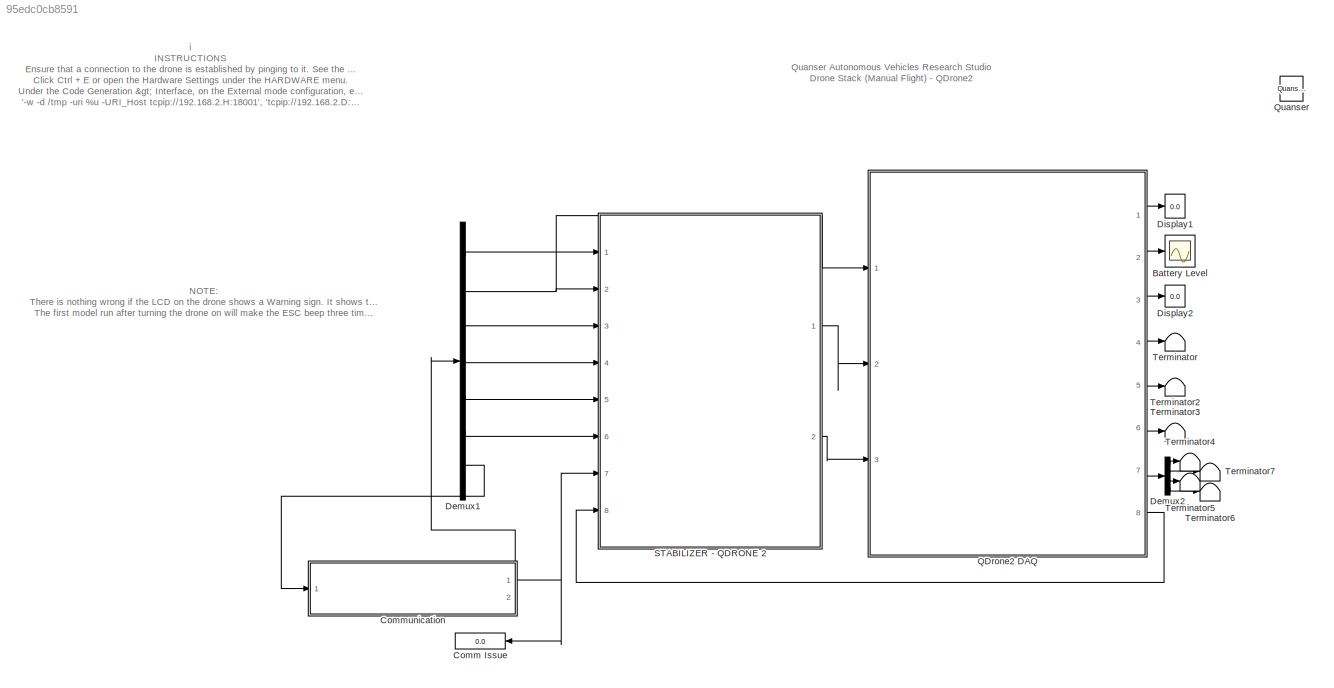
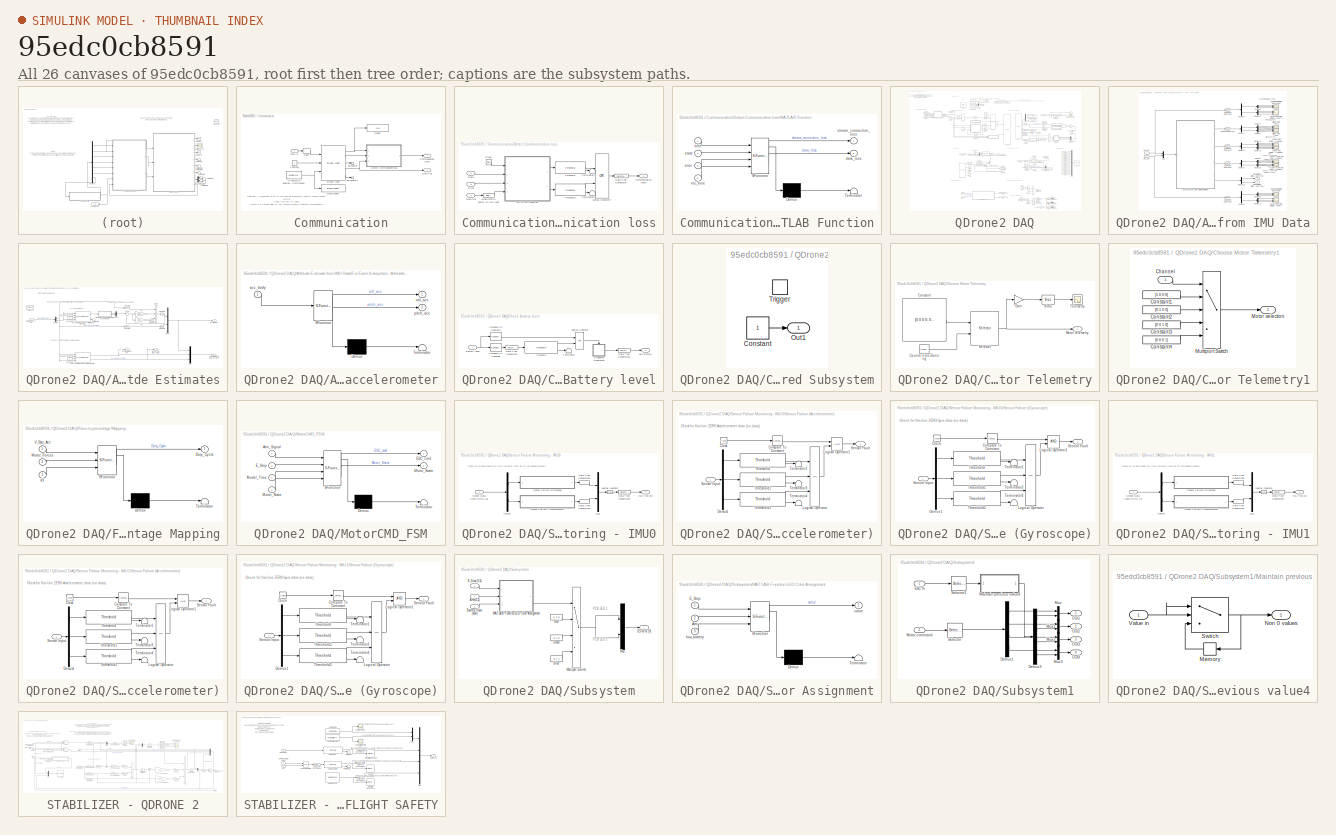
[diagram: thumbnail index - all 26 canvases of the model, root first then tree order]
MODEL slx_95edc0cb8591
KIND model
CONFIG AbsTol = auto
CONFIG EnableMultiTasking = on
CONFIG FixedStep = 1/500
CONFIG InitFcn = Motor_Mapping_7_Inch
CONFIG MaxStep = auto
CONFIG MinStep = auto
CONFIG RelTol = 1e-3
CONFIG SampleTimeConstraint = Unconstrained
CONFIG SolverName = ode2
CONFIG StartTime = 0.0
CONFIG StopTime = inf
WORKSPACE source: mxarray member
WORKSPACE Sig: Simulink.Signal (value not decoded)
WORKSPACE video_step_size = 0.06
BLOCK [Scope] Battery Level 
  Floating = off
  NumInputPorts = 1
  Ports = [1]
  ScopeSpecificationString = Simulink.scopes.TimeScopeBlockCfg('CurrentConfiguration', extmgr.ConfigurationSet(extmgr.Configuration('Core','General UI',true),extmgr.Configuration('Core','Source UI',true),extmgr.Configuration('Sources','WiredSimulink',true,'DataLoggingVariableName','ScopeData1'),extmgr.Configuration('Visuals','Time Domain',true,'SerializedDisplays',{struct('MinYLimReal','8','MaxYLimReal','17','YLabelReal','Vol...<+1406ch>
BLOCK [Display] Comm Issue
  Decimation = 1
  NameLocation = top
  Ports = [1]
BLOCK [SubSystem] Communication
  NameLocation = top
  Ports = [1, 2]
BLOCK [Outport] Communication/Communication Issue
  VectorParamsAs1DForOutWhenUnconnected = off
BLOCK [Constant] Communication/Constant
BLOCK [Inport] Communication/Data In
BLOCK [Outport] Communication/Data Out
  Port = 2
  VectorParamsAs1DForOutWhenUnconnected = off
BLOCK [Delay] Communication/Delay
  DelayLength = 1
  InputPortMap = u0
  Ports = [1, 1]
BLOCK [SubSystem] Communication/Detect Communication loss
  Ports = [3, 1]
BLOCK [Clock] Communication/Detect Communication loss/Clock
  NameLocation = top
BLOCK [Outport] Communication/Detect Communication loss/Communication Issue
  VectorParamsAs1DForOutWhenUnconnected = off
BLOCK [Inport] Communication/Detect Communication loss/Data Out
  NameLocation = top
  Port = 3
BLOCK [DataTypeConversion] Communication/Detect Communication loss/Data Type Conversion
  RndMeth = Floor
  SaturateOnIntegerOverflow = off
BLOCK [Inport] Communication/Detect Communication loss/Error
  NameLocation = top
  Port = 2
BLOCK [Selector] Communication/Detect Communication loss/Grab throttle command to detect flat lines
  IndexOptions = Index vector (dialog)
  Indices = [11]
  InputPortWidth = 11
  OutputSizes = 1
  Ports = [1, 1]
BLOCK [Logic] Communication/Detect Communication loss/Logical Operator4
  AllPortsSameDT = off
  Operator = OR
  OutDataTypeStr = boolean
  Ports = [2, 1]
BLOCK [SubSystem] Communication/Detect Communication loss/MATLAB Function
  ErrorFcn = Stateflow.Translate.translate
  PermitHierarchicalResolution = ExplicitOnly
  Ports = [4, 2]
  SFBlockType = MATLAB Function
  TreatAsAtomicUnit = on
BLOCK [Demux] Communication/Detect Communication loss/MATLAB Function/ Demux 
  Outputs = 1
  Ports = [1, 1]
BLOCK [S-Function] Communication/Detect Communication loss/MATLAB Function/ SFunction 
  EnableBusSupport = off
  FunctionName = sf_sfun
  PortCounts = [4 3]
  Ports = [4, 3]
  SFcnIsStateOwnerBlock = off
  SFunctionDeploymentMode = off
  Tag = Stateflow S-Function 3
BLOCK [Terminator] Communication/Detect Communication loss/MATLAB Function/ Terminator 
BLOCK [Outport] Communication/Detect Communication loss/MATLAB Function/data_loss
  Port = 2
  VectorParamsAs1DForOutWhenUnconnected = off
BLOCK [Inport] Communication/Detect Communication loss/MATLAB Function/error
  Port = 3
BLOCK [Inport] Communication/Detect Communication loss/MATLAB Function/ms_time
  Port = 4
BLOCK [Inport] Communication/Detect Communication loss/MATLAB Function/state
  Port = 2
BLOCK [Outport] Communication/Detect Communication loss/MATLAB Function/stream_connection_loss
  VectorParamsAs1DForOutWhenUnconnected = off
BLOCK [Inport] Communication/Detect Communication loss/MATLAB Function/time
BLOCK [Inport] Communication/Detect Communication loss/State
  NameLocation = top
BLOCK [Terminator] Communication/Detect Communication loss/Terminator2
BLOCK [Terminator] Communication/Detect Communication loss/Terminator3
BLOCK [Reference] Communication/Detect Communication loss/Threshold  REF=quarc_library/Discontinuities/Threshold
  Ports = [1, 2]
  SourceBlock = quarc_library/Discontinuities/Threshold
  SourceProductName = QUARC Targets
  SourceType = Threshold
BLOCK [Reference] Communication/Detect Communication loss/Threshold1  REF=quarc_library/Discontinuities/Threshold
  Ports = [1, 2]
  SourceBlock = quarc_library/Discontinuities/Threshold
  SourceProductName = QUARC Targets
  SourceType = Threshold
BLOCK [Display] Communication/Display
  Decimation = 1
  Ports = [1]
BLOCK [Reference] Communication/IP Address of Supervisory Model (Mission Operator//Commander)  REF=quarc_library/Sources/Signals/Model Argument
  AttributesFormatString = (-%<argument_name>)
  Ports = [0, 1]
  SourceBlock = quarc_library/Sources/Signals/Model Argument
  SourceProductName = QUARC Targets
  SourceType = Model Argument
BLOCK [Reference] Communication/Stream Client  REF=quarc_library/Communications/Basic/Stream Client
  Ports = [3, 5]
  SourceBlock = quarc_library/Communications/Basic/Stream Client
  SourceProductName = QUARC Targets
  SourceType = Stream Client
BLOCK [Reference] Communication/String Display  REF=quarc_library/Strings/String Display
  Ports = [1]
  SourceBlock = quarc_library/Strings/String Display
  SourceProductName = QUARC Targets
  SourceType = String Display
BLOCK [Terminator] Communication/Terminator
BLOCK [Terminator] Communication/Terminator1
BLOCK [Demux] Demux1
  Outputs = [1 1 1 3 3 1 1]
  Ports = [1, 7]
BLOCK [Demux] Demux2
  Ports = [1, 4]
BLOCK [Display] Display1
  Decimation = 100
  Ports = [1]
BLOCK [Display] Display2
  Decimation = 100
  Ports = [1]
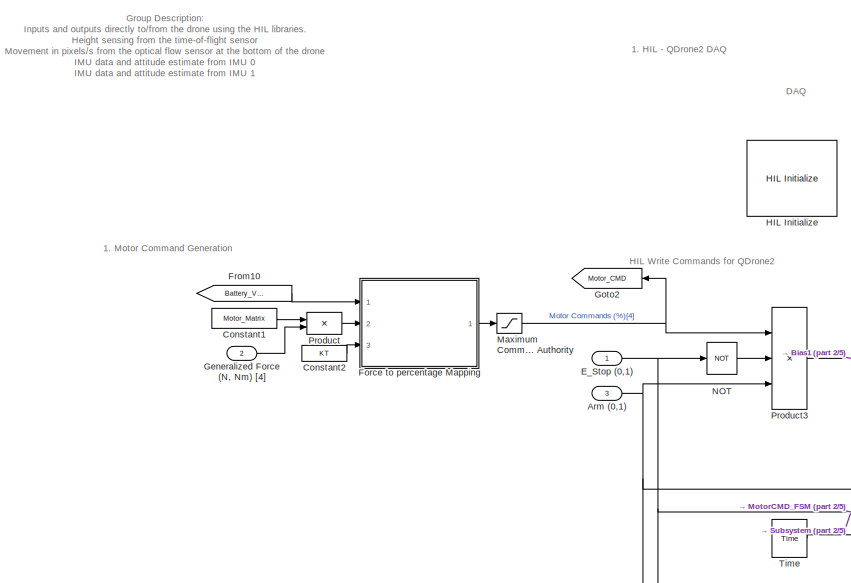
[diagram: QDrone2 DAQ - part 1/5, top left region]
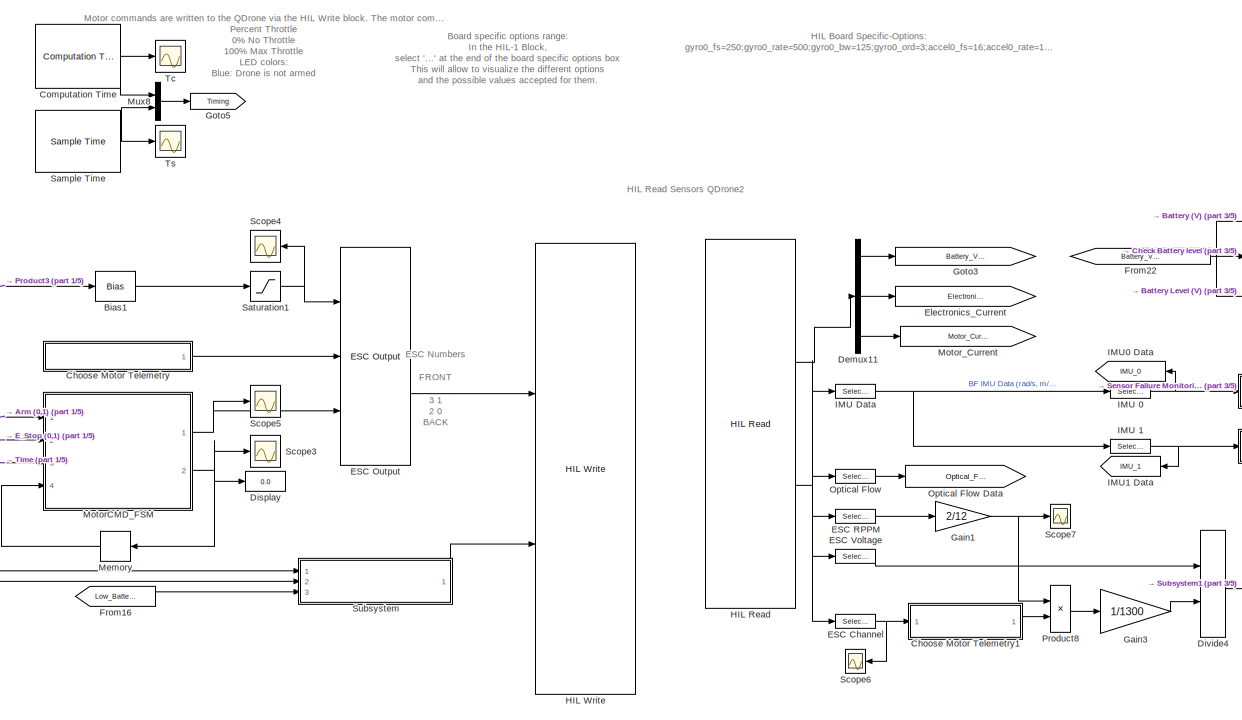
[diagram: QDrone2 DAQ - part 2/5, top center region]
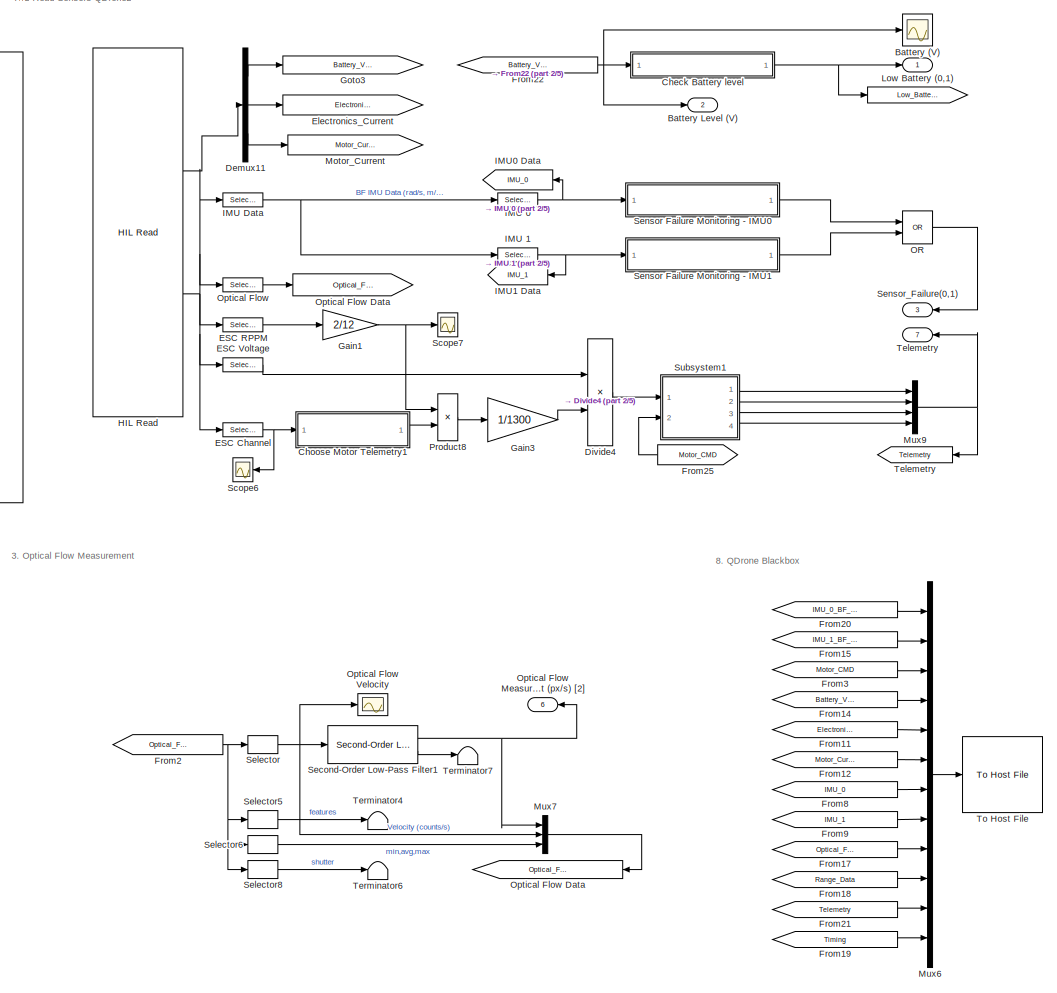
[diagram: QDrone2 DAQ - part 3/5, middle right region]
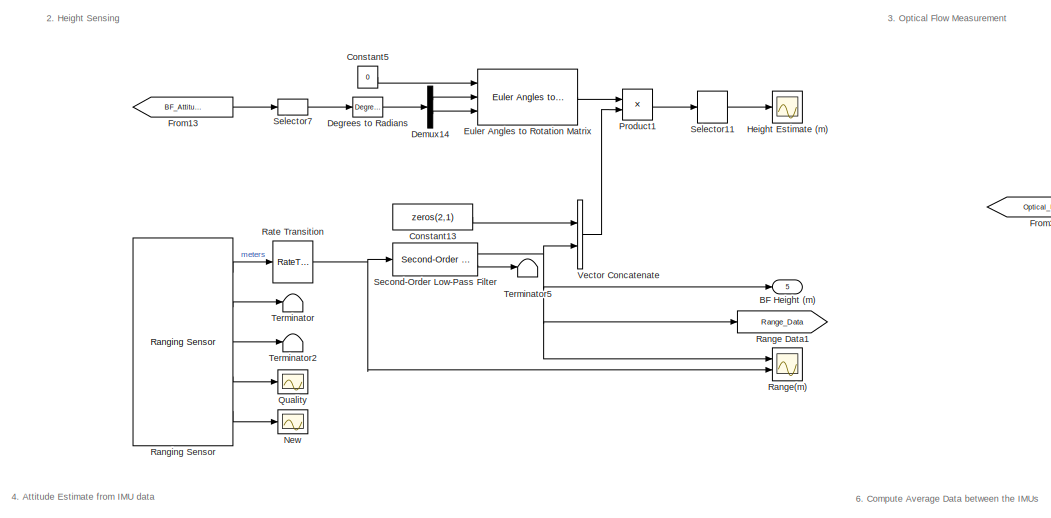
[diagram: QDrone2 DAQ - part 4/5, central region]
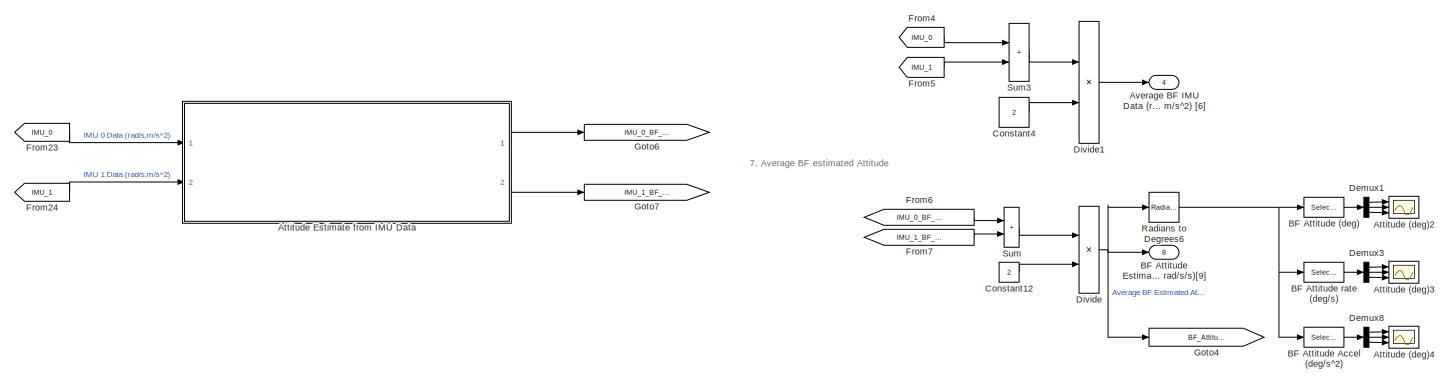
[diagram: QDrone2 DAQ - part 5/5, bottom center region]
BLOCK [SubSystem] QDrone2 DAQ
  Ports = [3, 8]
BLOCK [Goto] QDrone2 DAQ/ 
  GotoTag = Low_Battery
BLOCK [Goto] QDrone2 DAQ/ Telemetry
  GotoTag = Telemetry
BLOCK [Inport] QDrone2 DAQ/Arm (0,1)
  Port = 3
BLOCK [Scope] QDrone2 DAQ/Attitude (deg)2
  Floating = off
  NumInputPorts = 3
  Ports = [3]
  ScopeSpecificationString = Simulink.scopes.TimeScopeBlockCfg('CurrentConfiguration', extmgr.ConfigurationSet(extmgr.Configuration('Core','General UI',true),extmgr.Configuration('Core','Source UI',true),extmgr.Configuration('Sources','WiredSimulink',true,'DataLoggingVariableName','ScopeData7','DataLoggingSaveFormat','Array','DataLoggingDecimation','1','DataLoggingDecimateData',true),extmgr.Configuration('Visuals','Time Domai...<+2843ch>
BLOCK [Scope] QDrone2 DAQ/Attitude (deg)3
  Floating = off
  NumInputPorts = 3
  Ports = [3]
  ScopeSpecificationString = Simulink.scopes.TimeScopeBlockCfg('CurrentConfiguration', extmgr.ConfigurationSet(extmgr.Configuration('Core','General UI',true),extmgr.Configuration('Core','Source UI',true),extmgr.Configuration('Sources','WiredSimulink',true,'DataLoggingVariableName','ScopeData8','DataLoggingSaveFormat','Array','DataLoggingDecimation','1','DataLoggingDecimateData',true),extmgr.Configuration('Visuals','Time Domai...<+2867ch>
BLOCK [Scope] QDrone2 DAQ/Attitude (deg)4
  Floating = off
  NumInputPorts = 3
  Ports = [3]
  ScopeSpecificationString = Simulink.scopes.TimeScopeBlockCfg('CurrentConfiguration', extmgr.ConfigurationSet(extmgr.Configuration('Core','General UI',true),extmgr.Configuration('Core','Source UI',true),extmgr.Configuration('Sources','WiredSimulink',true,'DataLoggingVariableName','ScopeData9','DataLoggingSaveFormat','Array','DataLoggingDecimation','1','DataLoggingDecimateData',true),extmgr.Configuration('Visuals','Time Domai...<+2873ch>
BLOCK [SubSystem] QDrone2 DAQ/Attitude Estimate from IMU Data
  Ports = [2, 2]
BLOCK [Scope] QDrone2 DAQ/Attitude Estimate from IMU Data/Angular Acceleration Estimate - IMU 0 (deg//s//s)
  Floating = off
  NameLocation = right
  NumInputPorts = 3
  Ports = [3]
  ScopeSpecificationString = Simulink.scopes.TimeScopeBlockCfg('CurrentConfiguration', extmgr.ConfigurationSet(extmgr.Configuration('Core','General UI',true),extmgr.Configuration('Core','Source UI',true),extmgr.Configuration('Sources','WiredSimulink',true,'DataLoggingVariableName','ScopeData3','DataLoggingLimitDataPoints',true,'DataLoggingSaveFormat','Array','DataLoggingDecimation','1','DataLoggingDecimateData',true),extmgr.C...<+2837ch>
BLOCK [Scope] QDrone2 DAQ/Attitude Estimate from IMU Data/Angular Acceleration Estimate IMU 1 (deg//s//s)
  Floating = off
  NameLocation = right
  NumInputPorts = 3
  Ports = [3]
  ScopeSpecificationString = Simulink.scopes.TimeScopeBlockCfg('CurrentConfiguration', extmgr.ConfigurationSet(extmgr.Configuration('Core','General UI',true),extmgr.Configuration('Core','Source UI',true),extmgr.Configuration('Sources','WiredSimulink',true,'DataLoggingVariableName','ScopeData4','DataLoggingLimitDataPoints',true,'DataLoggingSaveFormat','Array','DataLoggingDecimation','1','DataLoggingDecimateData',true),extmgr.C...<+2837ch>
BLOCK [Scope] QDrone2 DAQ/Attitude Estimate from IMU Data/Angular Rate Estimate - IMU 0 (deg//s//s)
  Floating = off
  NameLocation = right
  NumInputPorts = 3
  Ports = [3]
  ScopeSpecificationString = Simulink.scopes.TimeScopeBlockCfg('CurrentConfiguration', extmgr.ConfigurationSet(extmgr.Configuration('Core','General UI',true),extmgr.Configuration('Core','Source UI',true),extmgr.Configuration('Sources','WiredSimulink',true,'DataLoggingVariableName','ScopeData9','DataLoggingLimitDataPoints',true,'DataLoggingSaveFormat','Array','DataLoggingDecimation','1','DataLoggingDecimateData',true),extmgr.C...<+2837ch>
BLOCK [Scope] QDrone2 DAQ/Attitude Estimate from IMU Data/Angular Rate Estimate IMU 1 (deg//s//s)
  Floating = off
  NameLocation = right
  NumInputPorts = 3
  Ports = [3]
  ScopeSpecificationString = Simulink.scopes.TimeScopeBlockCfg('CurrentConfiguration', extmgr.ConfigurationSet(extmgr.Configuration('Core','General UI',true),extmgr.Configuration('Core','Source UI',true),extmgr.Configuration('Sources','WiredSimulink',true,'DataLoggingVariableName','ScopeData10','DataLoggingLimitDataPoints',true,'DataLoggingSaveFormat','Array','DataLoggingDecimation','1','DataLoggingDecimateData',true),extmgr....<+2838ch>
BLOCK [Scope] QDrone2 DAQ/Attitude Estimate from IMU Data/Attitude - IMU 0 (deg)
  Floating = off
  NameLocation = right
  NumInputPorts = 3
  Ports = [3]
  ScopeSpecificationString = Simulink.scopes.TimeScopeBlockCfg('CurrentConfiguration', extmgr.ConfigurationSet(extmgr.Configuration('Core','General UI',true),extmgr.Configuration('Core','Source UI',true),extmgr.Configuration('Sources','WiredSimulink',true,'DataLoggingVariableName','ScopeData1','DataLoggingSaveFormat','Array','DataLoggingDecimation','1','DataLoggingDecimateData',true),extmgr.Configuration('Visuals','Time Domai...<+2826ch>
BLOCK [Scope] QDrone2 DAQ/Attitude Estimate from IMU Data/Attitude - IMU 1 (deg)
  Floating = off
  NameLocation = right
  NumInputPorts = 3
  Ports = [3]
  ScopeSpecificationString = Simulink.scopes.TimeScopeBlockCfg('CurrentConfiguration', extmgr.ConfigurationSet(extmgr.Configuration('Core','General UI',true),extmgr.Configuration('Core','Source UI',true),extmgr.Configuration('Sources','WiredSimulink',true,'DataLoggingVariableName','ScopeData2','DataLoggingSaveFormat','Array','DataLoggingDecimation','1','DataLoggingDecimateData',true),extmgr.Configuration('Visuals','Time Domai...<+2824ch>
BLOCK [Outport] QDrone2 DAQ/Attitude Estimate from IMU Data/BF Estimated Attitude from IMU 0 (rad, rad//s, rad//s^2) [9]
  NameLocation = right
BLOCK [Outport] QDrone2 DAQ/Attitude Estimate from IMU Data/BF Estimated Attitude from IMU 1 (rad, rad//s, rad//s^2) [9]
  NameLocation = right
  Port = 2
BLOCK [Demux] QDrone2 DAQ/Attitude Estimate from IMU Data/Demux1
  Outputs = [3, 3]
  Ports = [1, 2]
BLOCK [Demux] QDrone2 DAQ/Attitude Estimate from IMU Data/Demux10
  Outputs = 3
  Ports = [1, 3]
BLOCK [Demux] QDrone2 DAQ/Attitude Estimate from IMU Data/Demux11
  Outputs = 3
  Ports = [1, 3]
BLOCK [Demux] QDrone2 DAQ/Attitude Estimate from IMU Data/Demux12
  Outputs = 3
  Ports = [1, 3]
BLOCK [Demux] QDrone2 DAQ/Attitude Estimate from IMU Data/Demux13
  Outputs = 3
  Ports = [1, 3]
BLOCK [Demux] QDrone2 DAQ/Attitude Estimate from IMU Data/Demux14
  Outputs = 3
  Ports = [1, 3]
BLOCK [Demux] QDrone2 DAQ/Attitude Estimate from IMU Data/Demux15
  Outputs = [9, 9]
  Ports = [1, 2]
BLOCK [Demux] QDrone2 DAQ/Attitude Estimate from IMU Data/Demux16
  Outputs = 3
  Ports = [1, 3]
BLOCK [Demux] QDrone2 DAQ/Attitude Estimate from IMU Data/Demux2
  Outputs = [3, 3]
  Ports = [1, 2]
BLOCK [Demux] QDrone2 DAQ/Attitude Estimate from IMU Data/Demux3
  Outputs = [3, 3]
  Ports = [1, 2]
BLOCK [Demux] QDrone2 DAQ/Attitude Estimate from IMU Data/Demux4
  Outputs = 3
  Ports = [1, 3]
BLOCK [Demux] QDrone2 DAQ/Attitude Estimate from IMU Data/Demux5
  Outputs = 3
  Ports = [1, 3]
BLOCK [Demux] QDrone2 DAQ/Attitude Estimate from IMU Data/Demux6
  Outputs = [3, 3]
  Ports = [1, 2]
BLOCK [Demux] QDrone2 DAQ/Attitude Estimate from IMU Data/Demux7
  Outputs = 3
  Ports = [1, 3]
BLOCK [Demux] QDrone2 DAQ/Attitude Estimate from IMU Data/Demux8
  Outputs = [3, 3]
  Ports = [1, 2]
BLOCK [Demux] QDrone2 DAQ/Attitude Estimate from IMU Data/Demux9
  Outputs = 3
  Ports = [1, 3]
BLOCK [SubSystem] QDrone2 DAQ/Attitude Estimate from IMU Data/For Each Subsystem - Attitutde Estimates
  Ports = [1, 4]
  TreatAsAtomicUnit = on
BLOCK [Outport] QDrone2 DAQ/Attitude Estimate from IMU Data/For Each Subsystem - Attitutde Estimates/BF Att (rad) [3n]
  ConcatenationDimension = 1
  NameLocation = right
BLOCK [Outport] QDrone2 DAQ/Attitude Estimate from IMU Data/For Each Subsystem - Attitutde Estimates/BF Att Accel (rad//s^2) [3n]
  ConcatenationDimension = 1
  NameLocation = right
  Port = 3
BLOCK [Outport] QDrone2 DAQ/Attitude Estimate from IMU Data/For Each Subsystem - Attitutde Estimates/BF Att Rate (rad//s) [3n]
  ConcatenationDimension = 1
  NameLocation = right
  Port = 2
BLOCK [Outport] QDrone2 DAQ/Attitude Estimate from IMU Data/For Each Subsystem - Attitutde Estimates/BF Estimated Att (rad, rad//s, rad//s^2) [9n] 
  ConcatenationDimension = 1
  NameLocation = right
  Port = 4
BLOCK [Constant] QDrone2 DAQ/Attitude Estimate from IMU Data/For Each Subsystem - Attitutde Estimates/Constant
  Value = 120
BLOCK [Constant] QDrone2 DAQ/Attitude Estimate from IMU Data/For Each Subsystem - Attitutde Estimates/Constant10
  Value = 0.7
BLOCK [Constant] QDrone2 DAQ/Attitude Estimate from IMU Data/For Each Subsystem - Attitutde Estimates/Constant3
BLOCK [Constant] QDrone2 DAQ/Attitude Estimate from IMU Data/For Each Subsystem - Attitutde Estimates/Constant9
  Value = 100
BLOCK [Demux] QDrone2 DAQ/Attitude Estimate from IMU Data/For Each Subsystem - Attitutde Estimates/Demux
  Outputs = [3,3]
  Ports = [1, 2]
BLOCK [ForEach] QDrone2 DAQ/Attitude Estimate from IMU Data/For Each Subsystem - Attitutde Estimates/For Each
  DisableCoverage = on
  Ports = []
BLOCK [Inport] QDrone2 DAQ/Attitude Estimate from IMU Data/For Each Subsystem - Attitutde Estimates/IMU (rad//s, m//s^2) [6n]
  NameLocation = left
  Partition = on
  PartitionDimension = 1
  PartitionOffset = 0
  PartitionWidth = 6
BLOCK [Integrator] QDrone2 DAQ/Attitude Estimate from IMU Data/For Each Subsystem - Attitutde Estimates/Integrator2
  Ports = [1, 1]
BLOCK [Integrator] QDrone2 DAQ/Attitude Estimate from IMU Data/For Each Subsystem - Attitutde Estimates/Integrator3
  Ports = [1, 1]
BLOCK [Integrator] QDrone2 DAQ/Attitude Estimate from IMU Data/For Each Subsystem - Attitutde Estimates/Integrator4
  Ports = [1, 1]
BLOCK [Gain] QDrone2 DAQ/Attitude Estimate from IMU Data/For Each Subsystem - Attitutde Estimates/Ki1
  Gain = [0.1 0.1]
BLOCK [Gain] QDrone2 DAQ/Attitude Estimate from IMU Data/For Each Subsystem - Attitutde Estimates/Kp1
  Gain = [0.25 0.25]
  NameLocation = top
BLOCK [Mux] QDrone2 DAQ/Attitude Estimate from IMU Data/For Each Subsystem - Attitutde Estimates/Mux
  DisplayOption = bar
  Inputs = 3
  Ports = [3, 1]
BLOCK [Mux] QDrone2 DAQ/Attitude Estimate from IMU Data/For Each Subsystem - Attitutde Estimates/Mux4
  DisplayOption = bar
  Inputs = 2
  Ports = [2, 1]
BLOCK [Mux] QDrone2 DAQ/Attitude Estimate from IMU Data/For Each Subsystem - Attitutde Estimates/Mux5
  DisplayOption = bar
  Inputs = 2
  Ports = [2, 1]
BLOCK [Reference] QDrone2 DAQ/Attitude Estimate from IMU Data/For Each Subsystem - Attitutde Estimates/Second-Order Low-Pass Filter (Roll and Pitch Rate)  REF=quarc_library/Continuous/Second-Order
Low-Pass Filter
  Ports = [4, 2]
  SourceBlock = quarc_library/Continuous/Second-Order\nLow-Pass Filter
  SourceProductName = QUARC Targets
  SourceType = Second-Order Low-Pass Filter
BLOCK [Reference] QDrone2 DAQ/Attitude Estimate from IMU Data/For Each Subsystem - Attitutde Estimates/Second-Order Low-Pass Filter (Yaw Rate)  REF=quarc_library/Continuous/Second-Order
Low-Pass Filter
  Ports = [4, 2]
  SourceBlock = quarc_library/Continuous/Second-Order\nLow-Pass Filter
  SourceProductName = QUARC Targets
  SourceType = Second-Order Low-Pass Filter
BLOCK [Selector] QDrone2 DAQ/Attitude Estimate from IMU Data/For Each Subsystem - Attitutde Estimates/Selector2
  IndexOptions = Index vector (dialog)
  Indices = [1,2]
  InputPortWidth = 3
  OutputSizes = 1
  Ports = [1, 1]
BLOCK [Selector] QDrone2 DAQ/Attitude Estimate from IMU Data/For Each Subsystem - Attitutde Estimates/Selector3
  IndexOptions = Index vector (dialog)
  Indices = [3]
  InputPortWidth = 3
  OutputSizes = 1
  Ports = [1, 1]
BLOCK [Sum] QDrone2 DAQ/Attitude Estimate from IMU Data/For Each Subsystem - Attitutde Estimates/Sum1
  IconShape = rectangular
  Inputs = +--
  Ports = [3, 1]
BLOCK [Sum] QDrone2 DAQ/Attitude Estimate from IMU Data/For Each Subsystem - Attitutde Estimates/Sum4
  Inputs = |-+
  Ports = [2, 1]
BLOCK [Terminator] QDrone2 DAQ/Attitude Estimate from IMU Data/For Each Subsystem - Attitutde Estimates/Terminator1
BLOCK [SubSystem] QDrone2 DAQ/Attitude Estimate from IMU Data/For Each Subsystem - Attitutde Estimates/roll and pitch approximation from accelerometer
  ErrorFcn = Stateflow.Translate.translate
  PermitHierarchicalResolution = ExplicitOnly
  Ports = [1, 2]
  SFBlockType = MATLAB Function
  TreatAsAtomicUnit = on
BLOCK [Demux] QDrone2 DAQ/Attitude Estimate from IMU Data/For Each Subsystem - Attitutde Estimates/roll and pitch approximation from accelerometer/ Demux 
  Outputs = 1
  Ports = [1, 1]
BLOCK [S-Function] QDrone2 DAQ/Attitude Estimate from IMU Data/For Each Subsystem - Attitutde Estimates/roll and pitch approximation from accelerometer/ SFunction 
  EnableBusSupport = off
  FunctionName = sf_sfun
  PortCounts = [1 3]
  Ports = [1, 3]
  SFcnIsStateOwnerBlock = off
  SFunctionDeploymentMode = off
  Tag = Stateflow S-Function 1
BLOCK [Terminator] QDrone2 DAQ/Attitude Estimate from IMU Data/For Each Subsystem - Attitutde Estimates/roll and pitch approximation from accelerometer/ Terminator 
BLOCK [Inport] QDrone2 DAQ/Attitude Estimate from IMU Data/For Each Subsystem - Attitutde Estimates/roll and pitch approximation from accelerometer/acc_body
BLOCK [Outport] QDrone2 DAQ/Attitude Estimate from IMU Data/For Each Subsystem - Attitutde Estimates/roll and pitch approximation from accelerometer/pitch_acc
  Port = 2
  VectorParamsAs1DForOutWhenUnconnected = off
BLOCK [Outport] QDrone2 DAQ/Attitude Estimate from IMU Data/For Each Subsystem - Attitutde Estimates/roll and pitch approximation from accelerometer/roll_acc
  VectorParamsAs1DForOutWhenUnconnected = off
BLOCK [Inport] QDrone2 DAQ/Attitude Estimate from IMU Data/IMU_0 [6]
  NameLocation = left
BLOCK [Inport] QDrone2 DAQ/Attitude Estimate from IMU Data/IMU_1 [6]
  NameLocation = left
  Port = 2
BLOCK [Mux] QDrone2 DAQ/Attitude Estimate from IMU Data/Mux
  DisplayOption = bar
  Inputs = 2
  Ports = [2, 1]
BLOCK [Reference] QDrone2 DAQ/Attitude Estimate from IMU Data/Radians to Degrees  REF=simulink_extras/Transformations/Radians
to Degrees
  Ports = [1, 1]
  SourceBlock = simulink_extras/Transformations/Radians\nto Degrees
  SourceType = RadiansToDegrees
BLOCK [Reference] QDrone2 DAQ/Attitude Estimate from IMU Data/Radians to Degrees1  REF=simulink_extras/Transformations/Radians
to Degrees
  Ports = [1, 1]
  SourceBlock = simulink_extras/Transformations/Radians\nto Degrees
  SourceType = RadiansToDegrees
BLOCK [Reference] QDrone2 DAQ/Attitude Estimate from IMU Data/Radians to Degrees2  REF=simulink_extras/Transformations/Radians
to Degrees
  Ports = [1, 1]
  SourceBlock = simulink_extras/Transformations/Radians\nto Degrees
  SourceType = RadiansToDegrees
BLOCK [Reference] QDrone2 DAQ/Attitude Estimate from IMU Data/Radians to Degrees3  REF=simulink_extras/Transformations/Radians
to Degrees
  Ports = [1, 1]
  SourceBlock = simulink_extras/Transformations/Radians\nto Degrees
  SourceType = RadiansToDegrees
BLOCK [Reference] QDrone2 DAQ/Attitude Estimate from IMU Data/Radians to Degrees4  REF=simulink_extras/Transformations/Radians
to Degrees
  Ports = [1, 1]
  SourceBlock = simulink_extras/Transformations/Radians\nto Degrees
  SourceType = RadiansToDegrees
BLOCK [Scope] QDrone2 DAQ/Attitude Estimate from IMU Data/Raw Acceleration Estimate - IMU 0 (m//s^2)
  Floating = off
  NameLocation = right
  NumInputPorts = 3
  Ports = [3]
  ScopeSpecificationString = Simulink.scopes.TimeScopeBlockCfg('CurrentConfiguration', extmgr.ConfigurationSet(extmgr.Configuration('Core','General UI',true),extmgr.Configuration('Core','Source UI',true),extmgr.Configuration('Sources','WiredSimulink',true,'DataLoggingVariableName','ScopeData5','DataLoggingSaveFormat','Array','DataLoggingDecimation','1'),extmgr.Configuration('Visuals','Time Domain',true,'SerializedDisplays',{s...<+2736ch>
BLOCK [Scope] QDrone2 DAQ/Attitude Estimate from IMU Data/Raw Acceleration Estimate - IMU 1 (m//s^2)
  Floating = off
  NameLocation = right
  NumInputPorts = 3
  Ports = [3]
  ScopeSpecificationString = Simulink.scopes.TimeScopeBlockCfg('CurrentConfiguration', extmgr.ConfigurationSet(extmgr.Configuration('Core','General UI',true),extmgr.Configuration('Core','Source UI',true),extmgr.Configuration('Sources','WiredSimulink',true,'DataLoggingVariableName','ScopeData6','DataLoggingSaveFormat','Array','DataLoggingDecimation','1'),extmgr.Configuration('Visuals','Time Domain',true,'SerializedDisplays',{s...<+2763ch>
BLOCK [Scope] QDrone2 DAQ/Attitude Estimate from IMU Data/Raw Rate Estimate - IMU 0  (deg//s)
  Floating = off
  NameLocation = right
  NumInputPorts = 3
  Ports = [3]
  ScopeSpecificationString = Simulink.scopes.TimeScopeBlockCfg('CurrentConfiguration', extmgr.ConfigurationSet(extmgr.Configuration('Core','General UI',true),extmgr.Configuration('Core','Source UI',true),extmgr.Configuration('Sources','WiredSimulink',true,'DataLoggingVariableName','ScopeData7','DataLoggingLimitDataPoints',true,'DataLoggingSaveFormat','Array','DataLoggingDecimation','1','DataLoggingDecimateData',true),extmgr.C...<+2793ch>
BLOCK [Scope] QDrone2 DAQ/Attitude Estimate from IMU Data/Raw Rate Estimate - IMU 1 (deg//s)
  Floating = off
  NameLocation = right
  NumInputPorts = 3
  Ports = [3]
  ScopeSpecificationString = Simulink.scopes.TimeScopeBlockCfg('CurrentConfiguration', extmgr.ConfigurationSet(extmgr.Configuration('Core','General UI',true),extmgr.Configuration('Core','Source UI',true),extmgr.Configuration('Sources','WiredSimulink',true,'DataLoggingVariableName','ScopeData8','DataLoggingLimitDataPoints',true,'DataLoggingSaveFormat','Array','DataLoggingDecimation','1','DataLoggingDecimateData',true),extmgr.C...<+2805ch>
BLOCK [Outport] QDrone2 DAQ/Average BF IMU Data (rad//s, m//s^2) [6]
  NameLocation = right
  Port = 4
BLOCK [Selector] QDrone2 DAQ/BF Attitude (deg)
  IndexOptions = Index vector (dialog)
  Indices = [1:3]
  InputPortWidth = 9
  OutputSizes = 1
  Ports = [1, 1]
BLOCK [Selector] QDrone2 DAQ/BF Attitude Accel (deg//s^2)
  IndexOptions = Index vector (dialog)
  Indices = [7:9]
  InputPortWidth = 9
  OutputSizes = 1
  Ports = [1, 1]
BLOCK [Outport] QDrone2 DAQ/BF Attitude Estimate (rad, rad//s, rad//s//s)[9]
  NameLocation = right
  Port = 8
BLOCK [Selector] QDrone2 DAQ/BF Attitude rate (deg//s)
  IndexOptions = Index vector (dialog)
  Indices = [4:6]
  InputPortWidth = 9
  OutputSizes = 1
  Ports = [1, 1]
BLOCK [Outport] QDrone2 DAQ/BF Height (m) 
  NameLocation = right
  Port = 5
BLOCK [Scope] QDrone2 DAQ/Battery (V)
  Floating = off
  NameLocation = right
  NumInputPorts = 1
  Ports = [1]
  ScopeSpecificationString = Simulink.scopes.TimeScopeBlockCfg('CurrentConfiguration', extmgr.ConfigurationSet(extmgr.Configuration('Core','General UI',true),extmgr.Configuration('Core','Source UI',true),extmgr.Configuration('Sources','WiredSimulink',true,'DataLoggingVariableName','ScopeData8'),extmgr.Configuration('Visuals','Time Domain',true,'SerializedDisplays',{struct('MinYLimReal','13.04642','MaxYLimReal','18.70722','YLa...<+1438ch>
BLOCK [Outport] QDrone2 DAQ/Battery Level (V)
  NameLocation = right
  Port = 2
BLOCK [Bias] QDrone2 DAQ/Bias1
  Bias = 0.02
  SaturateOnIntegerOverflow = off
BLOCK [SubSystem] QDrone2 DAQ/Check Battery level
  Ports = [1, 1]
BLOCK [Inport] QDrone2 DAQ/Check Battery level/Battery level
BLOCK [Reference] QDrone2 DAQ/Check Battery level/Compare To Constant  REF=simulink/Logic and Bit
Operations/Compare
To Constant
  Ports = [1, 1]
  SourceBlock = simulink/Logic and Bit\nOperations/Compare\nTo Constant
  SourceType = Compare To Constant
BLOCK [Reference] QDrone2 DAQ/Check Battery level/Compare To Constant1  REF=simulink/Logic and Bit
Operations/Compare
To Constant
  Ports = [1, 1]
  SourceBlock = simulink/Logic and Bit\nOperations/Compare\nTo Constant
  SourceType = Compare To Constant
BLOCK [DataTypeConversion] QDrone2 DAQ/Check Battery level/Data Type Conversion
  RndMeth = Floor
  SaturateOnIntegerOverflow = off
BLOCK [DataTypeConversion] QDrone2 DAQ/Check Battery level/Data Type Conversion1
  RndMeth = Floor
  SaturateOnIntegerOverflow = off
BLOCK [Logic] QDrone2 DAQ/Check Battery level/Logical Operator
  AllPortsSameDT = off
  OutDataTypeStr = boolean
  Ports = [2, 1]
BLOCK [Outport] QDrone2 DAQ/Check Battery level/Low Battery
  VectorParamsAs1DForOutWhenUnconnected = off
BLOCK [Terminator] QDrone2 DAQ/Check Battery level/Terminator
BLOCK [Reference] QDrone2 DAQ/Check Battery level/Threshold  REF=quarc_library/Discontinuities/Threshold
  Ports = [1, 2]
  SourceBlock = quarc_library/Discontinuities/Threshold
  SourceProductName = QUARC Targets
  SourceType = Threshold
BLOCK [SubSystem] QDrone2 DAQ/Check Battery level/Triggered Subsystem
  Ports = [0, 1, 0, 1]
  TreatAsAtomicUnit = on
BLOCK [Constant] QDrone2 DAQ/Check Battery level/Triggered Subsystem/Constant
BLOCK [Outport] QDrone2 DAQ/Check Battery level/Triggered Subsystem/Out1
  InitialOutput = [0]
BLOCK [TriggerPort] QDrone2 DAQ/Check Battery level/Triggered Subsystem/Trigger
  Ports = []
  StatesWhenEnabling = held
  VariantControl = (inherit)
BLOCK [SubSystem] QDrone2 DAQ/Choose Motor Telemetry
  Ports = [0, 1]
BLOCK [Bias] QDrone2 DAQ/Choose Motor Telemetry/Bias1
  Bias = 0:3
  SaturateOnIntegerOverflow = off
BLOCK [Constant] QDrone2 DAQ/Choose Motor Telemetry/Constant
  Value = [0 0 0 0; 0 0 0 1; 0 0 0 0; 0 0 1 0; 0 0 0 0; 0 1 0 0; 0 0 0 0; 1 0 0 0]
BLOCK [Reference] QDrone2 DAQ/Choose Motor Telemetry/Counter Free-Running  REF=simulink/Sources/Counter
Free-Running
  Ports = [0, 1]
  SourceBlock = simulink/Sources/Counter\nFree-Running
  SourceType = Counter Free-Running
BLOCK [Gain] QDrone2 DAQ/Choose Motor Telemetry/Gain
  Gain = .7
BLOCK [Outport] QDrone2 DAQ/Choose Motor Telemetry/Motor telemetry
BLOCK [Selector] QDrone2 DAQ/Choose Motor Telemetry/Selector
  IndexMode = Zero-based
  IndexOptions = Index vector (port),Select all
  Indices = [1 3],1
  InputPortWidth = 3
  NumberOfDimensions = 2
  OutputSizes = 1,1
  Ports = [2, 1]
BLOCK [Scope] QDrone2 DAQ/Choose Motor Telemetry/Telemetry
  Floating = off
  NumInputPorts = 1
  Ports = [1]
  ScopeSpecificationString = Simulink.scopes.TimeScopeBlockCfg('CurrentConfiguration', extmgr.ConfigurationSet(extmgr.Configuration('Core','General UI',true),extmgr.Configuration('Core','Source UI',true),extmgr.Configuration('Sources','WiredSimulink',true,'DataLoggingVariableName','ScopeData2'),extmgr.Configuration('Visuals','Time Domain',true,'SerializedDisplays',{struct('MinYLimReal','-0.4625','MaxYLimReal','4.1625','YLabel...<+1629ch>
BLOCK [SubSystem] QDrone2 DAQ/Choose Motor Telemetry1
  Ports = [1, 1]
BLOCK [Inport] QDrone2 DAQ/Choose Motor Telemetry1/Channel
BLOCK [Constant] QDrone2 DAQ/Choose Motor Telemetry1/Constant1
  Value = [1 0 0 0]
BLOCK [Constant] QDrone2 DAQ/Choose Motor Telemetry1/Constant2
  Value = [0 1 0 0]
BLOCK [Constant] QDrone2 DAQ/Choose Motor Telemetry1/Constant3
  Value = [0 0 1 0]
BLOCK [Constant] QDrone2 DAQ/Choose Motor Telemetry1/Constant4
  Value = [0 0 0 1]
BLOCK [Outport] QDrone2 DAQ/Choose Motor Telemetry1/Motor selection
BLOCK [MultiPortSwitch] QDrone2 DAQ/Choose Motor Telemetry1/Multiport Switch
  DataPortOrder = Zero-based contiguous
  InputSameDT = off
  Inputs = 4
  Ports = [5, 1]
  SaturateOnIntegerOverflow = off
  zeroidx = on
BLOCK [Reference] QDrone2 DAQ/Computation Time  REF=quarc_library/Sources/Time/Computation Time
  Ports = [0, 1]
  SourceBlock = quarc_library/Sources/Time/Computation Time
  SourceProductName = QUARC Targets
  SourceType = Computation Time
BLOCK [Constant] QDrone2 DAQ/Constant1
  OutDataTypeStr = double
  Value = Motor_Matrix
BLOCK [Constant] QDrone2 DAQ/Constant12
  Value = 2
BLOCK [Constant] QDrone2 DAQ/Constant13
  Value = zeros(2,1)
BLOCK [Constant] QDrone2 DAQ/Constant2
  OutDataTypeStr = double
  Value = KT
BLOCK [Constant] QDrone2 DAQ/Constant4
  Value = 2
BLOCK [Constant] QDrone2 DAQ/Constant5
  Value = 0
BLOCK [Reference] QDrone2 DAQ/Degrees to Radians  REF=simulink_extras/Transformations/Degrees to
Radians
  Ports = [1, 1]
  SourceBlock = simulink_extras/Transformations/Degrees to\nRadians
  SourceType = DegreesToRadians
BLOCK [Demux] QDrone2 DAQ/Demux1
  Outputs = 3
  Ports = [1, 3]
BLOCK [Demux] QDrone2 DAQ/Demux11
  Outputs = 3
  Ports = [1, 3]
BLOCK [Demux] QDrone2 DAQ/Demux14
  Outputs = 2
  Ports = [1, 2]
BLOCK [Demux] QDrone2 DAQ/Demux3
  Outputs = 3
  Ports = [1, 3]
BLOCK [Demux] QDrone2 DAQ/Demux8
  Outputs = 3
  Ports = [1, 3]
BLOCK [Display] QDrone2 DAQ/Display
  Decimation = 1
  Ports = [1]
BLOCK [Product] QDrone2 DAQ/Divide
  Inputs = */
  Ports = [2, 1]
BLOCK [Product] QDrone2 DAQ/Divide1
  Inputs = */
  Ports = [2, 1]
BLOCK [Product] QDrone2 DAQ/Divide4
  Inputs = /*
  Ports = [2, 1]
BLOCK [Selector] QDrone2 DAQ/ESC Channel
  IndexOptions = Index vector (dialog)
  Indices = [22]
  InputPortWidth = 22
  OutputSizes = 1
  Ports = [1, 1]
BLOCK [Reference] QDrone2 DAQ/ESC Output  REF=quarc_library/Data Acquisition/Generic/Transformations/ESC Output
  AttributesFormatString = %<protocol>
  Ports = [3, 1]
  SourceBlock = quarc_library/Data Acquisition/Generic/Transformations/ESC Output
  SourceProductName = QUARC Targets
  SourceType = ESC Output
  UserDataPersistent = on
BLOCK [Selector] QDrone2 DAQ/ESC RPPM
  IndexOptions = Index vector (dialog)
  Indices = [20]
  InputPortWidth = 22
  OutputSizes = 1
  Ports = [1, 1]
BLOCK [Selector] QDrone2 DAQ/ESC Voltage
  IndexOptions = Index vector (dialog)
  Indices = [21]
  InputPortWidth = 22
  OutputSizes = 1
  Ports = [1, 1]
BLOCK [Inport] QDrone2 DAQ/E_Stop (0,1)
BLOCK [Goto] QDrone2 DAQ/Electronics_Current
  GotoTag = Electronics_Current
BLOCK [Reference] QDrone2 DAQ/Euler Angles to Rotation Matrix  REF=quarc_library/Math Operations/Matrices/Euler Angles to
Rotation Matrix
  Ports = [3, 1]
  SourceBlock = quarc_library/Math Operations/Matrices/Euler Angles to\nRotation Matrix
  SourceProductName = QUARC Targets
  SourceType = Euler Angles to Rotation Matrix
BLOCK [SubSystem] QDrone2 DAQ/Force to percentage Mapping
  ErrorFcn = Stateflow.Translate.translate
  PermitHierarchicalResolution = ExplicitOnly
  Ports = [3, 1]
  SFBlockType = MATLAB Function
  TreatAsAtomicUnit = on
BLOCK [Demux] QDrone2 DAQ/Force to percentage Mapping/ Demux 
  Outputs = 1
  Ports = [1, 1]
BLOCK [S-Function] QDrone2 DAQ/Force to percentage Mapping/ SFunction 
  EnableBusSupport = off
  FunctionName = sf_sfun
  PortCounts = [3 2]
  Ports = [3, 2]
  SFcnIsStateOwnerBlock = off
  SFunctionDeploymentMode = off
  Tag = Stateflow S-Function 17
BLOCK [Terminator] QDrone2 DAQ/Force to percentage Mapping/ Terminator 
BLOCK [Outport] QDrone2 DAQ/Force to percentage Mapping/Duty_Cycle
BLOCK [Inport] QDrone2 DAQ/Force to percentage Mapping/KT
  Port = 3
BLOCK [Inport] QDrone2 DAQ/Force to percentage Mapping/Motor_Forces
  Port = 2
BLOCK [Inport] QDrone2 DAQ/Force to percentage Mapping/V_Bat_Act
BLOCK [From] QDrone2 DAQ/From10
  GotoTag = Battery_Voltage
BLOCK [From] QDrone2 DAQ/From11
  GotoTag = Electronics_Current
BLOCK [From] QDrone2 DAQ/From12
  GotoTag = Motor_Current
BLOCK [From] QDrone2 DAQ/From13
  GotoTag = BF_Attitude_Est
BLOCK [From] QDrone2 DAQ/From14
  GotoTag = Battery_Voltage
BLOCK [From] QDrone2 DAQ/From15
  GotoTag = IMU_1_BF_Est_Att
BLOCK [From] QDrone2 DAQ/From16
  GotoTag = Low_Battery
BLOCK [From] QDrone2 DAQ/From17
  GotoTag = Optical_Flow_X_Y_Est
BLOCK [From] QDrone2 DAQ/From18
  GotoTag = Range_Data
BLOCK [From] QDrone2 DAQ/From19
  GotoTag = Timing
BLOCK [From] QDrone2 DAQ/From2
  GotoTag = Optical_Flow_Data
BLOCK [From] QDrone2 DAQ/From20
  GotoTag = IMU_0_BF_Est_Att
BLOCK [From] QDrone2 DAQ/From21
  GotoTag = Telemetry
BLOCK [From] QDrone2 DAQ/From22
  GotoTag = Battery_Voltage
BLOCK [From] QDrone2 DAQ/From23
  GotoTag = IMU_0
BLOCK [From] QDrone2 DAQ/From24
  GotoTag = IMU_1
BLOCK [From] QDrone2 DAQ/From25
  GotoTag = Motor_CMD
BLOCK [From] QDrone2 DAQ/From3
  GotoTag = Motor_CMD
BLOCK [From] QDrone2 DAQ/From4
  GotoTag = IMU_0
BLOCK [From] QDrone2 DAQ/From5
  GotoTag = IMU_1
BLOCK [From] QDrone2 DAQ/From6
  GotoTag = IMU_0_BF_Est_Att
BLOCK [From] QDrone2 DAQ/From7
  GotoTag = IMU_1_BF_Est_Att
BLOCK [From] QDrone2 DAQ/From8
  GotoTag = IMU_0
BLOCK [From] QDrone2 DAQ/From9
  GotoTag = IMU_1
BLOCK [Gain] QDrone2 DAQ/Gain1
  Gain = 2/12
BLOCK [Gain] QDrone2 DAQ/Gain3
  Gain = 1/1300
BLOCK [Inport] QDrone2 DAQ/Generalized Force (N, Nm) [4]
  Port = 2
BLOCK [Goto] QDrone2 DAQ/Goto2
  GotoTag = Motor_CMD
  NameLocation = top
BLOCK [Goto] QDrone2 DAQ/Goto3
  GotoTag = Battery_Voltage
BLOCK [Goto] QDrone2 DAQ/Goto4
  GotoTag = BF_Attitude_Est
BLOCK [Goto] QDrone2 DAQ/Goto5
  GotoTag = Timing
BLOCK [Goto] QDrone2 DAQ/Goto6
  GotoTag = IMU_0_BF_Est_Att
BLOCK [Goto] QDrone2 DAQ/Goto7
  GotoTag = IMU_1_BF_Est_Att
BLOCK [Reference] QDrone2 DAQ/HIL Initialize  REF=quarc_library/Data Acquisition/Generic/Configuration/HIL Initialize
  AttributesFormatString = %<object_name> (%<board_type>-%<board_number>)
  Ports = []
  SourceBlock = quarc_library/Data Acquisition/Generic/Configuration/HIL Initialize
  SourceProductName = QUARC Targets
  SourceType = HIL Initialize
  UserDataPersistent = on
BLOCK [Reference] QDrone2 DAQ/HIL Read  REF=quarc_library/Data Acquisition/Generic/Immediate I//O/HIL Read
  AttributesFormatString = (%<object_name>)
  Ports = [0, 2]
  SourceBlock = quarc_library/Data Acquisition/Generic/Immediate I//O/HIL Read
  SourceProductName = QUARC Targets
  SourceType = HIL Read
  UserDataPersistent = on
BLOCK [Reference] QDrone2 DAQ/HIL Write  REF=quarc_library/Data Acquisition/Generic/Immediate I//O/HIL Write
  AttributesFormatString = (%<object_name>)
  Ports = [2]
  SourceBlock = quarc_library/Data Acquisition/Generic/Immediate I//O/HIL Write
  SourceProductName = QUARC Targets
  SourceType = HIL Write
  UserDataPersistent = on
BLOCK [Scope] QDrone2 DAQ/Height Estimate (m)
  Floating = off
  NumInputPorts = 1
  Ports = [1]
  ScopeSpecificationString = Simulink.scopes.TimeScopeBlockCfg('CurrentConfiguration', extmgr.ConfigurationSet(extmgr.Configuration('Core','General UI',true),extmgr.Configuration('Core','Source UI',true),extmgr.Configuration('Sources','WiredSimulink',true,'DataLoggingVariableName','ScopeData10'),extmgr.Configuration('Visuals','Time Domain',true,'SerializedDisplays',{struct('MinYLimReal','-0.22545','MaxYLimReal','2.40133','YLa...<+1439ch>
BLOCK [Selector] QDrone2 DAQ/IMU 0
  IndexOptions = Index vector (dialog)
  Indices = [1:6]
  InputPortWidth = 12
  OutputSizes = 1
  Ports = [1, 1]
BLOCK [Selector] QDrone2 DAQ/IMU 1
  IndexOptions = Index vector (dialog)
  Indices = [7:12]
  InputPortWidth = 12
  NameLocation = top
  OutputSizes = 1
  Ports = [1, 1]
BLOCK [Selector] QDrone2 DAQ/IMU Data
  IndexOptions = Index vector (dialog)
  Indices = [1:12]
  InputPortWidth = 22
  OutputSizes = 1
  Ports = [1, 1]
BLOCK [Goto] QDrone2 DAQ/IMU0 Data
  GotoTag = IMU_0
  NameLocation = top
BLOCK [Goto] QDrone2 DAQ/IMU1 Data
  GotoTag = IMU_1
BLOCK [Outport] QDrone2 DAQ/Low Battery (0,1)
  NameLocation = right
BLOCK [Saturate] QDrone2 DAQ/Maximum Command Authority 
  LowerLimit = [0 0 0 0]
  UpperLimit = [1 1 1 1]
BLOCK [Memory] QDrone2 DAQ/Memory
  NameLocation = top
BLOCK [SubSystem] QDrone2 DAQ/MotorCMD_FSM
  ErrorFcn = Stateflow.Translate.translate
  PermitHierarchicalResolution = ExplicitOnly
  Ports = [4, 2]
  SFBlockType = MATLAB Function
  TreatAsAtomicUnit = on
BLOCK [Demux] QDrone2 DAQ/MotorCMD_FSM/ Demux 
  Outputs = 1
  Ports = [1, 1]
BLOCK [S-Function] QDrone2 DAQ/MotorCMD_FSM/ SFunction 
  EnableBusSupport = off
  FunctionName = sf_sfun
  PortCounts = [4 3]
  Ports = [4, 3]
  SFcnIsStateOwnerBlock = off
  SFunctionDeploymentMode = off
  Tag = Stateflow S-Function 4
BLOCK [Terminator] QDrone2 DAQ/MotorCMD_FSM/ Terminator 
BLOCK [Inport] QDrone2 DAQ/MotorCMD_FSM/Arm_Signal
BLOCK [Outport] QDrone2 DAQ/MotorCMD_FSM/ESC_cmd
BLOCK [Inport] QDrone2 DAQ/MotorCMD_FSM/E_Stop
  Port = 2
BLOCK [Inport] QDrone2 DAQ/MotorCMD_FSM/Model_Time
  Port = 3
BLOCK [Outport] QDrone2 DAQ/MotorCMD_FSM/Motor_State
  Port = 2
BLOCK [Inport] QDrone2 DAQ/MotorCMD_FSM/Motor_State 
  Port = 4
BLOCK [Goto] QDrone2 DAQ/Motor_Current
  GotoTag = Motor_Current
BLOCK [Mux] QDrone2 DAQ/Mux6
  DisplayOption = bar
  Inputs = 12
  Ports = [12, 1]
BLOCK [Mux] QDrone2 DAQ/Mux7
  DisplayOption = bar
  Inputs = 3
  Ports = [3, 1]
BLOCK [Mux] QDrone2 DAQ/Mux8
  DisplayOption = bar
  Inputs = 2
  Ports = [2, 1]
BLOCK [Mux] QDrone2 DAQ/Mux9
  DisplayOption = bar
  Ports = [4, 1]
BLOCK [Logic] QDrone2 DAQ/NOT
  AllPortsSameDT = off
  IconShape = distinctive
  Operator = NOT
  OutDataTypeStr = boolean
  Ports = [1, 1]
BLOCK [Scope] QDrone2 DAQ/New
  Floating = off
  NameLocation = right
  NumInputPorts = 1
  Ports = [1]
  ScopeSpecificationString = Simulink.scopes.TimeScopeBlockCfg('CurrentConfiguration', extmgr.ConfigurationSet(extmgr.Configuration('Core','General UI',true),extmgr.Configuration('Core','Source UI',true),extmgr.Configuration('Sources','WiredSimulink',true,'DataLoggingVariableName','ScopeData11'),extmgr.Configuration('Visuals','Time Domain',true,'SerializedDisplays',{struct('MinYLimReal','-0.125','MaxYLimReal','1.125','YLabelR...<+1393ch>
BLOCK [Logic] QDrone2 DAQ/OR
  AllPortsSameDT = off
  Operator = OR
  OutDataTypeStr = boolean
  Ports = [2, 1]
BLOCK [Selector] QDrone2 DAQ/Optical Flow
  IndexOptions = Index vector (dialog)
  Indices = [13:19]
  InputPortWidth = 22
  OutputSizes = 1
  Ports = [1, 1]
BLOCK [Goto] QDrone2 DAQ/Optical Flow Data
  GotoTag = Optical_Flow_X_Y_Est
BLOCK [Goto] QDrone2 DAQ/Optical Flow Data 
  GotoTag = Optical_Flow_Data
  NameLocation = top
BLOCK [Outport] QDrone2 DAQ/Optical Flow Measurement (px//s) [2]
  NameLocation = top
  Port = 6
BLOCK [Scope] QDrone2 DAQ/Optical Flow Velocity
  Floating = off
  NameLocation = top
  NumInputPorts = 1
  Ports = [1]
  ScopeSpecificationString = Simulink.scopes.TimeScopeBlockCfg('CurrentConfiguration', extmgr.ConfigurationSet(extmgr.Configuration('Core','General UI',true),extmgr.Configuration('Core','Source UI',true),extmgr.Configuration('Sources','WiredSimulink',true,'DataLoggingVariableName','ScopeData12'),extmgr.Configuration('Visuals','Time Domain',true,'SerializedDisplays',{struct('MinYLimReal','-438.50806','MaxYLimReal','317.54032',...<+1501ch>
BLOCK [Product] QDrone2 DAQ/Product
  Multiplication = Matrix(*)
  Ports = [2, 1]
BLOCK [Product] QDrone2 DAQ/Product1
  Multiplication = Matrix(*)
  Ports = [2, 1]
BLOCK [Product] QDrone2 DAQ/Product3
  Inputs = 3
  Ports = [3, 1]
BLOCK [Product] QDrone2 DAQ/Product8
  Ports = [2, 1]
BLOCK [Scope] QDrone2 DAQ/Quality
  Floating = off
  NameLocation = right
  NumInputPorts = 1
  Ports = [1]
  ScopeSpecificationString = Simulink.scopes.TimeScopeBlockCfg('CurrentConfiguration', extmgr.ConfigurationSet(extmgr.Configuration('Core','General UI',true),extmgr.Configuration('Core','Source UI',true),extmgr.Configuration('Sources','WiredSimulink',true,'DataLoggingVariableName','ScopeData13'),extmgr.Configuration('Visuals','Time Domain',true,'SerializedDisplays',{struct('MinYLimReal','0','MaxYLimReal','1','YLabelReal','','...<+1366ch>
BLOCK [Reference] QDrone2 DAQ/Radians to Degrees6  REF=simulink_extras/Transformations/Radians
to Degrees
  Ports = [1, 1]
  SourceBlock = simulink_extras/Transformations/Radians\nto Degrees
  SourceType = RadiansToDegrees
BLOCK [Goto] QDrone2 DAQ/Range Data1
  GotoTag = Range_Data
  NameLocation = right
BLOCK [Scope] QDrone2 DAQ/Range(m)
  Floating = off
  NumInputPorts = 2
  Ports = [2]
  ScopeSpecificationString = Simulink.scopes.TimeScopeBlockCfg('CurrentConfiguration', extmgr.ConfigurationSet(extmgr.Configuration('Core','General UI',true),extmgr.Configuration('Core','Source UI',true),extmgr.Configuration('Sources','WiredSimulink',true,'DataLoggingVariableName','ScopeData14'),extmgr.Configuration('Visuals','Time Domain',true,'SerializedDisplays',{struct('MinYLimReal','-0.33759','MaxYLimReal','3.03835','YLa...<+1461ch>
BLOCK [Reference] QDrone2 DAQ/Ranging Sensor  REF=quarc_library/Devices/Third-Party/Sensors/Ranging Sensor
  Ports = [0, 5]
  SourceBlock = quarc_library/Devices/Third-Party/Sensors/Ranging Sensor
  SourceProductName = QUARC Targets
  SourceType = Ranging Sensor
BLOCK [RateTransition] QDrone2 DAQ/Rate Transition
BLOCK [Reference] QDrone2 DAQ/Sample Time  REF=quarc_library/Sources/Time/Sample Time
  Ports = [0, 1]
  Priority = -99
  SourceBlock = quarc_library/Sources/Time/Sample Time
  SourceProductName = QUARC Targets
  SourceType = Sample Time
BLOCK [Saturate] QDrone2 DAQ/Saturation1
  LowerLimit = 0
  UpperLimit = 1
BLOCK [Scope] QDrone2 DAQ/Scope3
  Floating = off
  NumInputPorts = 1
  Ports = [1]
  ScopeSpecificationString = Simulink.scopes.TimeScopeBlockCfg('CurrentConfiguration', extmgr.ConfigurationSet(extmgr.Configuration('Core','General UI',true),extmgr.Configuration('Core','Source UI',true),extmgr.Configuration('Sources','WiredSimulink',true,'DataLoggingVariableName','ScopeData16'),extmgr.Configuration('Visuals','Time Domain',true,'SerializedDisplays',{struct('MinYLimReal','-0.25','MaxYLimReal','2.25','YLabelRea...<+1421ch>
BLOCK [Scope] QDrone2 DAQ/Scope4
  Floating = off
  NumInputPorts = 1
  Ports = [1]
  ScopeSpecificationString = Simulink.scopes.TimeScopeBlockCfg('CurrentConfiguration', extmgr.ConfigurationSet(extmgr.Configuration('Core','General UI',true),extmgr.Configuration('Core','Source UI',true),extmgr.Configuration('Sources','WiredSimulink',true,'DataLoggingVariableName','ScopeData17'),extmgr.Configuration('Visuals','Time Domain',true,'SerializedDisplays',{struct('MinYLimReal','-0.005','MaxYLimReal','0.045','YLabelR...<+1511ch>
BLOCK [Scope] QDrone2 DAQ/Scope5
  Floating = off
  NumInputPorts = 1
  Ports = [1]
  ScopeSpecificationString = Simulink.scopes.TimeScopeBlockCfg('CurrentConfiguration', extmgr.ConfigurationSet(extmgr.Configuration('Core','General UI',true),extmgr.Configuration('Core','Source UI',true),extmgr.Configuration('Sources','WiredSimulink',true,'DataLoggingVariableName','ScopeData18'),extmgr.Configuration('Visuals','Time Domain',true,'SerializedDisplays',{struct('MinYLimReal','-2.625','MaxYLimReal','23.625','YLabel...<+1513ch>
BLOCK [Scope] QDrone2 DAQ/Scope6
  Floating = off
  NumInputPorts = 1
  Ports = [1]
  ScopeSpecificationString = Simulink.scopes.TimeScopeBlockCfg('CurrentConfiguration', extmgr.ConfigurationSet(extmgr.Configuration('Core','General UI',true),extmgr.Configuration('Core','Source UI',true),extmgr.Configuration('Sources','WiredSimulink',true,'DataLoggingVariableName','ScopeData19'),extmgr.Configuration('Visuals','Time Domain',true,'SerializedDisplays',{struct('MinYLimReal','1.875','MaxYLimReal','3.125','YLabelRe...<+1429ch>
BLOCK [Scope] QDrone2 DAQ/Scope7
  Floating = off
  NumInputPorts = 1
  Ports = [1]
  ScopeSpecificationString = Simulink.scopes.TimeScopeBlockCfg('CurrentConfiguration', extmgr.ConfigurationSet(extmgr.Configuration('Core','General UI',true),extmgr.Configuration('Core','Source UI',true),extmgr.Configuration('Sources','WiredSimulink',true,'DataLoggingVariableName','ScopeData20'),extmgr.Configuration('Visuals','Time Domain',true,'SerializedDisplays',{struct('MinYLimReal','-209.07448','MaxYLimReal','2058.33985'...<+1459ch>
BLOCK [Reference] QDrone2 DAQ/Second-Order Low-Pass Filter  REF=quarc_library/Continuous/Second-Order
Low-Pass Filter
  Ports = [1, 2]
  SourceBlock = quarc_library/Continuous/Second-Order\nLow-Pass Filter
  SourceProductName = QUARC Targets
  SourceType = Second-Order Low-Pass Filter
BLOCK [Reference] QDrone2 DAQ/Second-Order Low-Pass Filter1  REF=quarc_library/Continuous/Second-Order
Low-Pass Filter
  Ports = [1, 2]
  SourceBlock = quarc_library/Continuous/Second-Order\nLow-Pass Filter
  SourceProductName = QUARC Targets
  SourceType = Second-Order Low-Pass Filter
BLOCK [Selector] QDrone2 DAQ/Selector
  IndexOptions = Index vector (dialog)
  Indices = [1 2]
  InputPortWidth = 7
  OutputSizes = 1
  Ports = [1, 1]
BLOCK [Selector] QDrone2 DAQ/Selector11
  IndexOptions = Index vector (dialog)
  Indices = [3]
  InputPortWidth = 3
  OutputSizes = 1
  Ports = [1, 1]
BLOCK [Selector] QDrone2 DAQ/Selector5
  IndexOptions = Index vector (dialog)
  Indices = [3]
  InputPortWidth = 7
  OutputSizes = 1
  Ports = [1, 1]
BLOCK [Selector] QDrone2 DAQ/Selector6
  IndexOptions = Index vector (dialog)
  Indices = [4 5 6]
  InputPortWidth = 7
  OutputSizes = 1
  Ports = [1, 1]
BLOCK [Selector] QDrone2 DAQ/Selector7
  IndexOptions = Index vector (dialog)
  Indices = [1,2]
  InputPortWidth = 9
  OutputSizes = 1
  Ports = [1, 1]
BLOCK [Selector] QDrone2 DAQ/Selector8
  IndexOptions = Index vector (dialog)
  Indices = [7]
  InputPortWidth = 7
  OutputSizes = 1
  Ports = [1, 1]
BLOCK [SubSystem] QDrone2 DAQ/Sensor Failure Monitoring - IMU0
  Ports = [1, 1]
BLOCK [DataTypeConversion] QDrone2 DAQ/Sensor Failure Monitoring - IMU0/Data Type Conversion1
  RndMeth = Floor
  SaturateOnIntegerOverflow = off
BLOCK [DataTypeConversion] QDrone2 DAQ/Sensor Failure Monitoring - IMU0/Data Type Conversion2
  RndMeth = Floor
  SaturateOnIntegerOverflow = off
BLOCK [DataTypeConversion] QDrone2 DAQ/Sensor Failure Monitoring - IMU0/Data Type Conversion4
  RndMeth = Floor
  SaturateOnIntegerOverflow = off
BLOCK [Demux] QDrone2 DAQ/Sensor Failure Monitoring - IMU0/Demux
  Outputs = [3 3]
  Ports = [1, 2]
BLOCK [Outport] QDrone2 DAQ/Sensor Failure Monitoring - IMU0/IMU Failure
  VectorParamsAs1DForOutWhenUnconnected = off
BLOCK [Logic] QDrone2 DAQ/Sensor Failure Monitoring - IMU0/Logical Operator
  AllPortsSameDT = off
  Inputs = 1
  Operator = OR
  OutDataTypeStr = boolean
  Ports = [1, 1]
BLOCK [Mux] QDrone2 DAQ/Sensor Failure Monitoring - IMU0/Mux
  DisplayOption = bar
  Inputs = 2
  Ports = [2, 1]
BLOCK [Inport] QDrone2 DAQ/Sensor Failure Monitoring - IMU0/Sensor Data (rad//s,m//s^2)  [6]
BLOCK [SubSystem] QDrone2 DAQ/Sensor Failure Monitoring - IMU0/Sensor Failure (Accelerometer)
  Ports = [1, 1]
BLOCK [Clock] QDrone2 DAQ/Sensor Failure Monitoring - IMU0/Sensor Failure (Accelerometer)/Clock
BLOCK [Reference] QDrone2 DAQ/Sensor Failure Monitoring - IMU0/Sensor Failure (Accelerometer)/Compare To Constant  REF=simulink/Logic and Bit
Operations/Compare
To Constant
  Ports = [1, 1]
  SourceBlock = simulink/Logic and Bit\nOperations/Compare\nTo Constant
  SourceType = Compare To Constant
BLOCK [Demux] QDrone2 DAQ/Sensor Failure Monitoring - IMU0/Sensor Failure (Accelerometer)/Demux1
  Outputs = 3
  Ports = [1, 3]
BLOCK [Logic] QDrone2 DAQ/Sensor Failure Monitoring - IMU0/Sensor Failure (Accelerometer)/Logical Operator
  AllPortsSameDT = off
  Inputs = 3
  Operator = OR
  OutDataTypeStr = boolean
  Ports = [3, 1]
BLOCK [Logic] QDrone2 DAQ/Sensor Failure Monitoring - IMU0/Sensor Failure (Accelerometer)/Logical Operator1
  AllPortsSameDT = off
  OutDataTypeStr = boolean
  Ports = [2, 1]
BLOCK [Outport] QDrone2 DAQ/Sensor Failure Monitoring - IMU0/Sensor Failure (Accelerometer)/Sensor Fault
  VectorParamsAs1DForOutWhenUnconnected = off
BLOCK [Inport] QDrone2 DAQ/Sensor Failure Monitoring - IMU0/Sensor Failure (Accelerometer)/Sensor Input
BLOCK [Terminator] QDrone2 DAQ/Sensor Failure Monitoring - IMU0/Sensor Failure (Accelerometer)/Terminator1
BLOCK [Terminator] QDrone2 DAQ/Sensor Failure Monitoring - IMU0/Sensor Failure (Accelerometer)/Terminator3
BLOCK [Terminator] QDrone2 DAQ/Sensor Failure Monitoring - IMU0/Sensor Failure (Accelerometer)/Terminator4
BLOCK [Reference] QDrone2 DAQ/Sensor Failure Monitoring - IMU0/Sensor Failure (Accelerometer)/Threshold  REF=quarc_library/Discontinuities/Threshold
  Ports = [1, 2]
  SourceBlock = quarc_library/Discontinuities/Threshold
  SourceProductName = QUARC Targets
  SourceType = Threshold
BLOCK [Reference] QDrone2 DAQ/Sensor Failure Monitoring - IMU0/Sensor Failure (Accelerometer)/Threshold1  REF=quarc_library/Discontinuities/Threshold
  Ports = [1, 2]
  SourceBlock = quarc_library/Discontinuities/Threshold
  SourceProductName = QUARC Targets
  SourceType = Threshold
BLOCK [Reference] QDrone2 DAQ/Sensor Failure Monitoring - IMU0/Sensor Failure (Accelerometer)/Threshold2  REF=quarc_library/Discontinuities/Threshold
  Ports = [1, 2]
  SourceBlock = quarc_library/Discontinuities/Threshold
  SourceProductName = QUARC Targets
  SourceType = Threshold
BLOCK [SubSystem] QDrone2 DAQ/Sensor Failure Monitoring - IMU0/Sensor Failure (Gyroscope)
  Ports = [1, 1]
BLOCK [Clock] QDrone2 DAQ/Sensor Failure Monitoring - IMU0/Sensor Failure (Gyroscope)/Clock
BLOCK [Reference] QDrone2 DAQ/Sensor Failure Monitoring - IMU0/Sensor Failure (Gyroscope)/Compare To Constant  REF=simulink/Logic and Bit
Operations/Compare
To Constant
  Ports = [1, 1]
  SourceBlock = simulink/Logic and Bit\nOperations/Compare\nTo Constant
  SourceType = Compare To Constant
BLOCK [Demux] QDrone2 DAQ/Sensor Failure Monitoring - IMU0/Sensor Failure (Gyroscope)/Demux1
  Outputs = 3
  Ports = [1, 3]
BLOCK [Logic] QDrone2 DAQ/Sensor Failure Monitoring - IMU0/Sensor Failure (Gyroscope)/Logical Operator
  AllPortsSameDT = off
  Inputs = 3
  Operator = OR
  OutDataTypeStr = boolean
  Ports = [3, 1]
BLOCK [Logic] QDrone2 DAQ/Sensor Failure Monitoring - IMU0/Sensor Failure (Gyroscope)/Logical Operator1
  AllPortsSameDT = off
  OutDataTypeStr = boolean
  Ports = [2, 1]
BLOCK [Outport] QDrone2 DAQ/Sensor Failure Monitoring - IMU0/Sensor Failure (Gyroscope)/Sensor Fault
  VectorParamsAs1DForOutWhenUnconnected = off
BLOCK [Inport] QDrone2 DAQ/Sensor Failure Monitoring - IMU0/Sensor Failure (Gyroscope)/Sensor Input
BLOCK [Terminator] QDrone2 DAQ/Sensor Failure Monitoring - IMU0/Sensor Failure (Gyroscope)/Terminator1
BLOCK [Terminator] QDrone2 DAQ/Sensor Failure Monitoring - IMU0/Sensor Failure (Gyroscope)/Terminator3
BLOCK [Terminator] QDrone2 DAQ/Sensor Failure Monitoring - IMU0/Sensor Failure (Gyroscope)/Terminator4
BLOCK [Reference] QDrone2 DAQ/Sensor Failure Monitoring - IMU0/Sensor Failure (Gyroscope)/Threshold  REF=quarc_library/Discontinuities/Threshold
  Ports = [1, 2]
  SourceBlock = quarc_library/Discontinuities/Threshold
  SourceProductName = QUARC Targets
  SourceType = Threshold
BLOCK [Reference] QDrone2 DAQ/Sensor Failure Monitoring - IMU0/Sensor Failure (Gyroscope)/Threshold1  REF=quarc_library/Discontinuities/Threshold
  Ports = [1, 2]
  SourceBlock = quarc_library/Discontinuities/Threshold
  SourceProductName = QUARC Targets
  SourceType = Threshold
BLOCK [Reference] QDrone2 DAQ/Sensor Failure Monitoring - IMU0/Sensor Failure (Gyroscope)/Threshold2  REF=quarc_library/Discontinuities/Threshold
  Ports = [1, 2]
  SourceBlock = quarc_library/Discontinuities/Threshold
  SourceProductName = QUARC Targets
  SourceType = Threshold
BLOCK [SubSystem] QDrone2 DAQ/Sensor Failure Monitoring - IMU1
  Ports = [1, 1]
BLOCK [DataTypeConversion] QDrone2 DAQ/Sensor Failure Monitoring - IMU1/Data Type Conversion1
  RndMeth = Floor
  SaturateOnIntegerOverflow = off
BLOCK [DataTypeConversion] QDrone2 DAQ/Sensor Failure Monitoring - IMU1/Data Type Conversion2
  RndMeth = Floor
  SaturateOnIntegerOverflow = off
BLOCK [DataTypeConversion] QDrone2 DAQ/Sensor Failure Monitoring - IMU1/Data Type Conversion4
  RndMeth = Floor
  SaturateOnIntegerOverflow = off
BLOCK [Demux] QDrone2 DAQ/Sensor Failure Monitoring - IMU1/Demux
  Outputs = [3 3]
  Ports = [1, 2]
BLOCK [Outport] QDrone2 DAQ/Sensor Failure Monitoring - IMU1/IMU Failure
  VectorParamsAs1DForOutWhenUnconnected = off
BLOCK [Logic] QDrone2 DAQ/Sensor Failure Monitoring - IMU1/Logical Operator
  AllPortsSameDT = off
  Inputs = 1
  Operator = OR
  OutDataTypeStr = boolean
  Ports = [1, 1]
BLOCK [Mux] QDrone2 DAQ/Sensor Failure Monitoring - IMU1/Mux
  DisplayOption = bar
  Inputs = 2
  Ports = [2, 1]
BLOCK [Inport] QDrone2 DAQ/Sensor Failure Monitoring - IMU1/Sensor Data (rad//s,m//s^2)  [6]
BLOCK [SubSystem] QDrone2 DAQ/Sensor Failure Monitoring - IMU1/Sensor Failure (Accelerometer)
  Ports = [1, 1]
BLOCK [Clock] QDrone2 DAQ/Sensor Failure Monitoring - IMU1/Sensor Failure (Accelerometer)/Clock
BLOCK [Reference] QDrone2 DAQ/Sensor Failure Monitoring - IMU1/Sensor Failure (Accelerometer)/Compare To Constant  REF=simulink/Logic and Bit
Operations/Compare
To Constant
  Ports = [1, 1]
  SourceBlock = simulink/Logic and Bit\nOperations/Compare\nTo Constant
  SourceType = Compare To Constant
BLOCK [Demux] QDrone2 DAQ/Sensor Failure Monitoring - IMU1/Sensor Failure (Accelerometer)/Demux1
  Outputs = 3
  Ports = [1, 3]
BLOCK [Logic] QDrone2 DAQ/Sensor Failure Monitoring - IMU1/Sensor Failure (Accelerometer)/Logical Operator
  AllPortsSameDT = off
  Inputs = 3
  Operator = OR
  OutDataTypeStr = boolean
  Ports = [3, 1]
BLOCK [Logic] QDrone2 DAQ/Sensor Failure Monitoring - IMU1/Sensor Failure (Accelerometer)/Logical Operator1
  AllPortsSameDT = off
  OutDataTypeStr = boolean
  Ports = [2, 1]
BLOCK [Outport] QDrone2 DAQ/Sensor Failure Monitoring - IMU1/Sensor Failure (Accelerometer)/Sensor Fault
  VectorParamsAs1DForOutWhenUnconnected = off
BLOCK [Inport] QDrone2 DAQ/Sensor Failure Monitoring - IMU1/Sensor Failure (Accelerometer)/Sensor Input
BLOCK [Terminator] QDrone2 DAQ/Sensor Failure Monitoring - IMU1/Sensor Failure (Accelerometer)/Terminator1
BLOCK [Terminator] QDrone2 DAQ/Sensor Failure Monitoring - IMU1/Sensor Failure (Accelerometer)/Terminator3
BLOCK [Terminator] QDrone2 DAQ/Sensor Failure Monitoring - IMU1/Sensor Failure (Accelerometer)/Terminator4
BLOCK [Reference] QDrone2 DAQ/Sensor Failure Monitoring - IMU1/Sensor Failure (Accelerometer)/Threshold  REF=quarc_library/Discontinuities/Threshold
  Ports = [1, 2]
  SourceBlock = quarc_library/Discontinuities/Threshold
  SourceProductName = QUARC Targets
  SourceType = Threshold
BLOCK [Reference] QDrone2 DAQ/Sensor Failure Monitoring - IMU1/Sensor Failure (Accelerometer)/Threshold1  REF=quarc_library/Discontinuities/Threshold
  Ports = [1, 2]
  SourceBlock = quarc_library/Discontinuities/Threshold
  SourceProductName = QUARC Targets
  SourceType = Threshold
BLOCK [Reference] QDrone2 DAQ/Sensor Failure Monitoring - IMU1/Sensor Failure (Accelerometer)/Threshold2  REF=quarc_library/Discontinuities/Threshold
  Ports = [1, 2]
  SourceBlock = quarc_library/Discontinuities/Threshold
  SourceProductName = QUARC Targets
  SourceType = Threshold
BLOCK [SubSystem] QDrone2 DAQ/Sensor Failure Monitoring - IMU1/Sensor Failure (Gyroscope)
  Ports = [1, 1]
BLOCK [Clock] QDrone2 DAQ/Sensor Failure Monitoring - IMU1/Sensor Failure (Gyroscope)/Clock
BLOCK [Reference] QDrone2 DAQ/Sensor Failure Monitoring - IMU1/Sensor Failure (Gyroscope)/Compare To Constant  REF=simulink/Logic and Bit
Operations/Compare
To Constant
  Ports = [1, 1]
  SourceBlock = simulink/Logic and Bit\nOperations/Compare\nTo Constant
  SourceType = Compare To Constant
BLOCK [Demux] QDrone2 DAQ/Sensor Failure Monitoring - IMU1/Sensor Failure (Gyroscope)/Demux1
  Outputs = 3
  Ports = [1, 3]
BLOCK [Logic] QDrone2 DAQ/Sensor Failure Monitoring - IMU1/Sensor Failure (Gyroscope)/Logical Operator
  AllPortsSameDT = off
  Inputs = 3
  Operator = OR
  OutDataTypeStr = boolean
  Ports = [3, 1]
BLOCK [Logic] QDrone2 DAQ/Sensor Failure Monitoring - IMU1/Sensor Failure (Gyroscope)/Logical Operator1
  AllPortsSameDT = off
  OutDataTypeStr = boolean
  Ports = [2, 1]
BLOCK [Outport] QDrone2 DAQ/Sensor Failure Monitoring - IMU1/Sensor Failure (Gyroscope)/Sensor Fault
  VectorParamsAs1DForOutWhenUnconnected = off
BLOCK [Inport] QDrone2 DAQ/Sensor Failure Monitoring - IMU1/Sensor Failure (Gyroscope)/Sensor Input
BLOCK [Terminator] QDrone2 DAQ/Sensor Failure Monitoring - IMU1/Sensor Failure (Gyroscope)/Terminator1
BLOCK [Terminator] QDrone2 DAQ/Sensor Failure Monitoring - IMU1/Sensor Failure (Gyroscope)/Terminator3
BLOCK [Terminator] QDrone2 DAQ/Sensor Failure Monitoring - IMU1/Sensor Failure (Gyroscope)/Terminator4
BLOCK [Reference] QDrone2 DAQ/Sensor Failure Monitoring - IMU1/Sensor Failure (Gyroscope)/Threshold  REF=quarc_library/Discontinuities/Threshold
  Ports = [1, 2]
  SourceBlock = quarc_library/Discontinuities/Threshold
  SourceProductName = QUARC Targets
  SourceType = Threshold
BLOCK [Reference] QDrone2 DAQ/Sensor Failure Monitoring - IMU1/Sensor Failure (Gyroscope)/Threshold1  REF=quarc_library/Discontinuities/Threshold
  Ports = [1, 2]
  SourceBlock = quarc_library/Discontinuities/Threshold
  SourceProductName = QUARC Targets
  SourceType = Threshold
BLOCK [Reference] QDrone2 DAQ/Sensor Failure Monitoring - IMU1/Sensor Failure (Gyroscope)/Threshold2  REF=quarc_library/Discontinuities/Threshold
  Ports = [1, 2]
  SourceBlock = quarc_library/Discontinuities/Threshold
  SourceProductName = QUARC Targets
  SourceType = Threshold
BLOCK [Outport] QDrone2 DAQ/Sensor_Failure(0,1)
  NameLocation = left
  Port = 3
BLOCK [SubSystem] QDrone2 DAQ/Subsystem
  Ports = [3, 1]
BLOCK [Inport] QDrone2 DAQ/Subsystem/Arm(0,1) 
  Port = 2
BLOCK [Inport] QDrone2 DAQ/Subsystem/Battery_State (bool)
  Port = 3
BLOCK [Constant] QDrone2 DAQ/Subsystem/Blue
  Value = [0 0 1]
BLOCK [Inport] QDrone2 DAQ/Subsystem/E_Stop (0,1)
BLOCK [Constant] QDrone2 DAQ/Subsystem/Green
  Value = [0 1 0]
BLOCK [Outport] QDrone2 DAQ/Subsystem/LEDs(%) [6]
BLOCK [SubSystem] QDrone2 DAQ/Subsystem/MATLAB Function LED Color Assignment
  ErrorFcn = Stateflow.Translate.translate
  PermitHierarchicalResolution = ExplicitOnly
  Ports = [3, 1]
  SFBlockType = MATLAB Function
  TreatAsAtomicUnit = on
BLOCK [Demux] QDrone2 DAQ/Subsystem/MATLAB Function LED Color Assignment/ Demux 
  Outputs = 1
  Ports = [1, 1]
BLOCK [S-Function] QDrone2 DAQ/Subsystem/MATLAB Function LED Color Assignment/ SFunction 
  EnableBusSupport = off
  FunctionName = sf_sfun
  PortCounts = [3 2]
  Ports = [3, 2]
  SFcnIsStateOwnerBlock = off
  SFunctionDeploymentMode = off
  Tag = Stateflow S-Function 2
BLOCK [Terminator] QDrone2 DAQ/Subsystem/MATLAB Function LED Color Assignment/ Terminator 
BLOCK [Inport] QDrone2 DAQ/Subsystem/MATLAB Function LED Color Assignment/Arm
  Port = 2
BLOCK [Inport] QDrone2 DAQ/Subsystem/MATLAB Function LED Color Assignment/E_Stop
BLOCK [Inport] QDrone2 DAQ/Subsystem/MATLAB Function LED Color Assignment/low_battery
  Port = 3
BLOCK [Outport] QDrone2 DAQ/Subsystem/MATLAB Function LED Color Assignment/value
  VectorParamsAs1DForOutWhenUnconnected = off
BLOCK [MultiPortSwitch] QDrone2 DAQ/Subsystem/Multiport Switch
  InputSameDT = off
  Ports = [4, 1]
  SaturateOnIntegerOverflow = off
BLOCK [Mux] QDrone2 DAQ/Subsystem/Mux
  DisplayOption = bar
  Inputs = 2
  Ports = [2, 1]
BLOCK [Constant] QDrone2 DAQ/Subsystem/Red
  Value = [1 0 0]
BLOCK [SubSystem] QDrone2 DAQ/Subsystem1
  Ports = [2, 4]
BLOCK [Demux] QDrone2 DAQ/Subsystem1/Demux1
  Ports = [1, 4]
BLOCK [Demux] QDrone2 DAQ/Subsystem1/Demux3
  Ports = [1, 4]
BLOCK [Inport] QDrone2 DAQ/Subsystem1/ESC %
BLOCK [SubSystem] QDrone2 DAQ/Subsystem1/Maintain previous value4
  Ports = [1, 1]
BLOCK [Memory] QDrone2 DAQ/Subsystem1/Maintain previous value4/Memory
BLOCK [Outport] QDrone2 DAQ/Subsystem1/Maintain previous value4/Non 0 values
BLOCK [Switch] QDrone2 DAQ/Subsystem1/Maintain previous value4/Switch
  Criteria = u2 ~= 0
  InputSameDT = off
  SaturateOnIntegerOverflow = off
BLOCK [Inport] QDrone2 DAQ/Subsystem1/Maintain previous value4/Value in
BLOCK [Inport] QDrone2 DAQ/Subsystem1/Motor command
  Port = 2
BLOCK [Mux] QDrone2 DAQ/Subsystem1/Mux
  DisplayOption = bar
  Inputs = 2
  Ports = [2, 1]
BLOCK [Mux] QDrone2 DAQ/Subsystem1/Mux1
  DisplayOption = bar
  Inputs = 2
  Ports = [2, 1]
BLOCK [Mux] QDrone2 DAQ/Subsystem1/Mux2
  DisplayOption = bar
  Inputs = 2
  Ports = [2, 1]
BLOCK [Mux] QDrone2 DAQ/Subsystem1/Mux3
  DisplayOption = bar
  Inputs = 2
  Ports = [2, 1]
BLOCK [Outport] QDrone2 DAQ/Subsystem1/Out1
BLOCK [Outport] QDrone2 DAQ/Subsystem1/Out2
  Port = 2
BLOCK [Outport] QDrone2 DAQ/Subsystem1/Out3
  Port = 3
BLOCK [Outport] QDrone2 DAQ/Subsystem1/Out4
  Port = 4
BLOCK [Selector] QDrone2 DAQ/Subsystem1/Selector
  IndexOptions = Index vector (dialog)
  Indices = [4 3 2 1]
  InputPortWidth = 4
  OutputSizes = 1
  Ports = [1, 1]
BLOCK [Selector] QDrone2 DAQ/Subsystem1/Selector1
  IndexOptions = Index vector (dialog)
  Indices = [4 3 2 1]
  InputPortWidth = 4
  OutputSizes = 1
  Ports = [1, 1]
BLOCK [Sum] QDrone2 DAQ/Sum
  IconShape = rectangular
  Ports = [2, 1]
BLOCK [Sum] QDrone2 DAQ/Sum3
  IconShape = rectangular
  Ports = [2, 1]
BLOCK [Scope] QDrone2 DAQ/Tc
  Floating = off
  NameLocation = top
  NumInputPorts = 1
  Ports = [1]
  ScopeSpecificationString = Simulink.scopes.TimeScopeBlockCfg('CurrentConfiguration', extmgr.ConfigurationSet(extmgr.Configuration('Core','General UI',true),extmgr.Configuration('Core','Source UI',true),extmgr.Configuration('Sources','WiredSimulink',true,'DataLoggingVariableName','ScopeData1','DataLoggingLimitDataPoints',true,'DataLoggingSaveFormat','Array','DataLoggingDecimation','1','DataLoggingDecimateData',true),extmgr.C...<+1509ch>
BLOCK [Outport] QDrone2 DAQ/Telemetry
  NameLocation = left
  Port = 7
BLOCK [Terminator] QDrone2 DAQ/Terminator
BLOCK [Terminator] QDrone2 DAQ/Terminator2
BLOCK [Terminator] QDrone2 DAQ/Terminator4
BLOCK [Terminator] QDrone2 DAQ/Terminator5
BLOCK [Terminator] QDrone2 DAQ/Terminator6
BLOCK [Terminator] QDrone2 DAQ/Terminator7
BLOCK [Reference] QDrone2 DAQ/Time  REF=quarc_library/Sources/Time/Time
  Ports = [0, 1]
  SourceBlock = quarc_library/Sources/Time/Time
  SourceProductName = QUARC Targets
  SourceType = Time
BLOCK [Reference] QDrone2 DAQ/To Host File  REF=quarc_library/Sinks/To Host/To Host File
  AttributesFormatString = %<final_file_name>
  NameLocation = right
  Ports = [1]
  SourceBlock = quarc_library/Sinks/To Host/To Host File
  SourceProductName = QUARC Targets
  SourceType = To Host File
BLOCK [Scope] QDrone2 DAQ/Ts
  Floating = off
  NumInputPorts = 1
  Ports = [1]
  ScopeSpecificationString = Simulink.scopes.TimeScopeBlockCfg('CurrentConfiguration', extmgr.ConfigurationSet(extmgr.Configuration('Core','General UI',true),extmgr.Configuration('Core','Source UI',true),extmgr.Configuration('Sources','WiredSimulink',true,'DataLoggingVariableName','ScopeData2','DataLoggingLimitDataPoints',true,'DataLoggingSaveFormat','Array','DataLoggingDecimation','1','DataLoggingDecimateData',true),extmgr.C...<+1569ch>
BLOCK [Concatenate] QDrone2 DAQ/Vector Concatenate
  Ports = [2, 1]
BLOCK [Reference] Quanser  REF=quarc_library/Logos/Quanser
  Ports = []
  SourceBlock = quarc_library/Logos/Quanser
  SourceProductName = QUARC Targets
  SourceType = Powered by Quanser
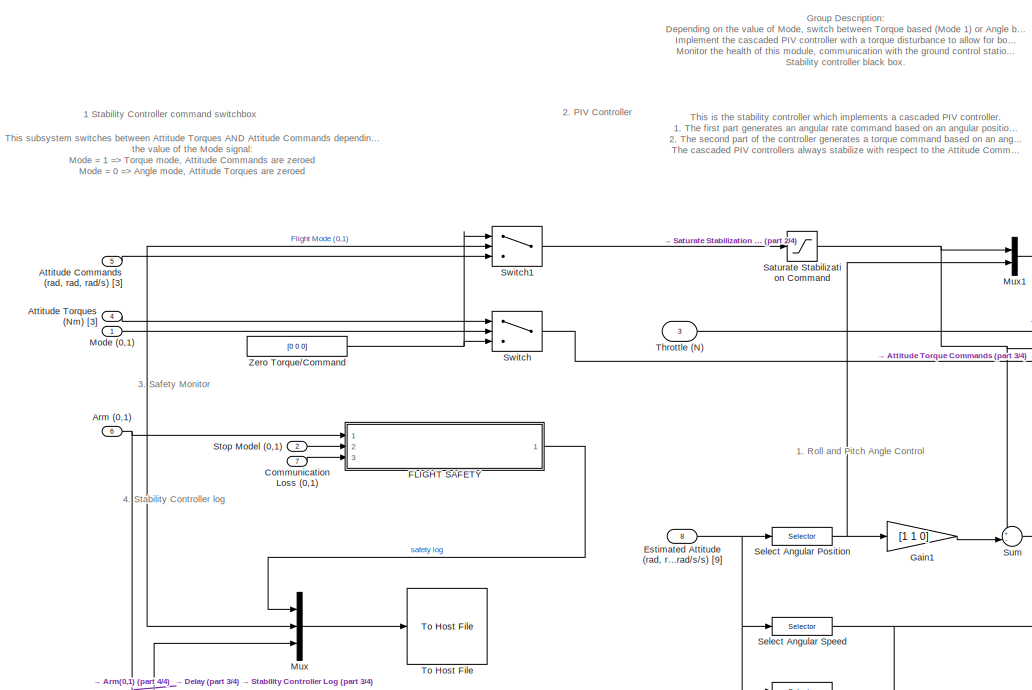
[diagram: STABILIZER - QDRONE 2 - part 1/4, left side, full height]
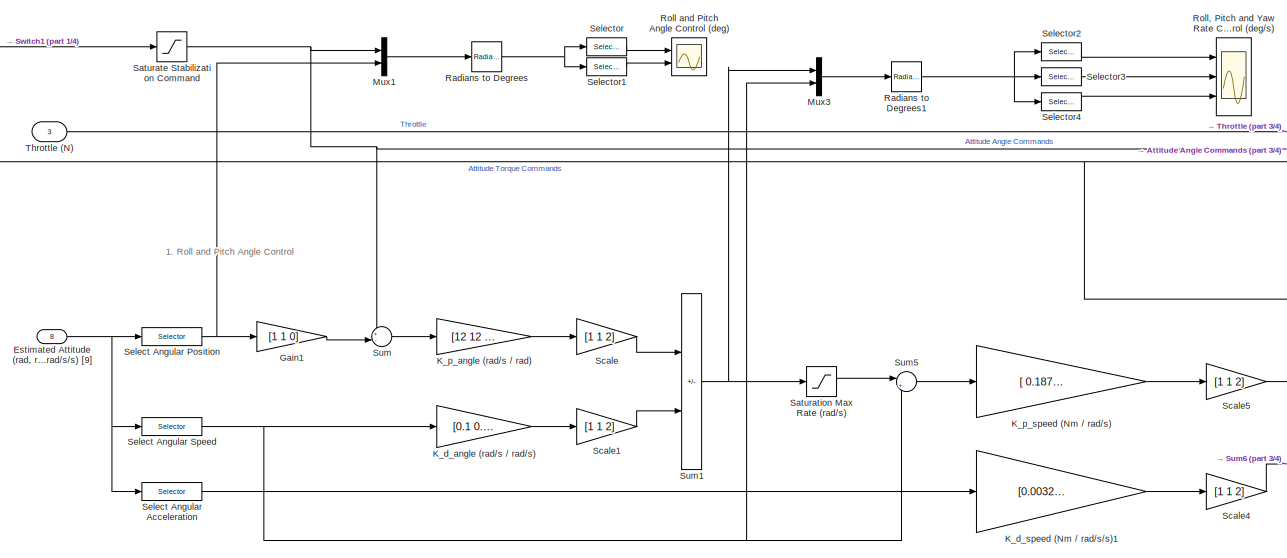
[diagram: STABILIZER - QDRONE 2 - part 2/4, central region]
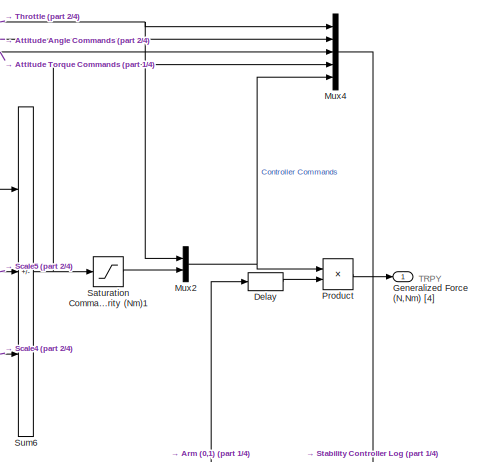
[diagram: STABILIZER - QDRONE 2 - part 3/4, middle right region]
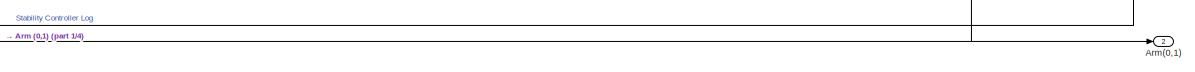
[diagram: STABILIZER - QDRONE 2 - part 4/4, bottom right region]
BLOCK [SubSystem] STABILIZER - QDRONE 2
  Ports = [8, 2]
BLOCK [Inport] STABILIZER - QDRONE 2/Arm (0,1)
  NameLocation = left
  Port = 6
BLOCK [Outport] STABILIZER - QDRONE 2/Arm(0,1)
  NameLocation = right
  Port = 2
  VectorParamsAs1DForOutWhenUnconnected = off
BLOCK [Inport] STABILIZER - QDRONE 2/Attitude Commands (rad, rad, rad//s) [3]
  NameLocation = left
  Port = 5
BLOCK [Inport] STABILIZER - QDRONE 2/Attitude Torques (Nm) [3]
  NameLocation = left
  Port = 4
BLOCK [Inport] STABILIZER - QDRONE 2/Communication Loss (0,1)
  NameLocation = left
  Port = 7
BLOCK [Delay] STABILIZER - QDRONE 2/Delay
  DelayLength = 0.1/qc_get_step_size
  InputPortMap = u0
  Ports = [1, 1]
BLOCK [Inport] STABILIZER - QDRONE 2/Estimated Attitude (rad, rad//s, rad//s//s) [9]
  Port = 8
BLOCK [SubSystem] STABILIZER - QDRONE 2/FLIGHT SAFETY
  Ports = [3, 1]
BLOCK [Inport] STABILIZER - QDRONE 2/FLIGHT SAFETY/Arm
BLOCK [Reference] STABILIZER - QDRONE 2/FLIGHT SAFETY/Communication  REF=quarc_library/Discontinuities/Threshold
  Ports = [1, 2]
  SourceBlock = quarc_library/Discontinuities/Threshold
  SourceProductName = QUARC Targets
  SourceType = Threshold
BLOCK [Inport] STABILIZER - QDRONE 2/FLIGHT SAFETY/Communication Loss
  NameLocation = top
  Port = 3
BLOCK [Reference] STABILIZER - QDRONE 2/FLIGHT SAFETY/Computation Time  REF=quarc_library/Sources/Time/Computation Time
  Ports = [0, 1]
  SourceBlock = quarc_library/Sources/Time/Computation Time
  SourceProductName = QUARC Targets
  SourceType = Computation Time
BLOCK [Scope] STABILIZER - QDRONE 2/FLIGHT SAFETY/Computation Time (s)
  Floating = off
  NumInputPorts = 1
  Ports = [1]
  ScopeSpecificationString = Simulink.scopes.TimeScopeBlockCfg('CurrentConfiguration', extmgr.ConfigurationSet(extmgr.Configuration('Core','General UI',true),extmgr.Configuration('Core','Source UI',true),extmgr.Configuration('Sources','WiredSimulink',true,'DataLoggingVariableName','ScopeData2'),extmgr.Configuration('Visuals','Time Domain',true,'SerializedDisplays',{struct('MinYLimReal','0.0004','MaxYLimReal','0.0017','YLabelR...<+1404ch>
BLOCK [DataTypeConversion] STABILIZER - QDRONE 2/FLIGHT SAFETY/Data Type Conversion1
  RndMeth = Floor
  SaturateOnIntegerOverflow = off
BLOCK [DataTypeConversion] STABILIZER - QDRONE 2/FLIGHT SAFETY/Data Type Conversion3
  OutDataTypeStr = double
  RndMeth = Floor
  SaturateOnIntegerOverflow = off
BLOCK [DataTypeConversion] STABILIZER - QDRONE 2/FLIGHT SAFETY/Data Type Conversion4
  RndMeth = Floor
  SaturateOnIntegerOverflow = off
BLOCK [DataTypeConversion] STABILIZER - QDRONE 2/FLIGHT SAFETY/Data Type Conversion5
  RndMeth = Floor
  SaturateOnIntegerOverflow = off
BLOCK [Reference] STABILIZER - QDRONE 2/FLIGHT SAFETY/HIL Watchdog  REF=quarc_library/Data Acquisition/Generic/Watchdog/HIL Watchdog
  AttributesFormatString = (%<object_name>)
  Ports = [0, 1]
  SourceBlock = quarc_library/Data Acquisition/Generic/Watchdog/HIL Watchdog
  SourceProductName = QUARC Targets
  SourceType = HIL Watchdog
  UserDataPersistent = on
BLOCK [Logic] STABILIZER - QDRONE 2/FLIGHT SAFETY/Logical Operator1
  AllPortsSameDT = off
  OutDataTypeStr = boolean
  Ports = [2, 1]
BLOCK [Mux] STABILIZER - QDRONE 2/FLIGHT SAFETY/Mux
  DisplayOption = bar
  Ports = [4, 1]
BLOCK [Mux] STABILIZER - QDRONE 2/FLIGHT SAFETY/Mux1
  DisplayOption = bar
  Inputs = 2
  Ports = [2, 1]
BLOCK [Outport] STABILIZER - QDRONE 2/FLIGHT SAFETY/Safety Log
  VectorParamsAs1DForOutWhenUnconnected = off
BLOCK [Reference] STABILIZER - QDRONE 2/FLIGHT SAFETY/Sample Time  REF=quarc_library/Sources/Time/Sample Time
  NameLocation = top
  Ports = [0, 1]
  Priority = -99
  SourceBlock = quarc_library/Sources/Time/Sample Time
  SourceProductName = QUARC Targets
  SourceType = Sample Time
BLOCK [Scope] STABILIZER - QDRONE 2/FLIGHT SAFETY/Sample Time (s)
  Floating = off
  NameLocation = top
  NumInputPorts = 1
  Ports = [1]
  ScopeSpecificationString = Simulink.scopes.TimeScopeBlockCfg('CurrentConfiguration', extmgr.ConfigurationSet(extmgr.Configuration('Core','General UI',true),extmgr.Configuration('Core','Source UI',true),extmgr.Configuration('Sources','WiredSimulink',true,'DataLoggingVariableName','ScopeData1'),extmgr.Configuration('Visuals','Time Domain',true,'SerializedDisplays',{struct('MinYLimReal','-0.00038','MaxYLimReal','0.00212','YLab...<+1408ch>
BLOCK [Inport] STABILIZER - QDRONE 2/FLIGHT SAFETY/Stop Model
  Port = 2
BLOCK [Reference] STABILIZER - QDRONE 2/FLIGHT SAFETY/Stop model  REF=quarc_library/Discontinuities/Threshold
  Ports = [1, 2]
  SourceBlock = quarc_library/Discontinuities/Threshold
  SourceProductName = QUARC Targets
  SourceType = Threshold
BLOCK [Reference] STABILIZER - QDRONE 2/FLIGHT SAFETY/Stop with Message  REF=quarc_library/Sinks/Error Handling/Stop with Message
  AttributesFormatString = "%<message>"
  Ports = [1]
  SourceBlock = quarc_library/Sinks/Error Handling/Stop with Message
  SourceProductName = QUARC Targets
  SourceType = Stop with Message
BLOCK [Reference] STABILIZER - QDRONE 2/FLIGHT SAFETY/Stop with Message1  REF=quarc_library/Sinks/Error Handling/Stop with Message
  AttributesFormatString = "%<message>"
  Ports = [1]
  SourceBlock = quarc_library/Sinks/Error Handling/Stop with Message
  SourceProductName = QUARC Targets
  SourceType = Stop with Message
BLOCK [Reference] STABILIZER - QDRONE 2/FLIGHT SAFETY/Stop with Message3  REF=quarc_library/Sinks/Error Handling/Stop with Message
  AttributesFormatString = "%<message>"
  Ports = [1]
  SourceBlock = quarc_library/Sinks/Error Handling/Stop with Message
  SourceProductName = QUARC Targets
  SourceType = Stop with Message
BLOCK [Terminator] STABILIZER - QDRONE 2/FLIGHT SAFETY/Terminator
BLOCK [Terminator] STABILIZER - QDRONE 2/FLIGHT SAFETY/Terminator1
BLOCK [Gain] STABILIZER - QDRONE 2/Gain1
  Gain = [1 1 0]
BLOCK [Outport] STABILIZER - QDRONE 2/Generalized Force (N,Nm) [4]
  NameLocation = right
  VectorParamsAs1DForOutWhenUnconnected = off
BLOCK [Gain] STABILIZER - QDRONE 2/K_d_angle (rad//s // rad//s)
  Gain = [0.1 0.1 0]
BLOCK [Gain] STABILIZER - QDRONE 2/K_d_speed (Nm // rad//s//s)1
  Gain = [0.0032    0.0026     0.005]
BLOCK [Gain] STABILIZER - QDRONE 2/K_p_angle (rad//s // rad)
  Gain = [12 12 1]
BLOCK [Gain] STABILIZER - QDRONE 2/K_p_speed (Nm // rad//s)
  Gain = [ 0.1876    0.1544    0.0395]
  NameLocation = top
BLOCK [Inport] STABILIZER - QDRONE 2/Mode (0,1)
  NameLocation = left
BLOCK [Mux] STABILIZER - QDRONE 2/Mux
  DisplayOption = bar
  Inputs = 3
  Ports = [3, 1]
BLOCK [Mux] STABILIZER - QDRONE 2/Mux1
  DisplayOption = bar
  Inputs = 2
  Ports = [2, 1]
BLOCK [Mux] STABILIZER - QDRONE 2/Mux2
  DisplayOption = bar
  Inputs = 2
  Ports = [2, 1]
BLOCK [Mux] STABILIZER - QDRONE 2/Mux3
  DisplayOption = bar
  Inputs = 2
  Ports = [2, 1]
BLOCK [Mux] STABILIZER - QDRONE 2/Mux4
  DisplayOption = bar
  Inputs = 5
  Ports = [5, 1]
BLOCK [Product] STABILIZER - QDRONE 2/Product
  Ports = [2, 1]
BLOCK [Reference] STABILIZER - QDRONE 2/Radians to Degrees  REF=simulink_extras/Transformations/Radians
to Degrees
  Ports = [1, 1]
  SourceBlock = simulink_extras/Transformations/Radians\nto Degrees
  SourceType = RadiansToDegrees
BLOCK [Reference] STABILIZER - QDRONE 2/Radians to Degrees1  REF=simulink_extras/Transformations/Radians
to Degrees
  Ports = [1, 1]
  SourceBlock = simulink_extras/Transformations/Radians\nto Degrees
  SourceType = RadiansToDegrees
BLOCK [Scope] STABILIZER - QDRONE 2/Roll and Pitch Angle Control (deg)
  Floating = off
  NameLocation = top
  NumInputPorts = 2
  Ports = [2]
  ScopeSpecificationString = Simulink.scopes.TimeScopeBlockCfg('CurrentConfiguration', extmgr.ConfigurationSet(extmgr.Configuration('Core','General UI',true),extmgr.Configuration('Core','Source UI',true),extmgr.Configuration('Sources','WiredSimulink',true,'DataLoggingVariableName','ScopeData1'),extmgr.Configuration('Visuals','Time Domain',true,'SerializedDisplays',{struct('MinYLimReal','-2.00555','MaxYLimReal','1.8629','YLabe...<+2013ch>
BLOCK [Scope] STABILIZER - QDRONE 2/Roll, Pitch and Yaw Rate Control (deg//s)
  Floating = off
  NameLocation = top
  NumInputPorts = 3
  Ports = [3]
  ScopeSpecificationString = Simulink.scopes.TimeScopeBlockCfg('CurrentConfiguration', extmgr.ConfigurationSet(extmgr.Configuration('Core','General UI',true),extmgr.Configuration('Core','Source UI',true),extmgr.Configuration('Sources','WiredSimulink',true,'DataLoggingVariableName','ScopeData2'),extmgr.Configuration('Visuals','Time Domain',true,'SerializedDisplays',{struct('MinYLimReal','-624.0016','MaxYLimReal','680.10155','Y...<+2850ch>
BLOCK [Saturate] STABILIZER - QDRONE 2/Saturate Stabilization Command
  LowerLimit = [-pi/4 -pi/4 -10*pi/18]
  UpperLimit = [pi/4 pi/4 10*pi/18]
BLOCK [Saturate] STABILIZER - QDRONE 2/Saturation Command Authority (Nm)1
  LowerLimit = -[1.0915 0.8984 0.0984]
  UpperLimit = [1.0915 0.8984 0.0984]
BLOCK [Saturate] STABILIZER - QDRONE 2/Saturation Max Rate (rad//s)
  LowerLimit = -10*pi/3*[1 1 1]
  NameLocation = top
  UpperLimit = 10*pi/3*[1 1 1]
BLOCK [Gain] STABILIZER - QDRONE 2/Scale
  Gain = [1 1 2]
BLOCK [Gain] STABILIZER - QDRONE 2/Scale1
  Gain = [1 1 2]
BLOCK [Gain] STABILIZER - QDRONE 2/Scale4
  Gain = [1 1 2]
BLOCK [Gain] STABILIZER - QDRONE 2/Scale5
  Gain = [1 1 2]
BLOCK [Selector] STABILIZER - QDRONE 2/Select Angular Acceleration
  IndexOptions = Index vector (dialog)
  Indices = [7:9]
  InputPortWidth = 9
  OutputSizes = 1
  Ports = [1, 1]
BLOCK [Selector] STABILIZER - QDRONE 2/Select Angular Position
  IndexOptions = Index vector (dialog)
  Indices = [1:3]
  InputPortWidth = 9
  OutputSizes = 1
  Ports = [1, 1]
BLOCK [Selector] STABILIZER - QDRONE 2/Select Angular Speed
  IndexOptions = Index vector (dialog)
  Indices = [4:6]
  InputPortWidth = 9
  OutputSizes = 1
  Ports = [1, 1]
BLOCK [Selector] STABILIZER - QDRONE 2/Selector
  IndexOptions = Index vector (dialog)
  Indices = [1 4]
  InputPortWidth = 6
  OutputSizes = 1
  Ports = [1, 1]
BLOCK [Selector] STABILIZER - QDRONE 2/Selector1
  IndexOptions = Index vector (dialog)
  Indices = [2 5]
  InputPortWidth = 6
  OutputSizes = 1
  Ports = [1, 1]
BLOCK [Selector] STABILIZER - QDRONE 2/Selector2
  IndexOptions = Index vector (dialog)
  Indices = [1 4]
  InputPortWidth = 6
  OutputSizes = 1
  Ports = [1, 1]
BLOCK [Selector] STABILIZER - QDRONE 2/Selector3
  IndexOptions = Index vector (dialog)
  Indices = [2 5]
  InputPortWidth = 6
  OutputSizes = 1
  Ports = [1, 1]
BLOCK [Selector] STABILIZER - QDRONE 2/Selector4
  IndexOptions = Index vector (dialog)
  Indices = [3 6]
  InputPortWidth = 6
  OutputSizes = 1
  Ports = [1, 1]
BLOCK [Inport] STABILIZER - QDRONE 2/Stop Model (0,1)
  NameLocation = left
  Port = 2
BLOCK [Sum] STABILIZER - QDRONE 2/Sum
  Inputs = +-|
  Ports = [2, 1]
BLOCK [Sum] STABILIZER - QDRONE 2/Sum1
  IconShape = rectangular
  Inputs = +-
  Ports = [2, 1]
BLOCK [Sum] STABILIZER - QDRONE 2/Sum5
  Inputs = |+-
  Ports = [2, 1]
BLOCK [Sum] STABILIZER - QDRONE 2/Sum6
  IconShape = rectangular
  Inputs = ++-
  Ports = [3, 1]
BLOCK [Switch] STABILIZER - QDRONE 2/Switch
  Criteria = u2 > Threshold
  InputSameDT = off
  SaturateOnIntegerOverflow = off
  Threshold = 0.5
BLOCK [Switch] STABILIZER - QDRONE 2/Switch1
  Criteria = u2 > Threshold
  InputSameDT = off
  SaturateOnIntegerOverflow = off
  Threshold = 0.5
BLOCK [Inport] STABILIZER - QDRONE 2/Throttle (N)
  NameLocation = left
  Port = 3
BLOCK [Reference] STABILIZER - QDRONE 2/To Host File  REF=quarc_library/Sinks/To Host/To Host File
  AttributesFormatString = %<final_file_name>
  Ports = [1]
  SourceBlock = quarc_library/Sinks/To Host/To Host File
  SourceProductName = QUARC Targets
  SourceType = To Host File
BLOCK [Constant] STABILIZER - QDRONE 2/Zero Torque//Command
  NameLocation = left
  Value = [0 0 0]
BLOCK [Terminator] Terminator
BLOCK [Terminator] Terminator2
BLOCK [Terminator] Terminator3
BLOCK [Terminator] Terminator4
BLOCK [Terminator] Terminator5
BLOCK [Terminator] Terminator6
BLOCK [Terminator] Terminator7
ANNOTATION (root): NOTE: There is nothing wrong if the LCD on the drone shows a Warning sign . It shows that the motors were disabled through hardware. When starting a model while the ESC switch is green, it will dissapear. The first model run after turning the drone on will make the ESC beep three times on startup. Any subsequent model ran will beep 5 times consecutively. It is normal behaviour.
ANNOTATION (root): i INSTRUCTIONS Ensure that a connection to the drone is established by pinging to it. See the Research Studio Setup documentation (the Communicating with the QDrone section). Click Ctrl + E or open the Hardware Settings under the HARDWARE menu. Under the Code Generation > Interface , on the External mode configuration, enter the following MEX-file arguments '-w -d /tmp -uri %u -URI_Host tcpip:// 1...<+1052ch>
ANNOTATION (root): Quanser Autonomous Vehicles Research Studio Drone Stack (Manual Flight) - QDrone2
ANNOTATION Communication: Argument (- IP_address ) is set at the MEX-file arguments found at Model Configuration Properties > Code Generation > Interface Format: tcpip://192.168.2.H:18001 where H is the last digits of your ground station's IP address (use ipconfig in a command prompt to find it out).
ANNOTATION QDrone2 DAQ: 1. HIL - QDrone2 DAQ
ANNOTATION QDrone2 DAQ: 1. Motor Command Generation
ANNOTATION QDrone2 DAQ: 2. Height Sensing
ANNOTATION QDrone2 DAQ: 3. Optical Flow Measurement
ANNOTATION QDrone2 DAQ: 4. Attitude Estimate from IMU data
ANNOTATION QDrone2 DAQ: 6. Compute Average Data between the IMUs
ANNOTATION QDrone2 DAQ: 7. Average BF estimated Attitude
ANNOTATION QDrone2 DAQ: 8. QDrone Blackbox
ANNOTATION QDrone2 DAQ: Board specific options range: In the HIL-1 Block, select '...' at the end of the board specific options box This will allow to visualize the different options and the possible values accepted for them.
ANNOTATION QDrone2 DAQ: ESC Numbers FRONT 3 1 2 0 BACK
ANNOTATION QDrone2 DAQ: Group Description: Inputs and outputs directly to/from the drone using the HIL libraries. Height sensing from the time-of-flight sensor Movement in pixels/s from the optical flow sensor at the bottom of the drone IMU data and attitude estimate from IMU 0 IMU data and attitude estimate from IMU 1 Average of both IMU outputs Average body frame attitude from IMU data Blackbox saving all relevant valu...<+2ch>
ANNOTATION QDrone2 DAQ: Motor commands are written to the QDrone via the HIL Write block. The motor command inputs are mapped for a DShot1200 protocol as follows: Percent Throttle 0% No Throttle 100% Max Throttle LED colors: Blue: Drone is not armed Green: Drone is armed Red: Low battery or emergency stop triggered
ANNOTATION QDrone2 DAQ: HIL Board Specific-Options: gyro0_fs=250;gyro0_rate=500;gyro0_bw=125;gyro0_ord=3;accel0_fs=16;accel0_rate=1000;accel0_bw=400;accel0_ord=3;temp0_bw=4000;gyro1_fs=250;gyro1_rate=500;gyro1_bw=125;gyro1_ord=3;accel1_fs=16;accel1_rate=1000;accel1_bw=400;accel1_ord=3;temp1_bw=4000;enc0_dir=0;enc1_dir=0;pwm03_dshot=1;opt_rate=121;
ANNOTATION QDrone2 DAQ: DAQ
ANNOTATION QDrone2 DAQ: HIL Read Sensors QDrone2
ANNOTATION QDrone2 DAQ: HIL Write Commands for QDrone2
ANNOTATION QDrone2 DAQ/Attitude Estimate from IMU Data: IMU 0 Angular Acceleration Estimate (deg/s/s)
ANNOTATION QDrone2 DAQ/Attitude Estimate from IMU Data: IMU 0 Attitude Est (deg)
ANNOTATION QDrone2 DAQ/Attitude Estimate from IMU Data: IMU 0 Raw Rate Estimate (deg/s)
ANNOTATION QDrone2 DAQ/Attitude Estimate from IMU Data: IMU 1 Angular Acceleration Estimate (deg/s/s)
ANNOTATION QDrone2 DAQ/Attitude Estimate from IMU Data: IMU 1 Attitude Est (deg)
ANNOTATION QDrone2 DAQ/Attitude Estimate from IMU Data/For Each Subsystem - Attitutde Estimates: Accelerometer (m/s/s) [3]
ANNOTATION QDrone2 DAQ/Attitude Estimate from IMU Data/For Each Subsystem - Attitutde Estimates: Angular Acceleration Estimation via Filter + Derivative
ANNOTATION QDrone2 DAQ/Attitude Estimate from IMU Data/For Each Subsystem - Attitutde Estimates: Attitude Estimates from IMU Data
ANNOTATION QDrone2 DAQ/Attitude Estimate from IMU Data/For Each Subsystem - Attitutde Estimates: Roll & Pitch angle estimation via sensor fusion
ANNOTATION QDrone2 DAQ/Attitude Estimate from IMU Data/For Each Subsystem - Attitutde Estimates: Roll And Pitch From Accelerometer Filter + Attitude Approximation
ANNOTATION QDrone2 DAQ/Sensor Failure Monitoring - IMU0: Check for no data condition (flat-line zero) from any of the onboard sensors
ANNOTATION QDrone2 DAQ/Sensor Failure Monitoring - IMU0/Sensor Failure (Accelerometer): Check for flat-line ZERO Accelerometer data (no data)
ANNOTATION QDrone2 DAQ/Sensor Failure Monitoring - IMU0/Sensor Failure (Gyroscope): Check for flat-line ZERO Gyro data (no data)
ANNOTATION QDrone2 DAQ/Sensor Failure Monitoring - IMU1: Check for no data condition (flat-line zero) from any of the onboard sensors
ANNOTATION QDrone2 DAQ/Sensor Failure Monitoring - IMU1/Sensor Failure (Accelerometer): Check for flat-line ZERO Accelerometer data (no data)
ANNOTATION QDrone2 DAQ/Sensor Failure Monitoring - IMU1/Sensor Failure (Gyroscope): Check for flat-line ZERO Gyro data (no data)
ANNOTATION QDrone2 DAQ/Subsystem: PCB LED 1
ANNOTATION QDrone2 DAQ/Subsystem: PCB LED 2
ANNOTATION STABILIZER - QDRONE 2: 1 Stability Controller command switchbox
ANNOTATION STABILIZER - QDRONE 2: 1. Roll and Pitch Angle Control
ANNOTATION STABILIZER - QDRONE 2: 2. PIV Controller
ANNOTATION STABILIZER - QDRONE 2: 3. Safety Monitor
ANNOTATION STABILIZER - QDRONE 2: 4. Stability Controller log
ANNOTATION STABILIZER - QDRONE 2: This is the stability controller which implements a cascaded PIV controller. 1. The first part generates an angular rate command based on an angular position error. 2. The second part of the controller generates a torque command based on an angular rate error. The cascaded PIV controllers always stabilize with respect to the Attitude Commands (rad, rad/s) [3] setpoint. The Attitude Torques (Nm) [3...<+104ch>
ANNOTATION STABILIZER - QDRONE 2: Group Description: Depending on the value of Mode, switch between Torque based (Mode 1) or Angle based (Mode 0) stabilization. Implement the cascaded PIV controller with a torque disturbance to allow for both Torque based or Angle based stabilization. Monitor the health of this module, communication with the ground control station PC, etc. for safety reasons. Stability controller black box.
ANNOTATION STABILIZER - QDRONE 2: TRPY
ANNOTATION STABILIZER - QDRONE 2: This subsystem switches between Attitude Torques AND Attitude Commands depending on the value of the Mode signal: Mode = 1 => Torque mode, Attitude Commands are zeroed Mode = 0 => Angle mode, Attitude Torques are zeroed
ANNOTATION STABILIZER - QDRONE 2/FLIGHT SAFETY: Flight Safety Information When a warning/stop message pops up, this is the subsystem that generates them. Monitor Sample/Computation Time Stop this model when Stop Model is generated communication loss is detected Also log the watchdog monitor output
ANNOTATION STABILIZER - QDRONE 2/FLIGHT SAFETY: If communication with the model supplying reference commands has been lost for some time while the drone is armed, stop the model. This will shut off the motors as well.
ANNOTATION STABILIZER - QDRONE 2/FLIGHT SAFETY: If the model supplying reference commands triggers a STOP MODEL command, stop this model. This will shut off the motors as well.
ANNOTATION STABILIZER - QDRONE 2/FLIGHT SAFETY: If the watchdog times out, stop the model. This will shut off the motors as well.
ANNOTATION STABILIZER - QDRONE 2/FLIGHT SAFETY: Log Computation Time. This must be less than 0.001 s
ANNOTATION STABILIZER - QDRONE 2/FLIGHT SAFETY: Log Sample Time. This must be approximately 0.001 s
LINE Communication/Constant:1 -> Communication/Stream Client:2
LINE Communication/Data In:1 -> Communication/Delay:1
LINE Communication/Delay:1 -> Communication/Stream Client:1
LINE Communication/Detect Communication loss/Clock:1 -> Communication/Detect Communication loss/MATLAB Function:1
LINE Communication/Detect Communication loss/Data Out:1 -> Communication/Detect Communication loss/Grab throttle command to detect flat lines:1
LINE Communication/Detect Communication loss/Data Type Conversion:1 -> Communication/Detect Communication loss/Communication Issue:1
LINE Communication/Detect Communication loss/Error:1 -> Communication/Detect Communication loss/MATLAB Function:3
LINE Communication/Detect Communication loss/Grab throttle command to detect flat lines:1 -> Communication/Detect Communication loss/MATLAB Function:4
LINE Communication/Detect Communication loss/Logical Operator4:1 -> Communication/Detect Communication loss/Data Type Conversion:1
LINE Communication/Detect Communication loss/MATLAB Function:1 -> Communication/Detect Communication loss/Threshold:1
LINE Communication/Detect Communication loss/MATLAB Function:2 -> Communication/Detect Communication loss/Threshold1:1
LINE Communication/Detect Communication loss/State:1 -> Communication/Detect Communication loss/MATLAB Function:2
LINE Communication/Detect Communication loss/Threshold1:1 -> Communication/Detect Communication loss/Logical Operator4:2
LINE Communication/Detect Communication loss/Threshold1:2 -> Communication/Detect Communication loss/Terminator3:1
LINE Communication/Detect Communication loss/Threshold:1 -> Communication/Detect Communication loss/Logical Operator4:1
LINE Communication/Detect Communication loss/Threshold:2 -> Communication/Detect Communication loss/Terminator2:1
LINE Communication/Detect Communication loss:1 -> Communication/Communication Issue:1
NET Communication/IP Address of Supervisory Model (Mission Operator//Commander):1 -> Communication/Stream Client:3, Communication/String Display:1
NET Communication/Stream Client:1 -> Communication/Detect Communication loss:1, Communication/Display:1
LINE Communication/Stream Client:2 -> Communication/Detect Communication loss:2
LINE Communication/Stream Client:3 -> Communication/Terminator:1
NET Communication/Stream Client:4 -> Communication/Data Out:1, Communication/Detect Communication loss:3
LINE Communication/Stream Client:5 -> Communication/Terminator1:1
NET Communication:1 -> Comm Issue:1, STABILIZER - QDRONE 2:7
LINE Communication:2 -> Demux1:1
LINE Demux1:1 -> STABILIZER - QDRONE 2:1
NET Demux1:2 -> QDrone2 DAQ:1, STABILIZER - QDRONE 2:2
LINE Demux1:3 -> STABILIZER - QDRONE 2:3
LINE Demux1:4 -> STABILIZER - QDRONE 2:4
LINE Demux1:5 -> STABILIZER - QDRONE 2:5
LINE Demux1:6 -> STABILIZER - QDRONE 2:6
LINE Demux1:7 -> Communication:1
LINE Demux2:1 -> Terminator4:1
LINE Demux2:2 -> Terminator7:1
LINE Demux2:3 -> Terminator5:1
LINE Demux2:4 -> Terminator6:1
NET QDrone2 DAQ/Arm (0,1):1 -> QDrone2 DAQ/MotorCMD_FSM:1, QDrone2 DAQ/Product3:3, QDrone2 DAQ/Subsystem:2
LINE QDrone2 DAQ/Attitude Estimate from IMU Data/Demux10:1 -> QDrone2 DAQ/Attitude Estimate from IMU Data/Angular Acceleration Estimate IMU 1 (deg//s//s):1
LINE QDrone2 DAQ/Attitude Estimate from IMU Data/Demux10:2 -> QDrone2 DAQ/Attitude Estimate from IMU Data/Angular Acceleration Estimate IMU 1 (deg//s//s):2
LINE QDrone2 DAQ/Attitude Estimate from IMU Data/Demux10:3 -> QDrone2 DAQ/Attitude Estimate from IMU Data/Angular Acceleration Estimate IMU 1 (deg//s//s):3
LINE QDrone2 DAQ/Attitude Estimate from IMU Data/Demux11:1 -> QDrone2 DAQ/Attitude Estimate from IMU Data/Raw Rate Estimate - IMU 1 (deg//s):1
LINE QDrone2 DAQ/Attitude Estimate from IMU Data/Demux11:2 -> QDrone2 DAQ/Attitude Estimate from IMU Data/Raw Rate Estimate - IMU 1 (deg//s):2
LINE QDrone2 DAQ/Attitude Estimate from IMU Data/Demux11:3 -> QDrone2 DAQ/Attitude Estimate from IMU Data/Raw Rate Estimate - IMU 1 (deg//s):3
LINE QDrone2 DAQ/Attitude Estimate from IMU Data/Demux12:1 -> QDrone2 DAQ/Attitude Estimate from IMU Data/Raw Acceleration Estimate - IMU 0 (m//s^2):1
LINE QDrone2 DAQ/Attitude Estimate from IMU Data/Demux12:2 -> QDrone2 DAQ/Attitude Estimate from IMU Data/Raw Acceleration Estimate - IMU 0 (m//s^2):2
LINE QDrone2 DAQ/Attitude Estimate from IMU Data/Demux12:3 -> QDrone2 DAQ/Attitude Estimate from IMU Data/Raw Acceleration Estimate - IMU 0 (m//s^2):3
LINE QDrone2 DAQ/Attitude Estimate from IMU Data/Demux13:1 -> QDrone2 DAQ/Attitude Estimate from IMU Data/Raw Acceleration Estimate - IMU 1 (m//s^2):1
LINE QDrone2 DAQ/Attitude Estimate from IMU Data/Demux13:2 -> QDrone2 DAQ/Attitude Estimate from IMU Data/Raw Acceleration Estimate - IMU 1 (m//s^2):2
LINE QDrone2 DAQ/Attitude Estimate from IMU Data/Demux13:3 -> QDrone2 DAQ/Attitude Estimate from IMU Data/Raw Acceleration Estimate - IMU 1 (m//s^2):3
LINE QDrone2 DAQ/Attitude Estimate from IMU Data/Demux14:1 -> QDrone2 DAQ/Attitude Estimate from IMU Data/Angular Rate Estimate - IMU 0 (deg//s//s):1
LINE QDrone2 DAQ/Attitude Estimate from IMU Data/Demux14:2 -> QDrone2 DAQ/Attitude Estimate from IMU Data/Angular Rate Estimate - IMU 0 (deg//s//s):2
LINE QDrone2 DAQ/Attitude Estimate from IMU Data/Demux14:3 -> QDrone2 DAQ/Attitude Estimate from IMU Data/Angular Rate Estimate - IMU 0 (deg//s//s):3
LINE QDrone2 DAQ/Attitude Estimate from IMU Data/Demux15:1 -> QDrone2 DAQ/Attitude Estimate from IMU Data/BF Estimated Attitude from IMU 0 (rad, rad//s, rad//s^2) [9]:1
LINE QDrone2 DAQ/Attitude Estimate from IMU Data/Demux15:2 -> QDrone2 DAQ/Attitude Estimate from IMU Data/BF Estimated Attitude from IMU 1 (rad, rad//s, rad//s^2) [9]:1
LINE QDrone2 DAQ/Attitude Estimate from IMU Data/Demux16:1 -> QDrone2 DAQ/Attitude Estimate from IMU Data/Angular Rate Estimate IMU 1 (deg//s//s):1
LINE QDrone2 DAQ/Attitude Estimate from IMU Data/Demux16:2 -> QDrone2 DAQ/Attitude Estimate from IMU Data/Angular Rate Estimate IMU 1 (deg//s//s):2
LINE QDrone2 DAQ/Attitude Estimate from IMU Data/Demux16:3 -> QDrone2 DAQ/Attitude Estimate from IMU Data/Angular Rate Estimate IMU 1 (deg//s//s):3
LINE QDrone2 DAQ/Attitude Estimate from IMU Data/Demux1:1 -> QDrone2 DAQ/Attitude Estimate from IMU Data/Demux4:1
LINE QDrone2 DAQ/Attitude Estimate from IMU Data/Demux1:2 -> QDrone2 DAQ/Attitude Estimate from IMU Data/Demux7:1
LINE QDrone2 DAQ/Attitude Estimate from IMU Data/Demux2:1 -> QDrone2 DAQ/Attitude Estimate from IMU Data/Demux14:1
LINE QDrone2 DAQ/Attitude Estimate from IMU Data/Demux2:2 -> QDrone2 DAQ/Attitude Estimate from IMU Data/Demux16:1
LINE QDrone2 DAQ/Attitude Estimate from IMU Data/Demux3:1 -> QDrone2 DAQ/Attitude Estimate from IMU Data/Demux5:1
LINE QDrone2 DAQ/Attitude Estimate from IMU Data/Demux3:2 -> QDrone2 DAQ/Attitude Estimate from IMU Data/Demux10:1
LINE QDrone2 DAQ/Attitude Estimate from IMU Data/Demux4:1 -> QDrone2 DAQ/Attitude Estimate from IMU Data/Attitude - IMU 0 (deg):1
LINE QDrone2 DAQ/Attitude Estimate from IMU Data/Demux4:2 -> QDrone2 DAQ/Attitude Estimate from IMU Data/Attitude - IMU 0 (deg):2
LINE QDrone2 DAQ/Attitude Estimate from IMU Data/Demux4:3 -> QDrone2 DAQ/Attitude Estimate from IMU Data/Attitude - IMU 0 (deg):3
LINE QDrone2 DAQ/Attitude Estimate from IMU Data/Demux5:1 -> QDrone2 DAQ/Attitude Estimate from IMU Data/Angular Acceleration Estimate - IMU 0 (deg//s//s):1
LINE QDrone2 DAQ/Attitude Estimate from IMU Data/Demux5:2 -> QDrone2 DAQ/Attitude Estimate from IMU Data/Angular Acceleration Estimate - IMU 0 (deg//s//s):2
LINE QDrone2 DAQ/Attitude Estimate from IMU Data/Demux5:3 -> QDrone2 DAQ/Attitude Estimate from IMU Data/Angular Acceleration Estimate - IMU 0 (deg//s//s):3
LINE QDrone2 DAQ/Attitude Estimate from IMU Data/Demux6:1 -> QDrone2 DAQ/Attitude Estimate from IMU Data/Demux9:1
LINE QDrone2 DAQ/Attitude Estimate from IMU Data/Demux6:2 -> QDrone2 DAQ/Attitude Estimate from IMU Data/Demux12:1
LINE QDrone2 DAQ/Attitude Estimate from IMU Data/Demux7:1 -> QDrone2 DAQ/Attitude Estimate from IMU Data/Attitude - IMU 1 (deg):1
LINE QDrone2 DAQ/Attitude Estimate from IMU Data/Demux7:2 -> QDrone2 DAQ/Attitude Estimate from IMU Data/Attitude - IMU 1 (deg):2
LINE QDrone2 DAQ/Attitude Estimate from IMU Data/Demux7:3 -> QDrone2 DAQ/Attitude Estimate from IMU Data/Attitude - IMU 1 (deg):3
LINE QDrone2 DAQ/Attitude Estimate from IMU Data/Demux8:1 -> QDrone2 DAQ/Attitude Estimate from IMU Data/Demux11:1
LINE QDrone2 DAQ/Attitude Estimate from IMU Data/Demux8:2 -> QDrone2 DAQ/Attitude Estimate from IMU Data/Demux13:1
LINE QDrone2 DAQ/Attitude Estimate from IMU Data/Demux9:1 -> QDrone2 DAQ/Attitude Estimate from IMU Data/Raw Rate Estimate - IMU 0  (deg//s):1
LINE QDrone2 DAQ/Attitude Estimate from IMU Data/Demux9:2 -> QDrone2 DAQ/Attitude Estimate from IMU Data/Raw Rate Estimate - IMU 0  (deg//s):2
LINE QDrone2 DAQ/Attitude Estimate from IMU Data/Demux9:3 -> QDrone2 DAQ/Attitude Estimate from IMU Data/Raw Rate Estimate - IMU 0  (deg//s):3
LINE QDrone2 DAQ/Attitude Estimate from IMU Data/For Each Subsystem - Attitutde Estimates/Constant10:1 -> QDrone2 DAQ/Attitude Estimate from IMU Data/For Each Subsystem - Attitutde Estimates/Second-Order Low-Pass Filter (Roll and Pitch Rate):3
LINE QDrone2 DAQ/Attitude Estimate from IMU Data/For Each Subsystem - Attitutde Estimates/Constant3:1 -> QDrone2 DAQ/Attitude Estimate from IMU Data/For Each Subsystem - Attitutde Estimates/Second-Order Low-Pass Filter (Yaw Rate):3
LINE QDrone2 DAQ/Attitude Estimate from IMU Data/For Each Subsystem - Attitutde Estimates/Constant9:1 -> QDrone2 DAQ/Attitude Estimate from IMU Data/For Each Subsystem - Attitutde Estimates/Second-Order Low-Pass Filter (Roll and Pitch Rate):2
LINE QDrone2 DAQ/Attitude Estimate from IMU Data/For Each Subsystem - Attitutde Estimates/Constant:1 -> QDrone2 DAQ/Attitude Estimate from IMU Data/For Each Subsystem - Attitutde Estimates/Second-Order Low-Pass Filter (Yaw Rate):2
NET QDrone2 DAQ/Attitude Estimate from IMU Data/For Each Subsystem - Attitutde Estimates/Demux:1 -> QDrone2 DAQ/Attitude Estimate from IMU Data/For Each Subsystem - Attitutde Estimates/Second-Order Low-Pass Filter (Yaw Rate):1, QDrone2 DAQ/Attitude Estimate from IMU Data/For Each Subsystem - Attitutde Estimates/Second-Order Low-Pass Filter (Yaw Rate):4, QDrone2 DAQ/Attitude Estimate from IMU Data/For Each Subsystem - Attitutde Estimates/Selector2:1, QDrone2 DAQ/Attitude Estimate from IMU Data/For Each Subsystem - Attitutde Estimates/Selector3:1
NET QDrone2 DAQ/Attitude Estimate from IMU Data/For Each Subsystem - Attitutde Estimates/Demux:2 -> QDrone2 DAQ/Attitude Estimate from IMU Data/For Each Subsystem - Attitutde Estimates/Second-Order Low-Pass Filter (Roll and Pitch Rate):1, QDrone2 DAQ/Attitude Estimate from IMU Data/For Each Subsystem - Attitutde Estimates/Second-Order Low-Pass Filter (Roll and Pitch Rate):4
LINE QDrone2 DAQ/Attitude Estimate from IMU Data/For Each Subsystem - Attitutde Estimates/IMU (rad//s, m//s^2) [6n]:1 -> QDrone2 DAQ/Attitude Estimate from IMU Data/For Each Subsystem - Attitutde Estimates/Demux:1
LINE QDrone2 DAQ/Attitude Estimate from IMU Data/For Each Subsystem - Attitutde Estimates/Integrator2:1 -> QDrone2 DAQ/Attitude Estimate from IMU Data/For Each Subsystem - Attitutde Estimates/Mux5:2
NET QDrone2 DAQ/Attitude Estimate from IMU Data/For Each Subsystem - Attitutde Estimates/Integrator3:1 -> QDrone2 DAQ/Attitude Estimate from IMU Data/For Each Subsystem - Attitutde Estimates/Mux5:1, QDrone2 DAQ/Attitude Estimate from IMU Data/For Each Subsystem - Attitutde Estimates/Sum4:2
LINE QDrone2 DAQ/Attitude Estimate from IMU Data/For Each Subsystem - Attitutde Estimates/Integrator4:1 -> QDrone2 DAQ/Attitude Estimate from IMU Data/For Each Subsystem - Attitutde Estimates/Sum1:3
LINE QDrone2 DAQ/Attitude Estimate from IMU Data/For Each Subsystem - Attitutde Estimates/Ki1:1 -> QDrone2 DAQ/Attitude Estimate from IMU Data/For Each Subsystem - Attitutde Estimates/Integrator4:1
LINE QDrone2 DAQ/Attitude Estimate from IMU Data/For Each Subsystem - Attitutde Estimates/Kp1:1 -> QDrone2 DAQ/Attitude Estimate from IMU Data/For Each Subsystem - Attitutde Estimates/Sum1:2
LINE QDrone2 DAQ/Attitude Estimate from IMU Data/For Each Subsystem - Attitutde Estimates/Mux4:1 -> QDrone2 DAQ/Attitude Estimate from IMU Data/For Each Subsystem - Attitutde Estimates/Sum4:1
NET QDrone2 DAQ/Attitude Estimate from IMU Data/For Each Subsystem - Attitutde Estimates/Mux5:1 -> QDrone2 DAQ/Attitude Estimate from IMU Data/For Each Subsystem - Attitutde Estimates/BF Att (rad) [3n]:1, QDrone2 DAQ/Attitude Estimate from IMU Data/For Each Subsystem - Attitutde Estimates/Mux:1
LINE QDrone2 DAQ/Attitude Estimate from IMU Data/For Each Subsystem - Attitutde Estimates/Mux:1 -> QDrone2 DAQ/Attitude Estimate from IMU Data/For Each Subsystem - Attitutde Estimates/BF Estimated Att (rad, rad//s, rad//s^2) [9n] :1
LINE QDrone2 DAQ/Attitude Estimate from IMU Data/For Each Subsystem - Attitutde Estimates/Second-Order Low-Pass Filter (Roll and Pitch Rate):1 -> QDrone2 DAQ/Attitude Estimate from IMU Data/For Each Subsystem - Attitutde Estimates/roll and pitch approximation from accelerometer:1
LINE QDrone2 DAQ/Attitude Estimate from IMU Data/For Each Subsystem - Attitutde Estimates/Second-Order Low-Pass Filter (Roll and Pitch Rate):2 -> QDrone2 DAQ/Attitude Estimate from IMU Data/For Each Subsystem - Attitutde Estimates/Terminator1:1
NET QDrone2 DAQ/Attitude Estimate from IMU Data/For Each Subsystem - Attitutde Estimates/Second-Order Low-Pass Filter (Yaw Rate):1 -> QDrone2 DAQ/Attitude Estimate from IMU Data/For Each Subsystem - Attitutde Estimates/BF Att Rate (rad//s) [3n]:1, QDrone2 DAQ/Attitude Estimate from IMU Data/For Each Subsystem - Attitutde Estimates/Mux:2
NET QDrone2 DAQ/Attitude Estimate from IMU Data/For Each Subsystem - Attitutde Estimates/Second-Order Low-Pass Filter (Yaw Rate):2 -> QDrone2 DAQ/Attitude Estimate from IMU Data/For Each Subsystem - Attitutde Estimates/BF Att Accel (rad//s^2) [3n]:1, QDrone2 DAQ/Attitude Estimate from IMU Data/For Each Subsystem - Attitutde Estimates/Mux:3
LINE QDrone2 DAQ/Attitude Estimate from IMU Data/For Each Subsystem - Attitutde Estimates/Selector2:1 -> QDrone2 DAQ/Attitude Estimate from IMU Data/For Each Subsystem - Attitutde Estimates/Sum1:1
LINE QDrone2 DAQ/Attitude Estimate from IMU Data/For Each Subsystem - Attitutde Estimates/Selector3:1 -> QDrone2 DAQ/Attitude Estimate from IMU Data/For Each Subsystem - Attitutde Estimates/Integrator2:1
LINE QDrone2 DAQ/Attitude Estimate from IMU Data/For Each Subsystem - Attitutde Estimates/Sum1:1 -> QDrone2 DAQ/Attitude Estimate from IMU Data/For Each Subsystem - Attitutde Estimates/Integrator3:1
NET QDrone2 DAQ/Attitude Estimate from IMU Data/For Each Subsystem - Attitutde Estimates/Sum4:1 -> QDrone2 DAQ/Attitude Estimate from IMU Data/For Each Subsystem - Attitutde Estimates/Ki1:1, QDrone2 DAQ/Attitude Estimate from IMU Data/For Each Subsystem - Attitutde Estimates/Kp1:1
LINE QDrone2 DAQ/Attitude Estimate from IMU Data/For Each Subsystem - Attitutde Estimates/roll and pitch approximation from accelerometer:1 -> QDrone2 DAQ/Attitude Estimate from IMU Data/For Each Subsystem - Attitutde Estimates/Mux4:1
LINE QDrone2 DAQ/Attitude Estimate from IMU Data/For Each Subsystem - Attitutde Estimates/roll and pitch approximation from accelerometer:2 -> QDrone2 DAQ/Attitude Estimate from IMU Data/For Each Subsystem - Attitutde Estimates/Mux4:2
LINE QDrone2 DAQ/Attitude Estimate from IMU Data/For Each Subsystem - Attitutde Estimates:1 -> QDrone2 DAQ/Attitude Estimate from IMU Data/Radians to Degrees:1
LINE QDrone2 DAQ/Attitude Estimate from IMU Data/For Each Subsystem - Attitutde Estimates:2 -> QDrone2 DAQ/Attitude Estimate from IMU Data/Radians to Degrees1:1
LINE QDrone2 DAQ/Attitude Estimate from IMU Data/For Each Subsystem - Attitutde Estimates:3 -> QDrone2 DAQ/Attitude Estimate from IMU Data/Radians to Degrees2:1
LINE QDrone2 DAQ/Attitude Estimate from IMU Data/For Each Subsystem - Attitutde Estimates:4 -> QDrone2 DAQ/Attitude Estimate from IMU Data/Demux15:1
NET QDrone2 DAQ/Attitude Estimate from IMU Data/IMU_0 [6]:1 -> QDrone2 DAQ/Attitude Estimate from IMU Data/Mux:1, QDrone2 DAQ/Attitude Estimate from IMU Data/Radians to Degrees3:1
NET QDrone2 DAQ/Attitude Estimate from IMU Data/IMU_1 [6]:1 -> QDrone2 DAQ/Attitude Estimate from IMU Data/Mux:2, QDrone2 DAQ/Attitude Estimate from IMU Data/Radians to Degrees4:1
LINE QDrone2 DAQ/Attitude Estimate from IMU Data/Mux:1 -> QDrone2 DAQ/Attitude Estimate from IMU Data/For Each Subsystem - Attitutde Estimates:1
LINE QDrone2 DAQ/Attitude Estimate from IMU Data/Radians to Degrees1:1 -> QDrone2 DAQ/Attitude Estimate from IMU Data/Demux2:1
LINE QDrone2 DAQ/Attitude Estimate from IMU Data/Radians to Degrees2:1 -> QDrone2 DAQ/Attitude Estimate from IMU Data/Demux3:1
LINE QDrone2 DAQ/Attitude Estimate from IMU Data/Radians to Degrees3:1 -> QDrone2 DAQ/Attitude Estimate from IMU Data/Demux6:1
LINE QDrone2 DAQ/Attitude Estimate from IMU Data/Radians to Degrees4:1 -> QDrone2 DAQ/Attitude Estimate from IMU Data/Demux8:1
LINE QDrone2 DAQ/Attitude Estimate from IMU Data/Radians to Degrees:1 -> QDrone2 DAQ/Attitude Estimate from IMU Data/Demux1:1
LINE QDrone2 DAQ/Attitude Estimate from IMU Data:1 -> QDrone2 DAQ/Goto6:1
LINE QDrone2 DAQ/Attitude Estimate from IMU Data:2 -> QDrone2 DAQ/Goto7:1
LINE QDrone2 DAQ/BF Attitude (deg):1 -> QDrone2 DAQ/Demux1:1
LINE QDrone2 DAQ/BF Attitude Accel (deg//s^2):1 -> QDrone2 DAQ/Demux8:1
LINE QDrone2 DAQ/BF Attitude rate (deg//s):1 -> QDrone2 DAQ/Demux3:1
LINE QDrone2 DAQ/Bias1:1 -> QDrone2 DAQ/Saturation1:1
NET QDrone2 DAQ/Check Battery level/Battery level:1 -> QDrone2 DAQ/Check Battery level/Compare To Constant1:1, QDrone2 DAQ/Check Battery level/Compare To Constant:1
LINE QDrone2 DAQ/Check Battery level/Compare To Constant1:1 -> QDrone2 DAQ/Check Battery level/Logical Operator:1
LINE QDrone2 DAQ/Check Battery level/Compare To Constant:1 -> QDrone2 DAQ/Check Battery level/Data Type Conversion:1
LINE QDrone2 DAQ/Check Battery level/Data Type Conversion1:1 -> QDrone2 DAQ/Check Battery level/Low Battery:1
LINE QDrone2 DAQ/Check Battery level/Data Type Conversion:1 -> QDrone2 DAQ/Check Battery level/Threshold:1
LINE QDrone2 DAQ/Check Battery level/Logical Operator:1 -> QDrone2 DAQ/Check Battery level/Triggered Subsystem:trigger
LINE QDrone2 DAQ/Check Battery level/Threshold:1 -> QDrone2 DAQ/Check Battery level/Logical Operator:2
LINE QDrone2 DAQ/Check Battery level/Threshold:2 -> QDrone2 DAQ/Check Battery level/Terminator:1
LINE QDrone2 DAQ/Check Battery level/Triggered Subsystem/Constant:1 -> QDrone2 DAQ/Check Battery level/Triggered Subsystem/Out1:1
LINE QDrone2 DAQ/Check Battery level/Triggered Subsystem:1 -> QDrone2 DAQ/Check Battery level/Data Type Conversion1:1
NET QDrone2 DAQ/Check Battery level:1 -> QDrone2 DAQ/ :1, QDrone2 DAQ/Low Battery (0,1):1
LINE QDrone2 DAQ/Choose Motor Telemetry/Bias1:1 -> QDrone2 DAQ/Choose Motor Telemetry/Telemetry:1
LINE QDrone2 DAQ/Choose Motor Telemetry/Constant:1 -> QDrone2 DAQ/Choose Motor Telemetry/Selector:1
LINE QDrone2 DAQ/Choose Motor Telemetry/Counter Free-Running:1 -> QDrone2 DAQ/Choose Motor Telemetry/Selector:2
LINE QDrone2 DAQ/Choose Motor Telemetry/Gain:1 -> QDrone2 DAQ/Choose Motor Telemetry/Bias1:1
NET QDrone2 DAQ/Choose Motor Telemetry/Selector:1 -> QDrone2 DAQ/Choose Motor Telemetry/Gain:1, QDrone2 DAQ/Choose Motor Telemetry/Motor telemetry:1
LINE QDrone2 DAQ/Choose Motor Telemetry1/Channel:1 -> QDrone2 DAQ/Choose Motor Telemetry1/Multiport Switch:1
LINE QDrone2 DAQ/Choose Motor Telemetry1/Constant1:1 -> QDrone2 DAQ/Choose Motor Telemetry1/Multiport Switch:2
LINE QDrone2 DAQ/Choose Motor Telemetry1/Constant2:1 -> QDrone2 DAQ/Choose Motor Telemetry1/Multiport Switch:3
LINE QDrone2 DAQ/Choose Motor Telemetry1/Constant3:1 -> QDrone2 DAQ/Choose Motor Telemetry1/Multiport Switch:4
LINE QDrone2 DAQ/Choose Motor Telemetry1/Constant4:1 -> QDrone2 DAQ/Choose Motor Telemetry1/Multiport Switch:5
LINE QDrone2 DAQ/Choose Motor Telemetry1/Multiport Switch:1 -> QDrone2 DAQ/Choose Motor Telemetry1/Motor selection:1
LINE QDrone2 DAQ/Choose Motor Telemetry1:1 -> QDrone2 DAQ/Product8:2
LINE QDrone2 DAQ/Choose Motor Telemetry:1 -> QDrone2 DAQ/ESC Output:2
NET QDrone2 DAQ/Computation Time:1 -> QDrone2 DAQ/Mux8:1, QDrone2 DAQ/Tc:1
LINE QDrone2 DAQ/Constant12:1 -> QDrone2 DAQ/Divide:2
LINE QDrone2 DAQ/Constant13:1 -> QDrone2 DAQ/Vector Concatenate:1
LINE QDrone2 DAQ/Constant1:1 -> QDrone2 DAQ/Product:1
LINE QDrone2 DAQ/Constant2:1 -> QDrone2 DAQ/Force to percentage Mapping:3
LINE QDrone2 DAQ/Constant4:1 -> QDrone2 DAQ/Divide1:2
LINE QDrone2 DAQ/Constant5:1 -> QDrone2 DAQ/Euler Angles to Rotation Matrix:1
LINE QDrone2 DAQ/Degrees to Radians:1 -> QDrone2 DAQ/Demux14:1
LINE QDrone2 DAQ/Demux11:1 -> QDrone2 DAQ/Goto3:1
LINE QDrone2 DAQ/Demux11:2 -> QDrone2 DAQ/Electronics_Current:1
LINE QDrone2 DAQ/Demux11:3 -> QDrone2 DAQ/Motor_Current:1
LINE QDrone2 DAQ/Demux14:1 -> QDrone2 DAQ/Euler Angles to Rotation Matrix:2
LINE QDrone2 DAQ/Demux14:2 -> QDrone2 DAQ/Euler Angles to Rotation Matrix:3
LINE QDrone2 DAQ/Demux1:1 -> QDrone2 DAQ/Attitude (deg)2:1
LINE QDrone2 DAQ/Demux1:2 -> QDrone2 DAQ/Attitude (deg)2:2
LINE QDrone2 DAQ/Demux1:3 -> QDrone2 DAQ/Attitude (deg)2:3
LINE QDrone2 DAQ/Demux3:1 -> QDrone2 DAQ/Attitude (deg)3:1
LINE QDrone2 DAQ/Demux3:2 -> QDrone2 DAQ/Attitude (deg)3:2
LINE QDrone2 DAQ/Demux3:3 -> QDrone2 DAQ/Attitude (deg)3:3
LINE QDrone2 DAQ/Demux8:1 -> QDrone2 DAQ/Attitude (deg)4:1
LINE QDrone2 DAQ/Demux8:2 -> QDrone2 DAQ/Attitude (deg)4:2
LINE QDrone2 DAQ/Demux8:3 -> QDrone2 DAQ/Attitude (deg)4:3
LINE QDrone2 DAQ/Divide1:1 -> QDrone2 DAQ/Average BF IMU Data (rad//s, m//s^2) [6]:1
LINE QDrone2 DAQ/Divide4:1 -> QDrone2 DAQ/Subsystem1:1
NET QDrone2 DAQ/Divide:1 -> QDrone2 DAQ/BF Attitude Estimate (rad, rad//s, rad//s//s)[9]:1, QDrone2 DAQ/Goto4:1, QDrone2 DAQ/Radians to Degrees6:1
NET QDrone2 DAQ/ESC Channel:1 -> QDrone2 DAQ/Choose Motor Telemetry1:1, QDrone2 DAQ/Scope6:1
LINE QDrone2 DAQ/ESC Output:1 -> QDrone2 DAQ/HIL Write:1
LINE QDrone2 DAQ/ESC RPPM:1 -> QDrone2 DAQ/Gain1:1
LINE QDrone2 DAQ/ESC Voltage:1 -> QDrone2 DAQ/Divide4:1
NET QDrone2 DAQ/E_Stop (0,1):1 -> QDrone2 DAQ/MotorCMD_FSM:2, QDrone2 DAQ/NOT:1, QDrone2 DAQ/Subsystem:1
LINE QDrone2 DAQ/Euler Angles to Rotation Matrix:1 -> QDrone2 DAQ/Product1:1
LINE QDrone2 DAQ/Force to percentage Mapping:1 -> QDrone2 DAQ/Maximum Command Authority :1
LINE QDrone2 DAQ/From10:1 -> QDrone2 DAQ/Force to percentage Mapping:1
LINE QDrone2 DAQ/From11:1 -> QDrone2 DAQ/Mux6:5
LINE QDrone2 DAQ/From12:1 -> QDrone2 DAQ/Mux6:6
LINE QDrone2 DAQ/From13:1 -> QDrone2 DAQ/Selector7:1
LINE QDrone2 DAQ/From14:1 -> QDrone2 DAQ/Mux6:4
LINE QDrone2 DAQ/From15:1 -> QDrone2 DAQ/Mux6:2
LINE QDrone2 DAQ/From16:1 -> QDrone2 DAQ/Subsystem:3
LINE QDrone2 DAQ/From17:1 -> QDrone2 DAQ/Mux6:9
LINE QDrone2 DAQ/From18:1 -> QDrone2 DAQ/Mux6:10
LINE QDrone2 DAQ/From19:1 -> QDrone2 DAQ/Mux6:12
LINE QDrone2 DAQ/From20:1 -> QDrone2 DAQ/Mux6:1
LINE QDrone2 DAQ/From21:1 -> QDrone2 DAQ/Mux6:11
NET QDrone2 DAQ/From22:1 -> QDrone2 DAQ/Battery (V):1, QDrone2 DAQ/Battery Level (V):1, QDrone2 DAQ/Check Battery level:1
LINE QDrone2 DAQ/From23:1 -> QDrone2 DAQ/Attitude Estimate from IMU Data:1
LINE QDrone2 DAQ/From24:1 -> QDrone2 DAQ/Attitude Estimate from IMU Data:2
LINE QDrone2 DAQ/From25:1 -> QDrone2 DAQ/Subsystem1:2
NET QDrone2 DAQ/From2:1 -> QDrone2 DAQ/Selector5:1, QDrone2 DAQ/Selector6:1, QDrone2 DAQ/Selector8:1, QDrone2 DAQ/Selector:1
LINE QDrone2 DAQ/From3:1 -> QDrone2 DAQ/Mux6:3
LINE QDrone2 DAQ/From4:1 -> QDrone2 DAQ/Sum3:1
LINE QDrone2 DAQ/From5:1 -> QDrone2 DAQ/Sum3:2
LINE QDrone2 DAQ/From6:1 -> QDrone2 DAQ/Sum:1
LINE QDrone2 DAQ/From7:1 -> QDrone2 DAQ/Sum:2
LINE QDrone2 DAQ/From8:1 -> QDrone2 DAQ/Mux6:7
LINE QDrone2 DAQ/From9:1 -> QDrone2 DAQ/Mux6:8
NET QDrone2 DAQ/Gain1:1 -> QDrone2 DAQ/Product8:1, QDrone2 DAQ/Scope7:1
LINE QDrone2 DAQ/Gain3:1 -> QDrone2 DAQ/Divide4:2
LINE QDrone2 DAQ/Generalized Force (N, Nm) [4]:1 -> QDrone2 DAQ/Product:2
LINE QDrone2 DAQ/HIL Read:1 -> QDrone2 DAQ/Demux11:1
NET QDrone2 DAQ/HIL Read:2 -> QDrone2 DAQ/ESC Channel:1, QDrone2 DAQ/ESC RPPM:1, QDrone2 DAQ/ESC Voltage:1, QDrone2 DAQ/IMU Data:1, QDrone2 DAQ/Optical Flow:1
NET QDrone2 DAQ/IMU 0:1 -> QDrone2 DAQ/IMU0 Data:1, QDrone2 DAQ/Sensor Failure Monitoring - IMU0:1
NET QDrone2 DAQ/IMU 1:1 -> QDrone2 DAQ/IMU1 Data:1, QDrone2 DAQ/Sensor Failure Monitoring - IMU1:1
NET QDrone2 DAQ/IMU Data:1 -> QDrone2 DAQ/IMU 0:1, QDrone2 DAQ/IMU 1:1
NET QDrone2 DAQ/Maximum Command Authority :1 -> QDrone2 DAQ/Goto2:1, QDrone2 DAQ/Product3:1
LINE QDrone2 DAQ/Memory:1 -> QDrone2 DAQ/MotorCMD_FSM:4
NET QDrone2 DAQ/MotorCMD_FSM:1 -> QDrone2 DAQ/ESC Output:3, QDrone2 DAQ/Scope5:1
NET QDrone2 DAQ/MotorCMD_FSM:2 -> QDrone2 DAQ/Display:1, QDrone2 DAQ/Memory:1, QDrone2 DAQ/Scope3:1
LINE QDrone2 DAQ/Mux6:1 -> QDrone2 DAQ/To Host File:1
LINE QDrone2 DAQ/Mux7:1 -> QDrone2 DAQ/Optical Flow Data:1
LINE QDrone2 DAQ/Mux8:1 -> QDrone2 DAQ/Goto5:1
NET QDrone2 DAQ/Mux9:1 -> QDrone2 DAQ/ Telemetry:1, QDrone2 DAQ/Telemetry:1
LINE QDrone2 DAQ/NOT:1 -> QDrone2 DAQ/Product3:2
LINE QDrone2 DAQ/OR:1 -> QDrone2 DAQ/Sensor_Failure(0,1):1
LINE QDrone2 DAQ/Optical Flow:1 -> QDrone2 DAQ/Optical Flow Data :1
LINE QDrone2 DAQ/Product1:1 -> QDrone2 DAQ/Selector11:1
LINE QDrone2 DAQ/Product3:1 -> QDrone2 DAQ/Bias1:1
LINE QDrone2 DAQ/Product8:1 -> QDrone2 DAQ/Gain3:1
LINE QDrone2 DAQ/Product:1 -> QDrone2 DAQ/Force to percentage Mapping:2
NET QDrone2 DAQ/Radians to Degrees6:1 -> QDrone2 DAQ/BF Attitude (deg):1, QDrone2 DAQ/BF Attitude Accel (deg//s^2):1, QDrone2 DAQ/BF Attitude rate (deg//s):1
LINE QDrone2 DAQ/Ranging Sensor:1 -> QDrone2 DAQ/Rate Transition:1
LINE QDrone2 DAQ/Ranging Sensor:2 -> QDrone2 DAQ/Terminator:1
LINE QDrone2 DAQ/Ranging Sensor:3 -> QDrone2 DAQ/Terminator2:1
LINE QDrone2 DAQ/Ranging Sensor:4 -> QDrone2 DAQ/Quality:1
LINE QDrone2 DAQ/Ranging Sensor:5 -> QDrone2 DAQ/New:1
NET QDrone2 DAQ/Rate Transition:1 -> QDrone2 DAQ/Range(m):2, QDrone2 DAQ/Second-Order Low-Pass Filter:1
NET QDrone2 DAQ/Sample Time:1 -> QDrone2 DAQ/Mux8:2, QDrone2 DAQ/Ts:1
NET QDrone2 DAQ/Saturation1:1 -> QDrone2 DAQ/ESC Output:1, QDrone2 DAQ/Scope4:1
NET QDrone2 DAQ/Second-Order Low-Pass Filter1:1 -> QDrone2 DAQ/Mux7:1, QDrone2 DAQ/Optical Flow Measurement (px//s) [2]:1
LINE QDrone2 DAQ/Second-Order Low-Pass Filter1:2 -> QDrone2 DAQ/Terminator7:1
NET QDrone2 DAQ/Second-Order Low-Pass Filter:1 -> QDrone2 DAQ/BF Height (m) :1, QDrone2 DAQ/Range Data1:1, QDrone2 DAQ/Range(m):1, QDrone2 DAQ/Vector Concatenate:2
LINE QDrone2 DAQ/Second-Order Low-Pass Filter:2 -> QDrone2 DAQ/Terminator5:1
LINE QDrone2 DAQ/Selector11:1 -> QDrone2 DAQ/Height Estimate (m):1
LINE QDrone2 DAQ/Selector5:1 -> QDrone2 DAQ/Terminator4:1
LINE QDrone2 DAQ/Selector6:1 -> QDrone2 DAQ/Mux7:3
LINE QDrone2 DAQ/Selector7:1 -> QDrone2 DAQ/Degrees to Radians:1
LINE QDrone2 DAQ/Selector8:1 -> QDrone2 DAQ/Terminator6:1
NET QDrone2 DAQ/Selector:1 -> QDrone2 DAQ/Mux7:2, QDrone2 DAQ/Optical Flow Velocity:1, QDrone2 DAQ/Second-Order Low-Pass Filter1:1
LINE QDrone2 DAQ/Sensor Failure Monitoring - IMU0/Data Type Conversion1:1 -> QDrone2 DAQ/Sensor Failure Monitoring - IMU0/Mux:2
LINE QDrone2 DAQ/Sensor Failure Monitoring - IMU0/Data Type Conversion2:1 -> QDrone2 DAQ/Sensor Failure Monitoring - IMU0/Mux:1
LINE QDrone2 DAQ/Sensor Failure Monitoring - IMU0/Data Type Conversion4:1 -> QDrone2 DAQ/Sensor Failure Monitoring - IMU0/IMU Failure:1
LINE QDrone2 DAQ/Sensor Failure Monitoring - IMU0/Demux:1 -> QDrone2 DAQ/Sensor Failure Monitoring - IMU0/Sensor Failure (Gyroscope):1
LINE QDrone2 DAQ/Sensor Failure Monitoring - IMU0/Demux:2 -> QDrone2 DAQ/Sensor Failure Monitoring - IMU0/Sensor Failure (Accelerometer):1
LINE QDrone2 DAQ/Sensor Failure Monitoring - IMU0/Logical Operator:1 -> QDrone2 DAQ/Sensor Failure Monitoring - IMU0/Data Type Conversion4:1
LINE QDrone2 DAQ/Sensor Failure Monitoring - IMU0/Mux:1 -> QDrone2 DAQ/Sensor Failure Monitoring - IMU0/Logical Operator:1
LINE QDrone2 DAQ/Sensor Failure Monitoring - IMU0/Sensor Data (rad//s,m//s^2)  [6]:1 -> QDrone2 DAQ/Sensor Failure Monitoring - IMU0/Demux:1
LINE QDrone2 DAQ/Sensor Failure Monitoring - IMU0/Sensor Failure (Accelerometer)/Clock:1 -> QDrone2 DAQ/Sensor Failure Monitoring - IMU0/Sensor Failure (Accelerometer)/Compare To Constant:1
LINE QDrone2 DAQ/Sensor Failure Monitoring - IMU0/Sensor Failure (Accelerometer)/Compare To Constant:1 -> QDrone2 DAQ/Sensor Failure Monitoring - IMU0/Sensor Failure (Accelerometer)/Logical Operator1:1
LINE QDrone2 DAQ/Sensor Failure Monitoring - IMU0/Sensor Failure (Accelerometer)/Demux1:1 -> QDrone2 DAQ/Sensor Failure Monitoring - IMU0/Sensor Failure (Accelerometer)/Threshold:1
LINE QDrone2 DAQ/Sensor Failure Monitoring - IMU0/Sensor Failure (Accelerometer)/Demux1:2 -> QDrone2 DAQ/Sensor Failure Monitoring - IMU0/Sensor Failure (Accelerometer)/Threshold1:1
LINE QDrone2 DAQ/Sensor Failure Monitoring - IMU0/Sensor Failure (Accelerometer)/Demux1:3 -> QDrone2 DAQ/Sensor Failure Monitoring - IMU0/Sensor Failure (Accelerometer)/Threshold2:1
LINE QDrone2 DAQ/Sensor Failure Monitoring - IMU0/Sensor Failure (Accelerometer)/Logical Operator1:1 -> QDrone2 DAQ/Sensor Failure Monitoring - IMU0/Sensor Failure (Accelerometer)/Sensor Fault:1
LINE QDrone2 DAQ/Sensor Failure Monitoring - IMU0/Sensor Failure (Accelerometer)/Logical Operator:1 -> QDrone2 DAQ/Sensor Failure Monitoring - IMU0/Sensor Failure (Accelerometer)/Logical Operator1:2
LINE QDrone2 DAQ/Sensor Failure Monitoring - IMU0/Sensor Failure (Accelerometer)/Sensor Input:1 -> QDrone2 DAQ/Sensor Failure Monitoring - IMU0/Sensor Failure (Accelerometer)/Demux1:1
LINE QDrone2 DAQ/Sensor Failure Monitoring - IMU0/Sensor Failure (Accelerometer)/Threshold1:1 -> QDrone2 DAQ/Sensor Failure Monitoring - IMU0/Sensor Failure (Accelerometer)/Logical Operator:2
LINE QDrone2 DAQ/Sensor Failure Monitoring - IMU0/Sensor Failure (Accelerometer)/Threshold1:2 -> QDrone2 DAQ/Sensor Failure Monitoring - IMU0/Sensor Failure (Accelerometer)/Terminator3:1
LINE QDrone2 DAQ/Sensor Failure Monitoring - IMU0/Sensor Failure (Accelerometer)/Threshold2:1 -> QDrone2 DAQ/Sensor Failure Monitoring - IMU0/Sensor Failure (Accelerometer)/Logical Operator:3
LINE QDrone2 DAQ/Sensor Failure Monitoring - IMU0/Sensor Failure (Accelerometer)/Threshold2:2 -> QDrone2 DAQ/Sensor Failure Monitoring - IMU0/Sensor Failure (Accelerometer)/Terminator4:1
LINE QDrone2 DAQ/Sensor Failure Monitoring - IMU0/Sensor Failure (Accelerometer)/Threshold:1 -> QDrone2 DAQ/Sensor Failure Monitoring - IMU0/Sensor Failure (Accelerometer)/Logical Operator:1
LINE QDrone2 DAQ/Sensor Failure Monitoring - IMU0/Sensor Failure (Accelerometer)/Threshold:2 -> QDrone2 DAQ/Sensor Failure Monitoring - IMU0/Sensor Failure (Accelerometer)/Terminator1:1
LINE QDrone2 DAQ/Sensor Failure Monitoring - IMU0/Sensor Failure (Accelerometer):1 -> QDrone2 DAQ/Sensor Failure Monitoring - IMU0/Data Type Conversion1:1
LINE QDrone2 DAQ/Sensor Failure Monitoring - IMU0/Sensor Failure (Gyroscope)/Clock:1 -> QDrone2 DAQ/Sensor Failure Monitoring - IMU0/Sensor Failure (Gyroscope)/Compare To Constant:1
LINE QDrone2 DAQ/Sensor Failure Monitoring - IMU0/Sensor Failure (Gyroscope)/Compare To Constant:1 -> QDrone2 DAQ/Sensor Failure Monitoring - IMU0/Sensor Failure (Gyroscope)/Logical Operator1:1
LINE QDrone2 DAQ/Sensor Failure Monitoring - IMU0/Sensor Failure (Gyroscope)/Demux1:1 -> QDrone2 DAQ/Sensor Failure Monitoring - IMU0/Sensor Failure (Gyroscope)/Threshold:1
LINE QDrone2 DAQ/Sensor Failure Monitoring - IMU0/Sensor Failure (Gyroscope)/Demux1:2 -> QDrone2 DAQ/Sensor Failure Monitoring - IMU0/Sensor Failure (Gyroscope)/Threshold1:1
LINE QDrone2 DAQ/Sensor Failure Monitoring - IMU0/Sensor Failure (Gyroscope)/Demux1:3 -> QDrone2 DAQ/Sensor Failure Monitoring - IMU0/Sensor Failure (Gyroscope)/Threshold2:1
LINE QDrone2 DAQ/Sensor Failure Monitoring - IMU0/Sensor Failure (Gyroscope)/Logical Operator1:1 -> QDrone2 DAQ/Sensor Failure Monitoring - IMU0/Sensor Failure (Gyroscope)/Sensor Fault:1
LINE QDrone2 DAQ/Sensor Failure Monitoring - IMU0/Sensor Failure (Gyroscope)/Logical Operator:1 -> QDrone2 DAQ/Sensor Failure Monitoring - IMU0/Sensor Failure (Gyroscope)/Logical Operator1:2
LINE QDrone2 DAQ/Sensor Failure Monitoring - IMU0/Sensor Failure (Gyroscope)/Sensor Input:1 -> QDrone2 DAQ/Sensor Failure Monitoring - IMU0/Sensor Failure (Gyroscope)/Demux1:1
LINE QDrone2 DAQ/Sensor Failure Monitoring - IMU0/Sensor Failure (Gyroscope)/Threshold1:1 -> QDrone2 DAQ/Sensor Failure Monitoring - IMU0/Sensor Failure (Gyroscope)/Logical Operator:2
LINE QDrone2 DAQ/Sensor Failure Monitoring - IMU0/Sensor Failure (Gyroscope)/Threshold1:2 -> QDrone2 DAQ/Sensor Failure Monitoring - IMU0/Sensor Failure (Gyroscope)/Terminator3:1
LINE QDrone2 DAQ/Sensor Failure Monitoring - IMU0/Sensor Failure (Gyroscope)/Threshold2:1 -> QDrone2 DAQ/Sensor Failure Monitoring - IMU0/Sensor Failure (Gyroscope)/Logical Operator:3
LINE QDrone2 DAQ/Sensor Failure Monitoring - IMU0/Sensor Failure (Gyroscope)/Threshold2:2 -> QDrone2 DAQ/Sensor Failure Monitoring - IMU0/Sensor Failure (Gyroscope)/Terminator4:1
LINE QDrone2 DAQ/Sensor Failure Monitoring - IMU0/Sensor Failure (Gyroscope)/Threshold:1 -> QDrone2 DAQ/Sensor Failure Monitoring - IMU0/Sensor Failure (Gyroscope)/Logical Operator:1
LINE QDrone2 DAQ/Sensor Failure Monitoring - IMU0/Sensor Failure (Gyroscope)/Threshold:2 -> QDrone2 DAQ/Sensor Failure Monitoring - IMU0/Sensor Failure (Gyroscope)/Terminator1:1
LINE QDrone2 DAQ/Sensor Failure Monitoring - IMU0/Sensor Failure (Gyroscope):1 -> QDrone2 DAQ/Sensor Failure Monitoring - IMU0/Data Type Conversion2:1
LINE QDrone2 DAQ/Sensor Failure Monitoring - IMU0:1 -> QDrone2 DAQ/OR:1
LINE QDrone2 DAQ/Sensor Failure Monitoring - IMU1/Data Type Conversion1:1 -> QDrone2 DAQ/Sensor Failure Monitoring - IMU1/Mux:2
LINE QDrone2 DAQ/Sensor Failure Monitoring - IMU1/Data Type Conversion2:1 -> QDrone2 DAQ/Sensor Failure Monitoring - IMU1/Mux:1
LINE QDrone2 DAQ/Sensor Failure Monitoring - IMU1/Data Type Conversion4:1 -> QDrone2 DAQ/Sensor Failure Monitoring - IMU1/IMU Failure:1
LINE QDrone2 DAQ/Sensor Failure Monitoring - IMU1/Demux:1 -> QDrone2 DAQ/Sensor Failure Monitoring - IMU1/Sensor Failure (Gyroscope):1
LINE QDrone2 DAQ/Sensor Failure Monitoring - IMU1/Demux:2 -> QDrone2 DAQ/Sensor Failure Monitoring - IMU1/Sensor Failure (Accelerometer):1
LINE QDrone2 DAQ/Sensor Failure Monitoring - IMU1/Logical Operator:1 -> QDrone2 DAQ/Sensor Failure Monitoring - IMU1/Data Type Conversion4:1
LINE QDrone2 DAQ/Sensor Failure Monitoring - IMU1/Mux:1 -> QDrone2 DAQ/Sensor Failure Monitoring - IMU1/Logical Operator:1
LINE QDrone2 DAQ/Sensor Failure Monitoring - IMU1/Sensor Data (rad//s,m//s^2)  [6]:1 -> QDrone2 DAQ/Sensor Failure Monitoring - IMU1/Demux:1
LINE QDrone2 DAQ/Sensor Failure Monitoring - IMU1/Sensor Failure (Accelerometer)/Clock:1 -> QDrone2 DAQ/Sensor Failure Monitoring - IMU1/Sensor Failure (Accelerometer)/Compare To Constant:1
LINE QDrone2 DAQ/Sensor Failure Monitoring - IMU1/Sensor Failure (Accelerometer)/Compare To Constant:1 -> QDrone2 DAQ/Sensor Failure Monitoring - IMU1/Sensor Failure (Accelerometer)/Logical Operator1:1
LINE QDrone2 DAQ/Sensor Failure Monitoring - IMU1/Sensor Failure (Accelerometer)/Demux1:1 -> QDrone2 DAQ/Sensor Failure Monitoring - IMU1/Sensor Failure (Accelerometer)/Threshold:1
LINE QDrone2 DAQ/Sensor Failure Monitoring - IMU1/Sensor Failure (Accelerometer)/Demux1:2 -> QDrone2 DAQ/Sensor Failure Monitoring - IMU1/Sensor Failure (Accelerometer)/Threshold1:1
LINE QDrone2 DAQ/Sensor Failure Monitoring - IMU1/Sensor Failure (Accelerometer)/Demux1:3 -> QDrone2 DAQ/Sensor Failure Monitoring - IMU1/Sensor Failure (Accelerometer)/Threshold2:1
LINE QDrone2 DAQ/Sensor Failure Monitoring - IMU1/Sensor Failure (Accelerometer)/Logical Operator1:1 -> QDrone2 DAQ/Sensor Failure Monitoring - IMU1/Sensor Failure (Accelerometer)/Sensor Fault:1
LINE QDrone2 DAQ/Sensor Failure Monitoring - IMU1/Sensor Failure (Accelerometer)/Logical Operator:1 -> QDrone2 DAQ/Sensor Failure Monitoring - IMU1/Sensor Failure (Accelerometer)/Logical Operator1:2
LINE QDrone2 DAQ/Sensor Failure Monitoring - IMU1/Sensor Failure (Accelerometer)/Sensor Input:1 -> QDrone2 DAQ/Sensor Failure Monitoring - IMU1/Sensor Failure (Accelerometer)/Demux1:1
LINE QDrone2 DAQ/Sensor Failure Monitoring - IMU1/Sensor Failure (Accelerometer)/Threshold1:1 -> QDrone2 DAQ/Sensor Failure Monitoring - IMU1/Sensor Failure (Accelerometer)/Logical Operator:2
LINE QDrone2 DAQ/Sensor Failure Monitoring - IMU1/Sensor Failure (Accelerometer)/Threshold1:2 -> QDrone2 DAQ/Sensor Failure Monitoring - IMU1/Sensor Failure (Accelerometer)/Terminator3:1
LINE QDrone2 DAQ/Sensor Failure Monitoring - IMU1/Sensor Failure (Accelerometer)/Threshold2:1 -> QDrone2 DAQ/Sensor Failure Monitoring - IMU1/Sensor Failure (Accelerometer)/Logical Operator:3
LINE QDrone2 DAQ/Sensor Failure Monitoring - IMU1/Sensor Failure (Accelerometer)/Threshold2:2 -> QDrone2 DAQ/Sensor Failure Monitoring - IMU1/Sensor Failure (Accelerometer)/Terminator4:1
LINE QDrone2 DAQ/Sensor Failure Monitoring - IMU1/Sensor Failure (Accelerometer)/Threshold:1 -> QDrone2 DAQ/Sensor Failure Monitoring - IMU1/Sensor Failure (Accelerometer)/Logical Operator:1
LINE QDrone2 DAQ/Sensor Failure Monitoring - IMU1/Sensor Failure (Accelerometer)/Threshold:2 -> QDrone2 DAQ/Sensor Failure Monitoring - IMU1/Sensor Failure (Accelerometer)/Terminator1:1
LINE QDrone2 DAQ/Sensor Failure Monitoring - IMU1/Sensor Failure (Accelerometer):1 -> QDrone2 DAQ/Sensor Failure Monitoring - IMU1/Data Type Conversion1:1
LINE QDrone2 DAQ/Sensor Failure Monitoring - IMU1/Sensor Failure (Gyroscope)/Clock:1 -> QDrone2 DAQ/Sensor Failure Monitoring - IMU1/Sensor Failure (Gyroscope)/Compare To Constant:1
LINE QDrone2 DAQ/Sensor Failure Monitoring - IMU1/Sensor Failure (Gyroscope)/Compare To Constant:1 -> QDrone2 DAQ/Sensor Failure Monitoring - IMU1/Sensor Failure (Gyroscope)/Logical Operator1:1
LINE QDrone2 DAQ/Sensor Failure Monitoring - IMU1/Sensor Failure (Gyroscope)/Demux1:1 -> QDrone2 DAQ/Sensor Failure Monitoring - IMU1/Sensor Failure (Gyroscope)/Threshold:1
LINE QDrone2 DAQ/Sensor Failure Monitoring - IMU1/Sensor Failure (Gyroscope)/Demux1:2 -> QDrone2 DAQ/Sensor Failure Monitoring - IMU1/Sensor Failure (Gyroscope)/Threshold1:1
LINE QDrone2 DAQ/Sensor Failure Monitoring - IMU1/Sensor Failure (Gyroscope)/Demux1:3 -> QDrone2 DAQ/Sensor Failure Monitoring - IMU1/Sensor Failure (Gyroscope)/Threshold2:1
LINE QDrone2 DAQ/Sensor Failure Monitoring - IMU1/Sensor Failure (Gyroscope)/Logical Operator1:1 -> QDrone2 DAQ/Sensor Failure Monitoring - IMU1/Sensor Failure (Gyroscope)/Sensor Fault:1
LINE QDrone2 DAQ/Sensor Failure Monitoring - IMU1/Sensor Failure (Gyroscope)/Logical Operator:1 -> QDrone2 DAQ/Sensor Failure Monitoring - IMU1/Sensor Failure (Gyroscope)/Logical Operator1:2
LINE QDrone2 DAQ/Sensor Failure Monitoring - IMU1/Sensor Failure (Gyroscope)/Sensor Input:1 -> QDrone2 DAQ/Sensor Failure Monitoring - IMU1/Sensor Failure (Gyroscope)/Demux1:1
LINE QDrone2 DAQ/Sensor Failure Monitoring - IMU1/Sensor Failure (Gyroscope)/Threshold1:1 -> QDrone2 DAQ/Sensor Failure Monitoring - IMU1/Sensor Failure (Gyroscope)/Logical Operator:2
LINE QDrone2 DAQ/Sensor Failure Monitoring - IMU1/Sensor Failure (Gyroscope)/Threshold1:2 -> QDrone2 DAQ/Sensor Failure Monitoring - IMU1/Sensor Failure (Gyroscope)/Terminator3:1
LINE QDrone2 DAQ/Sensor Failure Monitoring - IMU1/Sensor Failure (Gyroscope)/Threshold2:1 -> QDrone2 DAQ/Sensor Failure Monitoring - IMU1/Sensor Failure (Gyroscope)/Logical Operator:3
LINE QDrone2 DAQ/Sensor Failure Monitoring - IMU1/Sensor Failure (Gyroscope)/Threshold2:2 -> QDrone2 DAQ/Sensor Failure Monitoring - IMU1/Sensor Failure (Gyroscope)/Terminator4:1
LINE QDrone2 DAQ/Sensor Failure Monitoring - IMU1/Sensor Failure (Gyroscope)/Threshold:1 -> QDrone2 DAQ/Sensor Failure Monitoring - IMU1/Sensor Failure (Gyroscope)/Logical Operator:1
LINE QDrone2 DAQ/Sensor Failure Monitoring - IMU1/Sensor Failure (Gyroscope)/Threshold:2 -> QDrone2 DAQ/Sensor Failure Monitoring - IMU1/Sensor Failure (Gyroscope)/Terminator1:1
LINE QDrone2 DAQ/Sensor Failure Monitoring - IMU1/Sensor Failure (Gyroscope):1 -> QDrone2 DAQ/Sensor Failure Monitoring - IMU1/Data Type Conversion2:1
LINE QDrone2 DAQ/Sensor Failure Monitoring - IMU1:1 -> QDrone2 DAQ/OR:2
LINE QDrone2 DAQ/Subsystem/Arm(0,1) :1 -> QDrone2 DAQ/Subsystem/MATLAB Function LED Color Assignment:2
LINE QDrone2 DAQ/Subsystem/Battery_State (bool):1 -> QDrone2 DAQ/Subsystem/MATLAB Function LED Color Assignment:3
LINE QDrone2 DAQ/Subsystem/Blue:1 -> QDrone2 DAQ/Subsystem/Multiport Switch:4
LINE QDrone2 DAQ/Subsystem/E_Stop (0,1):1 -> QDrone2 DAQ/Subsystem/MATLAB Function LED Color Assignment:1
LINE QDrone2 DAQ/Subsystem/Green:1 -> QDrone2 DAQ/Subsystem/Multiport Switch:3
LINE QDrone2 DAQ/Subsystem/MATLAB Function LED Color Assignment:1 -> QDrone2 DAQ/Subsystem/Multiport Switch:1
NET QDrone2 DAQ/Subsystem/Multiport Switch:1 -> QDrone2 DAQ/Subsystem/Mux:1, QDrone2 DAQ/Subsystem/Mux:2
LINE QDrone2 DAQ/Subsystem/Mux:1 -> QDrone2 DAQ/Subsystem/LEDs(%) [6]:1
LINE QDrone2 DAQ/Subsystem/Red:1 -> QDrone2 DAQ/Subsystem/Multiport Switch:2
LINE QDrone2 DAQ/Subsystem1/Demux1:1 -> QDrone2 DAQ/Subsystem1/Mux:1
LINE QDrone2 DAQ/Subsystem1/Demux1:2 -> QDrone2 DAQ/Subsystem1/Mux1:1
LINE QDrone2 DAQ/Subsystem1/Demux1:3 -> QDrone2 DAQ/Subsystem1/Mux2:1
LINE QDrone2 DAQ/Subsystem1/Demux1:4 -> QDrone2 DAQ/Subsystem1/Mux3:1
LINE QDrone2 DAQ/Subsystem1/Demux3:1 -> QDrone2 DAQ/Subsystem1/Mux:2
LINE QDrone2 DAQ/Subsystem1/Demux3:2 -> QDrone2 DAQ/Subsystem1/Mux1:2
LINE QDrone2 DAQ/Subsystem1/Demux3:3 -> QDrone2 DAQ/Subsystem1/Mux2:2
LINE QDrone2 DAQ/Subsystem1/Demux3:4 -> QDrone2 DAQ/Subsystem1/Mux3:2
LINE QDrone2 DAQ/Subsystem1/ESC %:1 -> QDrone2 DAQ/Subsystem1/Selector1:1
LINE QDrone2 DAQ/Subsystem1/Maintain previous value4/Memory:1 -> QDrone2 DAQ/Subsystem1/Maintain previous value4/Switch:3
NET QDrone2 DAQ/Subsystem1/Maintain previous value4/Switch:1 -> QDrone2 DAQ/Subsystem1/Maintain previous value4/Memory:1, QDrone2 DAQ/Subsystem1/Maintain previous value4/Non 0 values:1
NET QDrone2 DAQ/Subsystem1/Maintain previous value4/Value in:1 -> QDrone2 DAQ/Subsystem1/Maintain previous value4/Switch:1, QDrone2 DAQ/Subsystem1/Maintain previous value4/Switch:2
LINE QDrone2 DAQ/Subsystem1/Maintain previous value4:1 -> QDrone2 DAQ/Subsystem1/Demux3:1
LINE QDrone2 DAQ/Subsystem1/Motor command:1 -> QDrone2 DAQ/Subsystem1/Selector:1
LINE QDrone2 DAQ/Subsystem1/Mux1:1 -> QDrone2 DAQ/Subsystem1/Out2:1
LINE QDrone2 DAQ/Subsystem1/Mux2:1 -> QDrone2 DAQ/Subsystem1/Out3:1
LINE QDrone2 DAQ/Subsystem1/Mux3:1 -> QDrone2 DAQ/Subsystem1/Out4:1
LINE QDrone2 DAQ/Subsystem1/Mux:1 -> QDrone2 DAQ/Subsystem1/Out1:1
LINE QDrone2 DAQ/Subsystem1/Selector1:1 -> QDrone2 DAQ/Subsystem1/Maintain previous value4:1
LINE QDrone2 DAQ/Subsystem1/Selector:1 -> QDrone2 DAQ/Subsystem1/Demux1:1
LINE QDrone2 DAQ/Subsystem1:1 -> QDrone2 DAQ/Mux9:1
LINE QDrone2 DAQ/Subsystem1:2 -> QDrone2 DAQ/Mux9:2
LINE QDrone2 DAQ/Subsystem1:3 -> QDrone2 DAQ/Mux9:3
LINE QDrone2 DAQ/Subsystem1:4 -> QDrone2 DAQ/Mux9:4
LINE QDrone2 DAQ/Subsystem:1 -> QDrone2 DAQ/HIL Write:2
LINE QDrone2 DAQ/Sum3:1 -> QDrone2 DAQ/Divide1:1
LINE QDrone2 DAQ/Sum:1 -> QDrone2 DAQ/Divide:1
LINE QDrone2 DAQ/Time:1 -> QDrone2 DAQ/MotorCMD_FSM:3
LINE QDrone2 DAQ/Vector Concatenate:1 -> QDrone2 DAQ/Product1:2
LINE QDrone2 DAQ:1 -> Display1:1
LINE QDrone2 DAQ:2 -> Battery Level :1
LINE QDrone2 DAQ:3 -> Display2:1
LINE QDrone2 DAQ:4 -> Terminator:1
LINE QDrone2 DAQ:5 -> Terminator2:1
LINE QDrone2 DAQ:6 -> Terminator3:1
LINE QDrone2 DAQ:7 -> Demux2:1
LINE QDrone2 DAQ:8 -> STABILIZER - QDRONE 2:8
NET STABILIZER - QDRONE 2/Arm (0,1):1 -> STABILIZER - QDRONE 2/Arm(0,1):1, STABILIZER - QDRONE 2/Delay:1, STABILIZER - QDRONE 2/FLIGHT SAFETY:1
LINE STABILIZER - QDRONE 2/Attitude Commands (rad, rad, rad//s) [3]:1 -> STABILIZER - QDRONE 2/Switch1:3
LINE STABILIZER - QDRONE 2/Attitude Torques (Nm) [3]:1 -> STABILIZER - QDRONE 2/Switch:1
LINE STABILIZER - QDRONE 2/Communication Loss (0,1):1 -> STABILIZER - QDRONE 2/FLIGHT SAFETY:3
LINE STABILIZER - QDRONE 2/Delay:1 -> STABILIZER - QDRONE 2/Product:2
NET STABILIZER - QDRONE 2/Estimated Attitude (rad, rad//s, rad//s//s) [9]:1 -> STABILIZER - QDRONE 2/Select Angular Acceleration:1, STABILIZER - QDRONE 2/Select Angular Position:1, STABILIZER - QDRONE 2/Select Angular Speed:1
LINE STABILIZER - QDRONE 2/FLIGHT SAFETY/Arm:1 -> STABILIZER - QDRONE 2/FLIGHT SAFETY/Logical Operator1:2
LINE STABILIZER - QDRONE 2/FLIGHT SAFETY/Communication Loss:1 -> STABILIZER - QDRONE 2/FLIGHT SAFETY/Logical Operator1:1
NET STABILIZER - QDRONE 2/FLIGHT SAFETY/Communication:1 -> STABILIZER - QDRONE 2/FLIGHT SAFETY/Data Type Conversion1:1, STABILIZER - QDRONE 2/FLIGHT SAFETY/Stop with Message1:1
LINE STABILIZER - QDRONE 2/FLIGHT SAFETY/Communication:2 -> STABILIZER - QDRONE 2/FLIGHT SAFETY/Terminator1:1
NET STABILIZER - QDRONE 2/FLIGHT SAFETY/Computation Time:1 -> STABILIZER - QDRONE 2/FLIGHT SAFETY/Computation Time (s):1, STABILIZER - QDRONE 2/FLIGHT SAFETY/Mux1:2
LINE STABILIZER - QDRONE 2/FLIGHT SAFETY/Data Type Conversion1:1 -> STABILIZER - QDRONE 2/FLIGHT SAFETY/Mux:3
LINE STABILIZER - QDRONE 2/FLIGHT SAFETY/Data Type Conversion3:1 -> STABILIZER - QDRONE 2/FLIGHT SAFETY/Communication:1
LINE STABILIZER - QDRONE 2/FLIGHT SAFETY/Data Type Conversion4:1 -> STABILIZER - QDRONE 2/FLIGHT SAFETY/Mux:2
LINE STABILIZER - QDRONE 2/FLIGHT SAFETY/Data Type Conversion5:1 -> STABILIZER - QDRONE 2/FLIGHT SAFETY/Mux:4
NET STABILIZER - QDRONE 2/FLIGHT SAFETY/HIL Watchdog:1 -> STABILIZER - QDRONE 2/FLIGHT SAFETY/Data Type Conversion5:1, STABILIZER - QDRONE 2/FLIGHT SAFETY/Stop with Message3:1
LINE STABILIZER - QDRONE 2/FLIGHT SAFETY/Logical Operator1:1 -> STABILIZER - QDRONE 2/FLIGHT SAFETY/Data Type Conversion3:1
LINE STABILIZER - QDRONE 2/FLIGHT SAFETY/Mux1:1 -> STABILIZER - QDRONE 2/FLIGHT SAFETY/Mux:1
LINE STABILIZER - QDRONE 2/FLIGHT SAFETY/Mux:1 -> STABILIZER - QDRONE 2/FLIGHT SAFETY/Safety Log:1
NET STABILIZER - QDRONE 2/FLIGHT SAFETY/Sample Time:1 -> STABILIZER - QDRONE 2/FLIGHT SAFETY/Mux1:1, STABILIZER - QDRONE 2/FLIGHT SAFETY/Sample Time (s):1
LINE STABILIZER - QDRONE 2/FLIGHT SAFETY/Stop Model:1 -> STABILIZER - QDRONE 2/FLIGHT SAFETY/Stop model:1
NET STABILIZER - QDRONE 2/FLIGHT SAFETY/Stop model:1 -> STABILIZER - QDRONE 2/FLIGHT SAFETY/Data Type Conversion4:1, STABILIZER - QDRONE 2/FLIGHT SAFETY/Stop with Message:1
LINE STABILIZER - QDRONE 2/FLIGHT SAFETY/Stop model:2 -> STABILIZER - QDRONE 2/FLIGHT SAFETY/Terminator:1
LINE STABILIZER - QDRONE 2/FLIGHT SAFETY:1 -> STABILIZER - QDRONE 2/Mux:1
LINE STABILIZER - QDRONE 2/Gain1:1 -> STABILIZER - QDRONE 2/Sum:2
LINE STABILIZER - QDRONE 2/K_d_angle (rad//s // rad//s):1 -> STABILIZER - QDRONE 2/Scale1:1
LINE STABILIZER - QDRONE 2/K_d_speed (Nm // rad//s//s)1:1 -> STABILIZER - QDRONE 2/Scale4:1
LINE STABILIZER - QDRONE 2/K_p_angle (rad//s // rad):1 -> STABILIZER - QDRONE 2/Scale:1
LINE STABILIZER - QDRONE 2/K_p_speed (Nm // rad//s):1 -> STABILIZER - QDRONE 2/Scale5:1
NET STABILIZER - QDRONE 2/Mode (0,1):1 -> STABILIZER - QDRONE 2/Mux:2, STABILIZER - QDRONE 2/Switch1:2, STABILIZER - QDRONE 2/Switch:2
LINE STABILIZER - QDRONE 2/Mux1:1 -> STABILIZER - QDRONE 2/Radians to Degrees:1
NET STABILIZER - QDRONE 2/Mux2:1 -> STABILIZER - QDRONE 2/Mux4:5, STABILIZER - QDRONE 2/Product:1
LINE STABILIZER - QDRONE 2/Mux3:1 -> STABILIZER - QDRONE 2/Radians to Degrees1:1
LINE STABILIZER - QDRONE 2/Mux4:1 -> STABILIZER - QDRONE 2/Mux:3
LINE STABILIZER - QDRONE 2/Mux:1 -> STABILIZER - QDRONE 2/To Host File:1
LINE STABILIZER - QDRONE 2/Product:1 -> STABILIZER - QDRONE 2/Generalized Force (N,Nm) [4]:1
NET STABILIZER - QDRONE 2/Radians to Degrees1:1 -> STABILIZER - QDRONE 2/Selector2:1, STABILIZER - QDRONE 2/Selector3:1, STABILIZER - QDRONE 2/Selector4:1
NET STABILIZER - QDRONE 2/Radians to Degrees:1 -> STABILIZER - QDRONE 2/Selector1:1, STABILIZER - QDRONE 2/Selector:1
NET STABILIZER - QDRONE 2/Saturate Stabilization Command:1 -> STABILIZER - QDRONE 2/Mux1:1, STABILIZER - QDRONE 2/Mux4:2, STABILIZER - QDRONE 2/Sum:1
LINE STABILIZER - QDRONE 2/Saturation Command Authority (Nm)1:1 -> STABILIZER - QDRONE 2/Mux2:2
LINE STABILIZER - QDRONE 2/Saturation Max Rate (rad//s):1 -> STABILIZER - QDRONE 2/Sum5:1
LINE STABILIZER - QDRONE 2/Scale1:1 -> STABILIZER - QDRONE 2/Sum1:2
LINE STABILIZER - QDRONE 2/Scale4:1 -> STABILIZER - QDRONE 2/Sum6:3
LINE STABILIZER - QDRONE 2/Scale5:1 -> STABILIZER - QDRONE 2/Sum6:2
LINE STABILIZER - QDRONE 2/Scale:1 -> STABILIZER - QDRONE 2/Sum1:1
LINE STABILIZER - QDRONE 2/Select Angular Acceleration:1 -> STABILIZER - QDRONE 2/K_d_speed (Nm // rad//s//s)1:1
NET STABILIZER - QDRONE 2/Select Angular Position:1 -> STABILIZER - QDRONE 2/Gain1:1, STABILIZER - QDRONE 2/Mux1:2
NET STABILIZER - QDRONE 2/Select Angular Speed:1 -> STABILIZER - QDRONE 2/K_d_angle (rad//s // rad//s):1, STABILIZER - QDRONE 2/Mux3:2, STABILIZER - QDRONE 2/Sum5:2
LINE STABILIZER - QDRONE 2/Selector1:1 -> STABILIZER - QDRONE 2/Roll and Pitch Angle Control (deg):2
LINE STABILIZER - QDRONE 2/Selector2:1 -> STABILIZER - QDRONE 2/Roll, Pitch and Yaw Rate Control (deg//s):1
LINE STABILIZER - QDRONE 2/Selector3:1 -> STABILIZER - QDRONE 2/Roll, Pitch and Yaw Rate Control (deg//s):2
LINE STABILIZER - QDRONE 2/Selector4:1 -> STABILIZER - QDRONE 2/Roll, Pitch and Yaw Rate Control (deg//s):3
LINE STABILIZER - QDRONE 2/Selector:1 -> STABILIZER - QDRONE 2/Roll and Pitch Angle Control (deg):1
LINE STABILIZER - QDRONE 2/Stop Model (0,1):1 -> STABILIZER - QDRONE 2/FLIGHT SAFETY:2
NET STABILIZER - QDRONE 2/Sum1:1 -> STABILIZER - QDRONE 2/Mux3:1, STABILIZER - QDRONE 2/Saturation Max Rate (rad//s):1
LINE STABILIZER - QDRONE 2/Sum5:1 -> STABILIZER - QDRONE 2/K_p_speed (Nm // rad//s):1
NET STABILIZER - QDRONE 2/Sum6:1 -> STABILIZER - QDRONE 2/Mux4:4, STABILIZER - QDRONE 2/Saturation Command Authority (Nm)1:1
LINE STABILIZER - QDRONE 2/Sum:1 -> STABILIZER - QDRONE 2/K_p_angle (rad//s // rad):1
LINE STABILIZER - QDRONE 2/Switch1:1 -> STABILIZER - QDRONE 2/Saturate Stabilization Command:1
NET STABILIZER - QDRONE 2/Switch:1 -> STABILIZER - QDRONE 2/Mux4:3, STABILIZER - QDRONE 2/Sum6:1
NET STABILIZER - QDRONE 2/Throttle (N):1 -> STABILIZER - QDRONE 2/Mux2:1, STABILIZER - QDRONE 2/Mux4:1
NET STABILIZER - QDRONE 2/Zero Torque//Command:1 -> STABILIZER - QDRONE 2/Switch1:1, STABILIZER - QDRONE 2/Switch:3
LINE STABILIZER - QDRONE 2:1 -> QDrone2 DAQ:2
LINE STABILIZER - QDRONE 2:2 -> QDrone2 DAQ:3
note: NET lines group one-source signal fan-out (src -> all destinations, sorted); 1:1 wires keep LINE
CHART QDrone2 DAQ/Attitude Estimate from IMU Data/For Each
Subsystem - Attitutde Estimates/roll and pitch approximation 
from accelerometer states=1 transitions=1
  STATE_LABEL 'eML_blk_kernel()'
  STATE_LABEL "SCRIPT:\nfunction [roll_acc, pitch_acc]   = fcn(acc_body)\n%#eml\nn = norm(acc_body,2);\nif n>eps\n    acc_body = acc_body/n; \nelse\n    acc_body = [0 0 1]';\nend\n\nroll_acc = atan2(acc_body(2),acc_body(3));\npitch_acc = atan2( -acc_body(1), acc_body(2)*sin(roll_acc)+acc_body(3)*cos(roll_acc));\n"
CHART QDrone2 DAQ/Subsystem/MATLAB Function
LED Color Assignment states=1 transitions=1
  STATE_LABEL 'eML_blk_kernel()'
  STATE_LABEL 'SCRIPT:\nfunction value = fcn(E_Stop, Arm, low_battery)\n\nif low_battery == 1|| E_Stop ==1\n    value = 1;\nelseif Arm == 1 & E_Stop ==0\n    value = 2;\nelseif Arm == 0 && E_Stop == 0 \n    value = 3;\nelse \n    value = 3;\nend'
CHART Communication/Detect Communication loss/MATLAB Function states=1 transitions=1
  STATE_LABEL 'eML_blk_kernel()'
  STATE_LABEL 'SCRIPT:\nfunction [stream_connection_loss , data_loss] = fcn(time, state, error, ms_time)\n% signals(1) = throttle\n% signals(2) = arm\n\npersistent ms_time_prev\n    if isempty(ms_time_prev)\n        ms_time_prev = 0;\n    end\n\nstream_connection_loss = 0;\ndata_loss = 0;\nif time > 3\n    if ((state ~= 2)&&(error < 0))\n        % stream connection is not established correctly\n        stream_connection_loss =...<+129ch>'
CHART QDrone2 DAQ/MotorCMD_FSM states=1 transitions=1
  STATE_LABEL 'eML_blk_kernel()'
  STATE_LABEL 'SCRIPT:\nfunction [ESC_cmd,Motor_State]= fcn(Arm_Signal,E_Stop,Model_Time, Motor_State)\n\npersistent state ESC_CMD \n\n%  Initialize motor state at the start of the model\nif isempty(state)\n    state = 2;\n    ESC_CMD = zeros(1,4);\nend \n\n% ESC Numbers w.r.t motor positions on QDrone: \n%         FRONT\n%       4(3)       2(1)\n% \n%       3(2)       1(0)\n%          BACK  \n\n\n% ============ Motor programing s...<+1661ch>'
CHART QDrone2 DAQ/Force to percentage Mapping states=1 transitions=1
  STATE_LABEL 'eML_blk_kernel()'
  STATE_LABEL 'SCRIPT:\nfunction Duty_Cycle = fcn(V_Bat_Act,Motor_Forces,KT)\n\nB = KT(2)^2-4*KT(1)*(KT(3)-Motor_Forces)\n\ninvalid_signal = B < 0\nB(invalid_signal) = 0\n\n% Ranges from 1000-2000\nVolt_CMD_Theo = -0.5*KT(2)/KT(1)+ sqrt(B)/(2*KT(1));\n\nDuty_Cycle = Volt_CMD_Theo/V_Bat_Act;\n\n\n\n\n\n\n'
CHART  states=0 transitions=0
CHART  states=0 transitions=0
CHART  states=0 transitions=0
CHART  states=0 transitions=0
CHART  states=0 transitions=0
